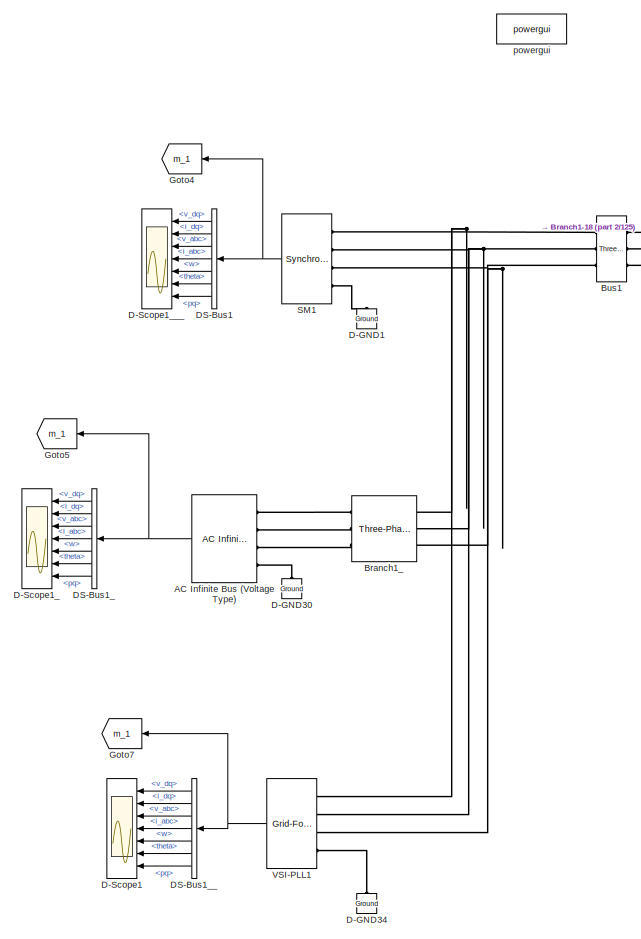
[diagram: root canvas - part 1/125, top left region]
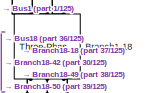
[diagram: root canvas - part 2/125, top left region]
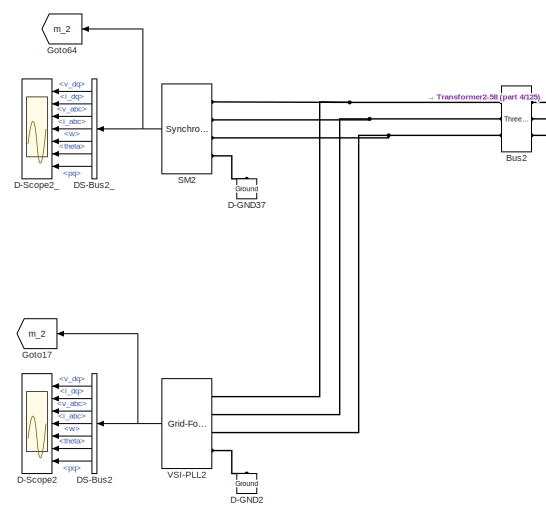
[diagram: root canvas - part 3/125, top left region]
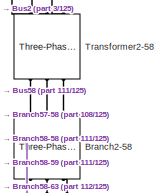
[diagram: root canvas - part 4/125, top right region]
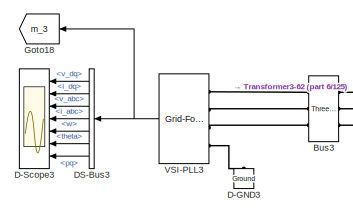
[diagram: root canvas - part 5/125, top left region]
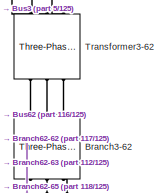
[diagram: root canvas - part 6/125, top right region]
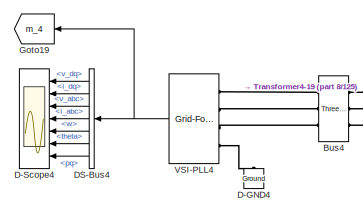
[diagram: root canvas - part 7/125, top left region]
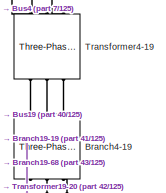
[diagram: root canvas - part 8/125, top left region]
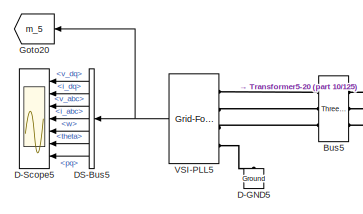
[diagram: root canvas - part 9/125, top left region]
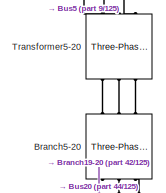
[diagram: root canvas - part 10/125, top left region]
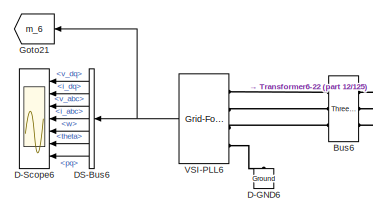
[diagram: root canvas - part 11/125, top left region]
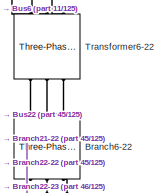
[diagram: root canvas - part 12/125, top left region]
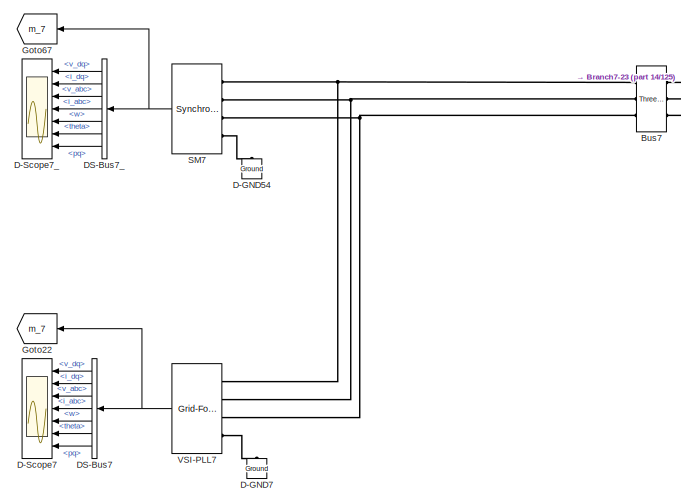
[diagram: root canvas - part 13/125, top left region]
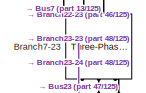
[diagram: root canvas - part 14/125, top center region]
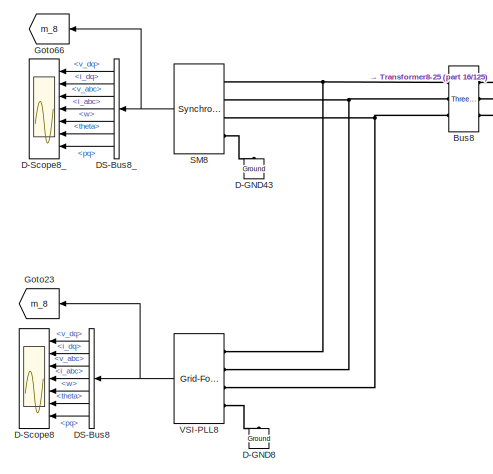
[diagram: root canvas - part 15/125, top left region]
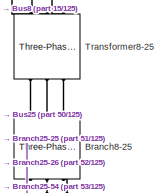
[diagram: root canvas - part 16/125, top center region]
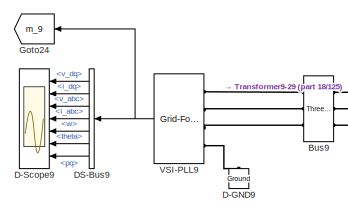
[diagram: root canvas - part 17/125, top left region]
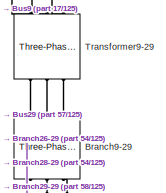
[diagram: root canvas - part 18/125, top center region]
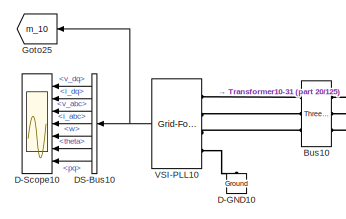
[diagram: root canvas - part 19/125, top left region]
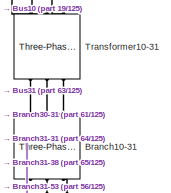
[diagram: root canvas - part 20/125, top center region]
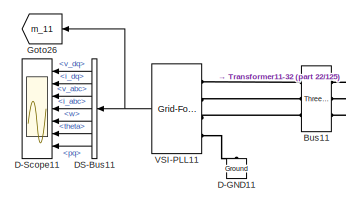
[diagram: root canvas - part 21/125, top left region]
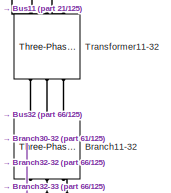
[diagram: root canvas - part 22/125, top center region]
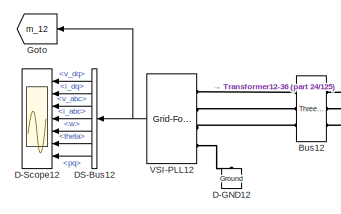
[diagram: root canvas - part 23/125, top left region]
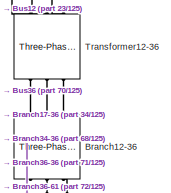
[diagram: root canvas - part 24/125, top center region]
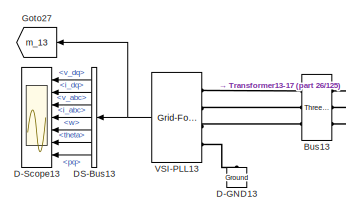
[diagram: root canvas - part 25/125, top left region]
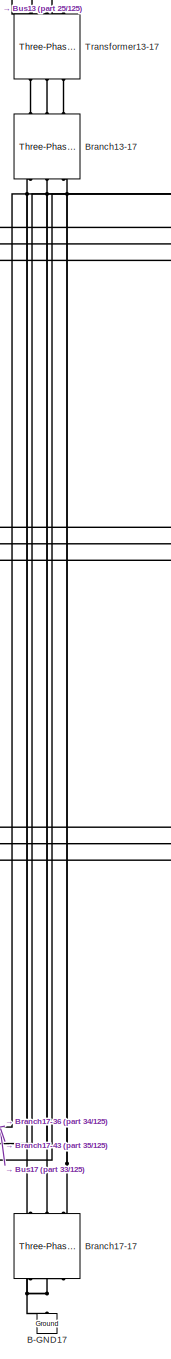
[diagram: root canvas - part 26/125, top left region]
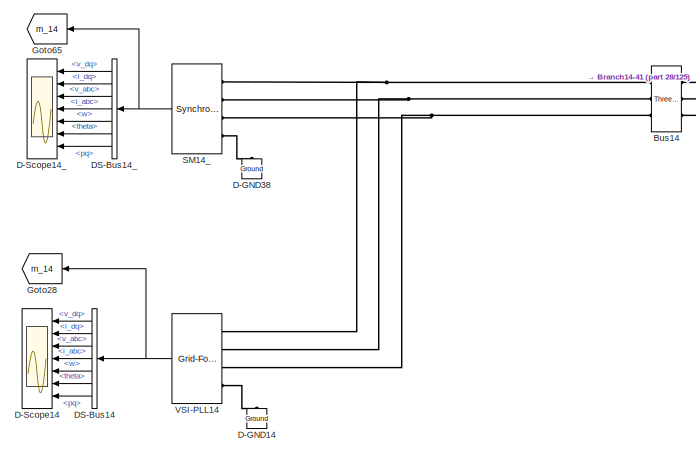
[diagram: root canvas - part 27/125, top left region]
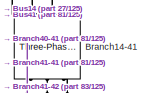
[diagram: root canvas - part 28/125, top center region]
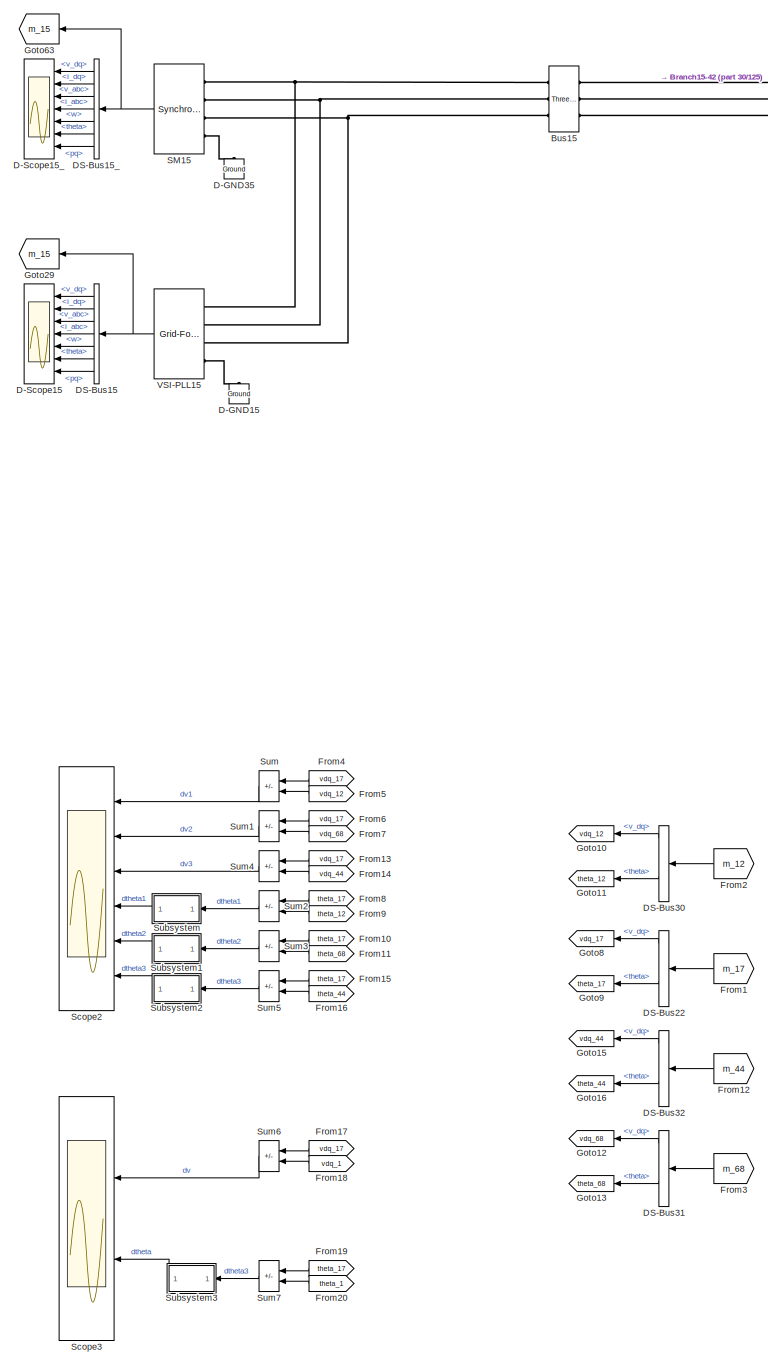
[diagram: root canvas - part 29/125, top left region]
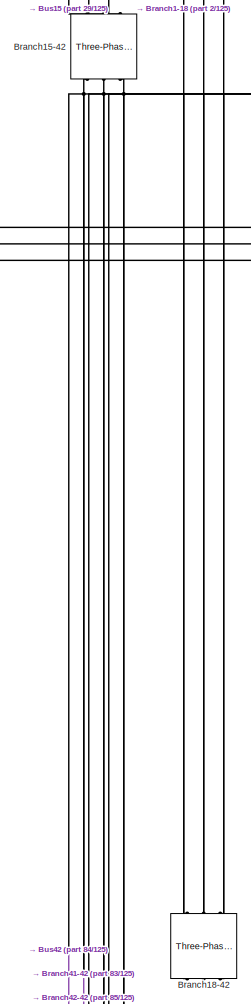
[diagram: root canvas - part 30/125, top center region]
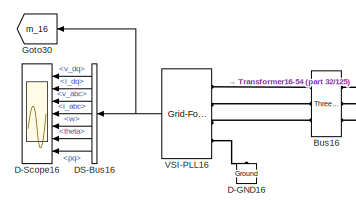
[diagram: root canvas - part 31/125, top left region]
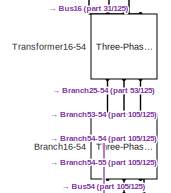
[diagram: root canvas - part 32/125, top right region]
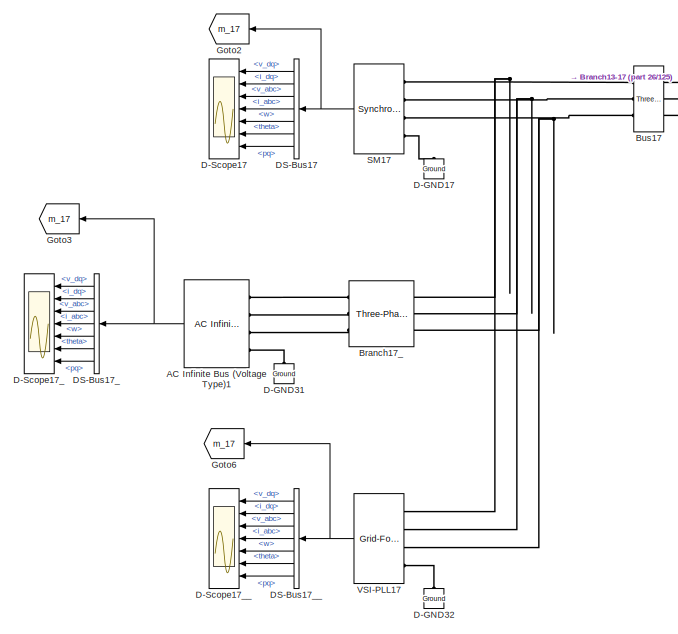
[diagram: root canvas - part 33/125, top left region]
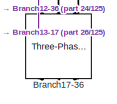
[diagram: root canvas - part 34/125, top center region]
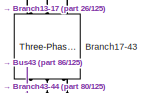
[diagram: root canvas - part 35/125, top center region]
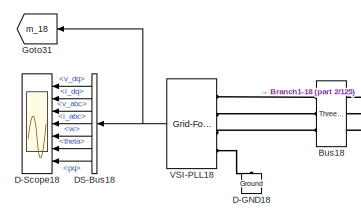
[diagram: root canvas - part 36/125, top left region]
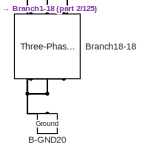
[diagram: root canvas - part 37/125, top left region]
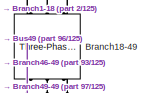
[diagram: root canvas - part 38/125, top right region]
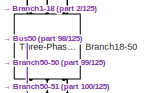
[diagram: root canvas - part 39/125, top right region]
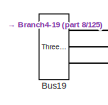
[diagram: root canvas - part 40/125, top left region]
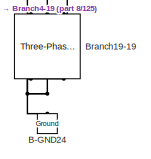
[diagram: root canvas - part 41/125, top left region]
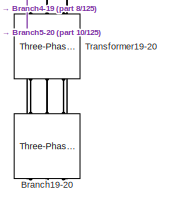
[diagram: root canvas - part 42/125, top left region]
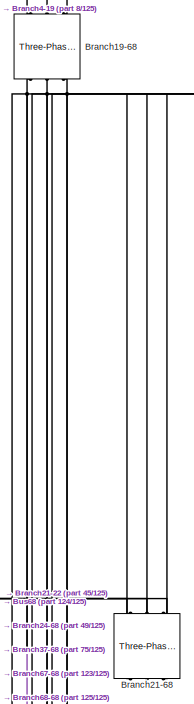
[diagram: root canvas - part 43/125, top right region]
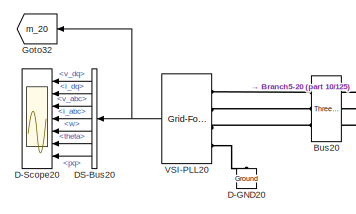
[diagram: root canvas - part 44/125, top left region]
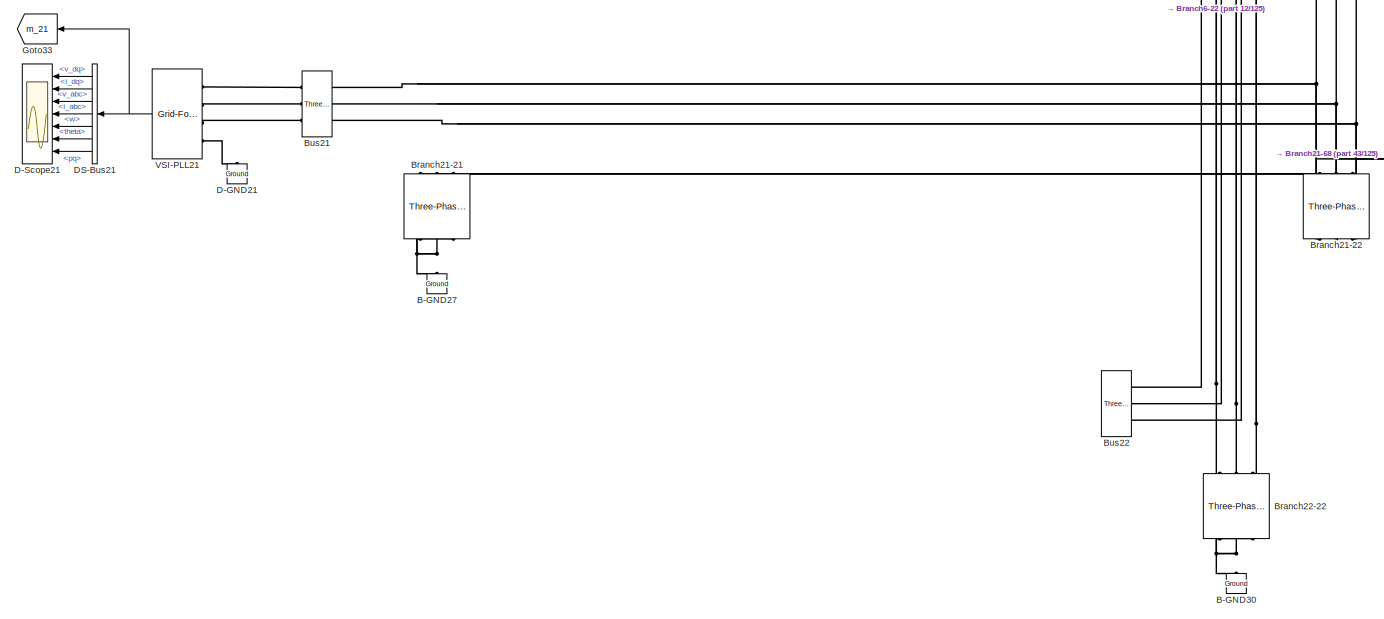
[diagram: root canvas - part 45/125, top left region]
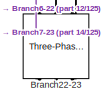
[diagram: root canvas - part 46/125, top center region]
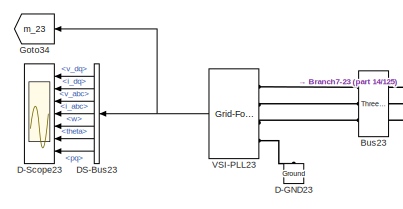
[diagram: root canvas - part 47/125, middle left region]
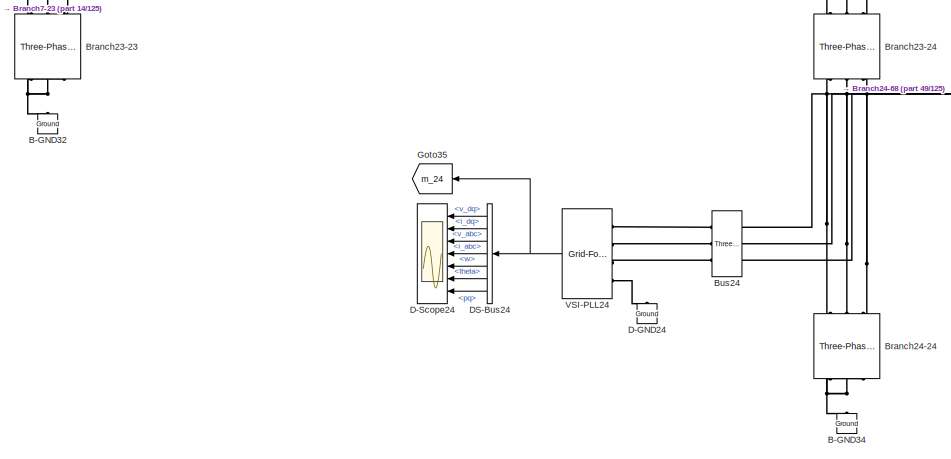
[diagram: root canvas - part 48/125, central region]
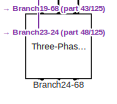
[diagram: root canvas - part 49/125, middle right region]
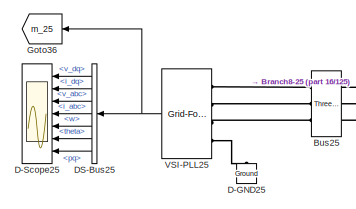
[diagram: root canvas - part 50/125, central region]
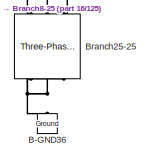
[diagram: root canvas - part 51/125, central region]
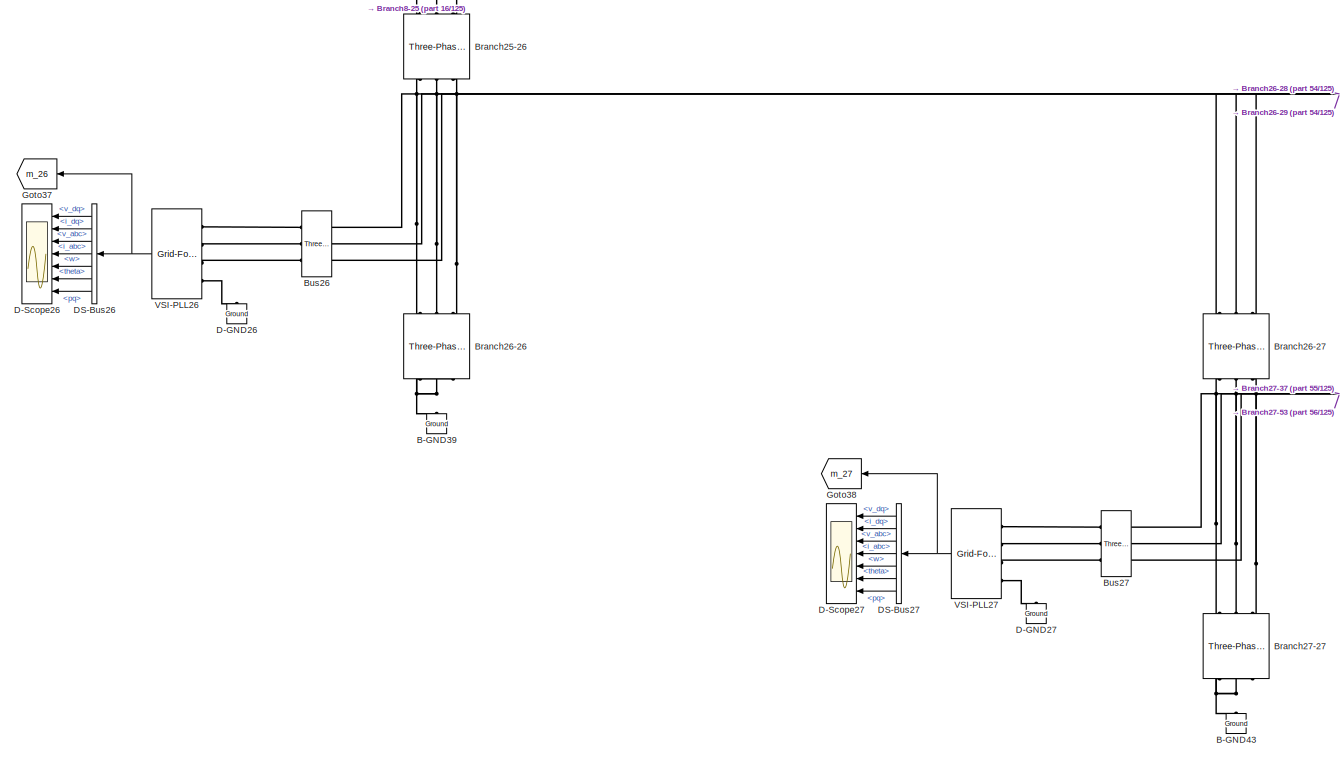
[diagram: root canvas - part 52/125, central region]
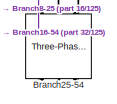
[diagram: root canvas - part 53/125, middle right region]
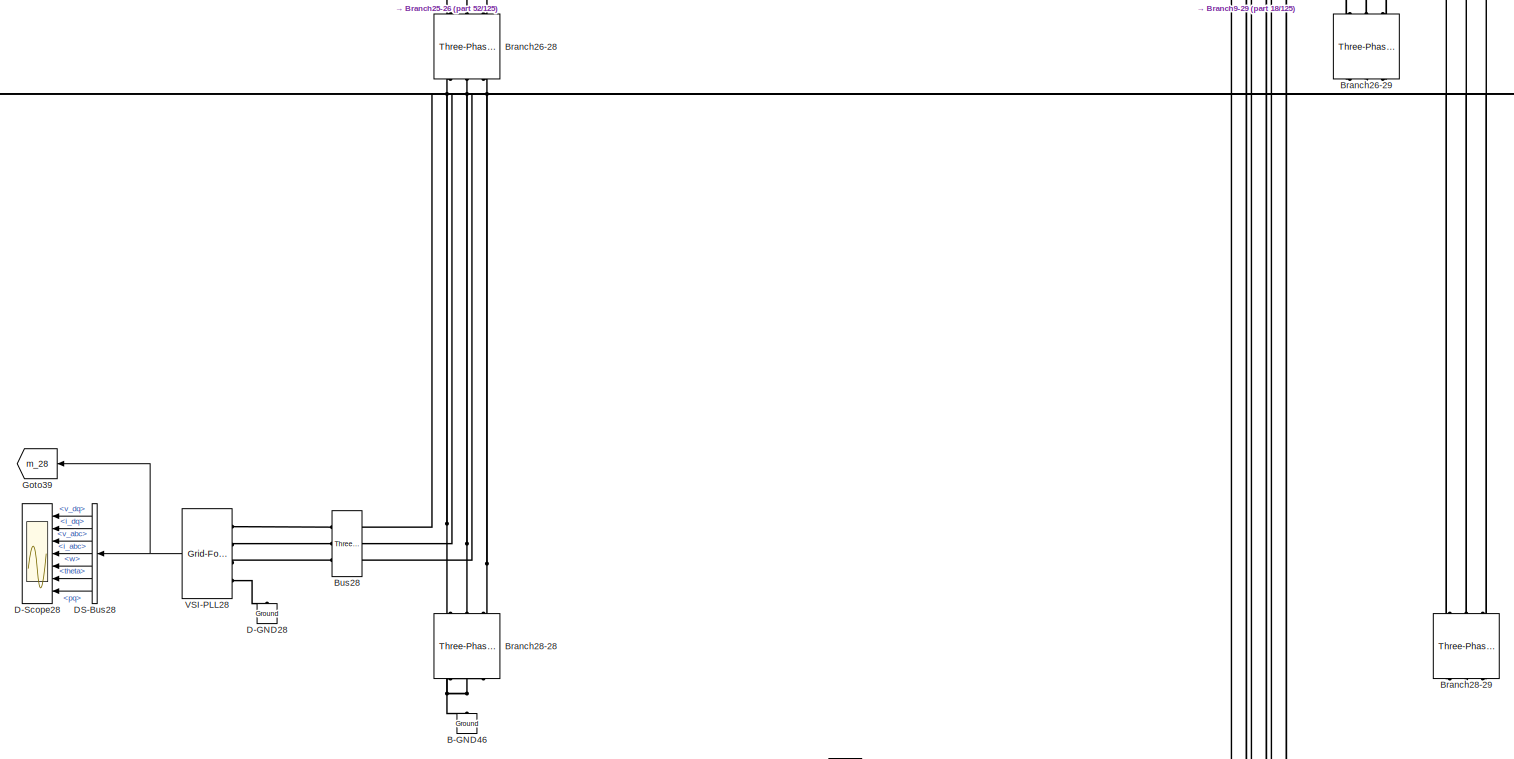
[diagram: root canvas - part 54/125, central region]
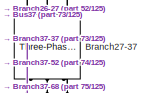
[diagram: root canvas - part 55/125, central region]
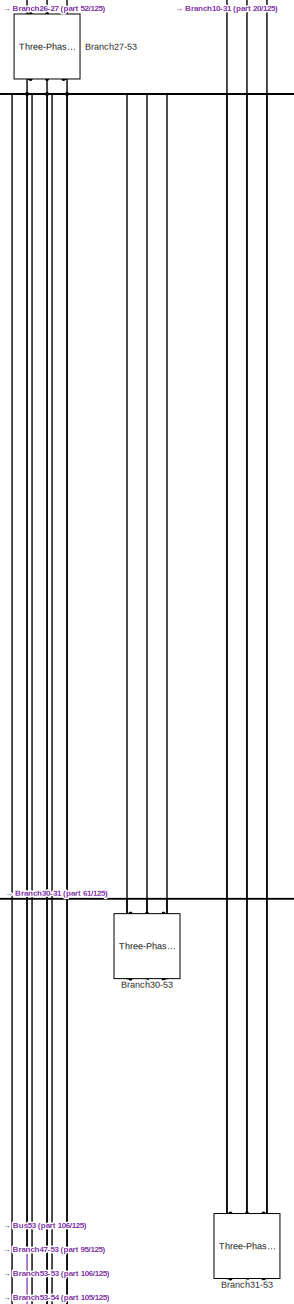
[diagram: root canvas - part 56/125, middle right region]
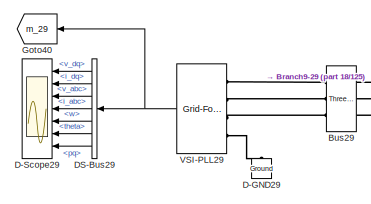
[diagram: root canvas - part 57/125, central region]
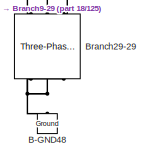
[diagram: root canvas - part 58/125, central region]
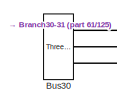
[diagram: root canvas - part 59/125, central region]
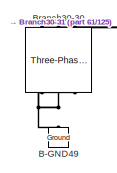
[diagram: root canvas - part 60/125, central region]
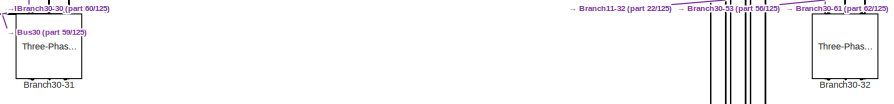
[diagram: root canvas - part 61/125, central region]
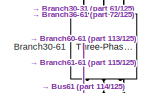
[diagram: root canvas - part 62/125, middle right region]
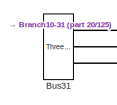
[diagram: root canvas - part 63/125, central region]
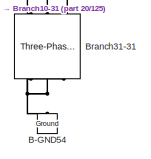
[diagram: root canvas - part 64/125, central region]
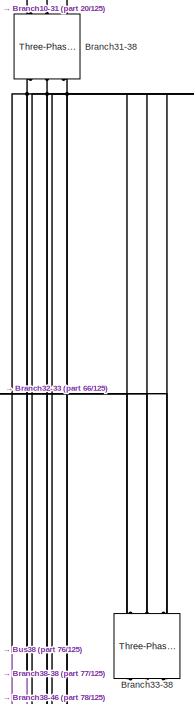
[diagram: root canvas - part 65/125, central region]
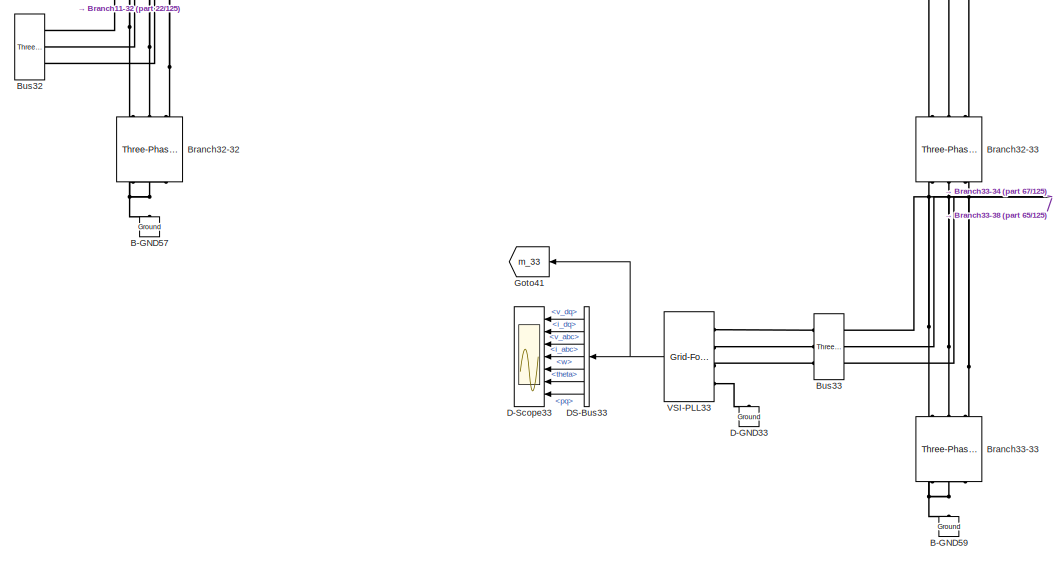
[diagram: root canvas - part 66/125, central region]
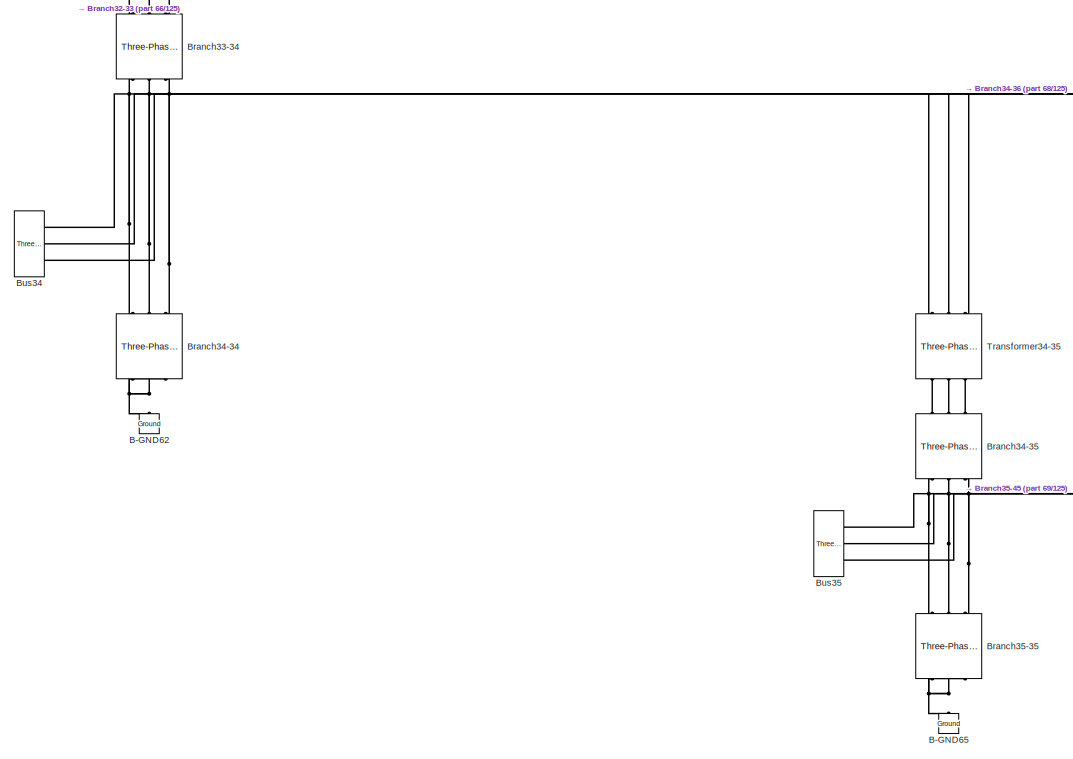
[diagram: root canvas - part 67/125, central region]
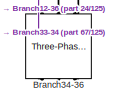
[diagram: root canvas - part 68/125, central region]
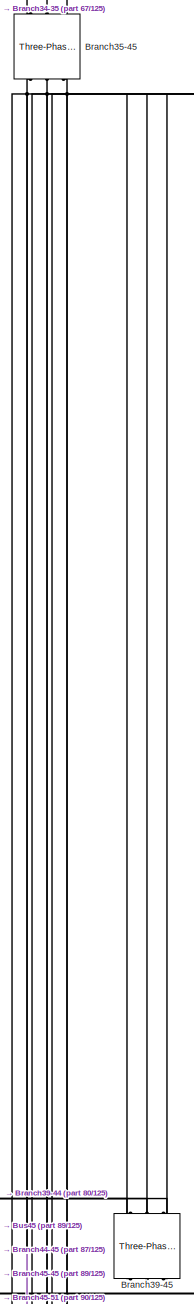
[diagram: root canvas - part 69/125, central region]
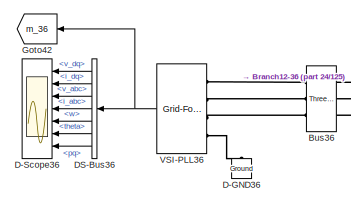
[diagram: root canvas - part 70/125, central region]
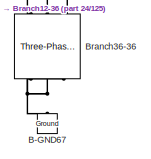
[diagram: root canvas - part 71/125, central region]
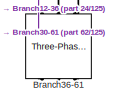
[diagram: root canvas - part 72/125, middle right region]
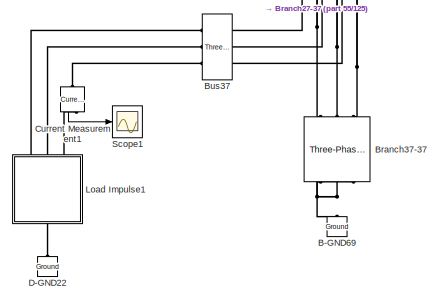
[diagram: root canvas - part 73/125, central region]
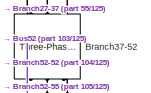
[diagram: root canvas - part 74/125, middle right region]
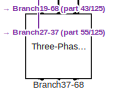
[diagram: root canvas - part 75/125, middle right region]
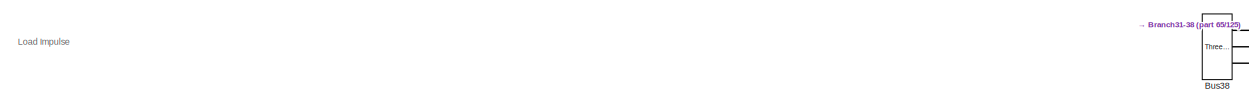
[diagram: root canvas - part 76/125, central region]
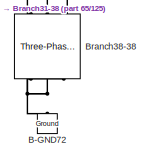
[diagram: root canvas - part 77/125, central region]
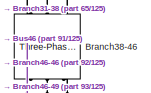
[diagram: root canvas - part 78/125, middle right region]
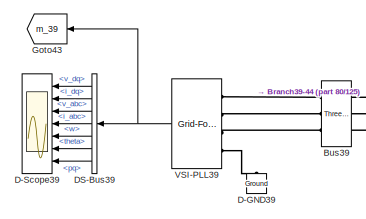
[diagram: root canvas - part 79/125, central region]
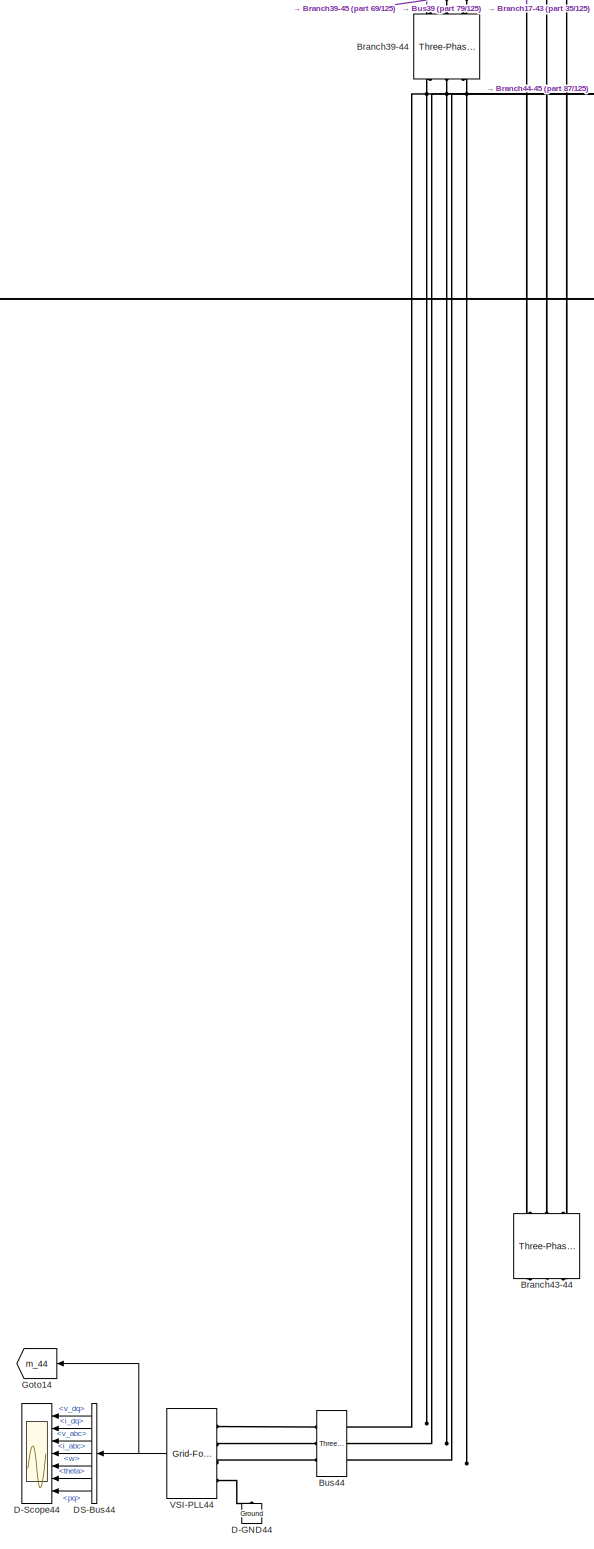
[diagram: root canvas - part 80/125, central region]
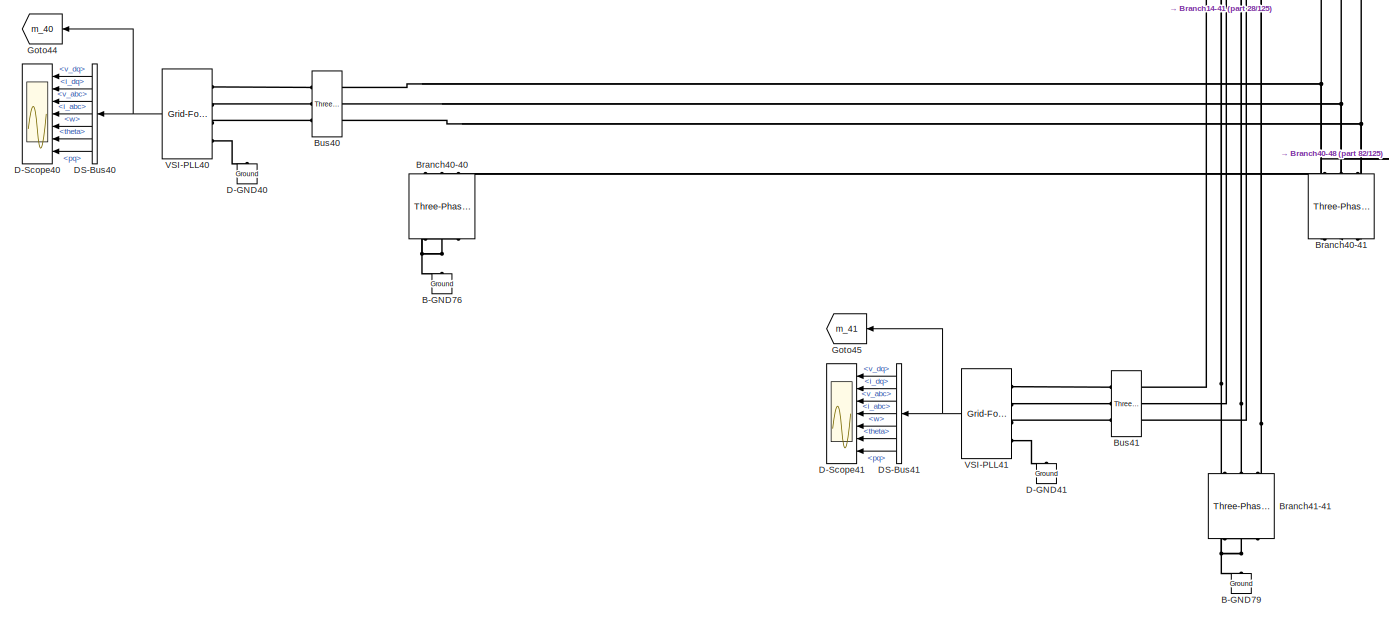
[diagram: root canvas - part 81/125, central region]
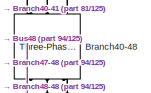
[diagram: root canvas - part 82/125, middle right region]
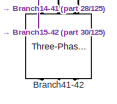
[diagram: root canvas - part 83/125, central region]
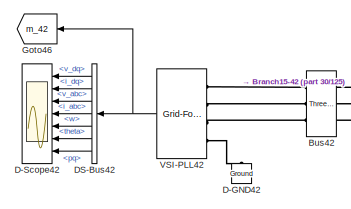
[diagram: root canvas - part 84/125, central region]
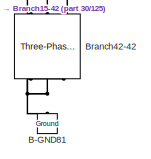
[diagram: root canvas - part 85/125, central region]
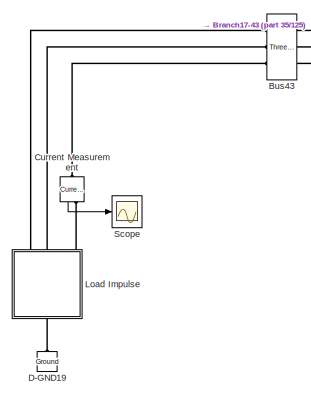
[diagram: root canvas - part 86/125, central region]
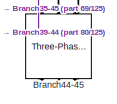
[diagram: root canvas - part 87/125, central region]
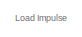
[diagram: root canvas - part 88/125, central region]
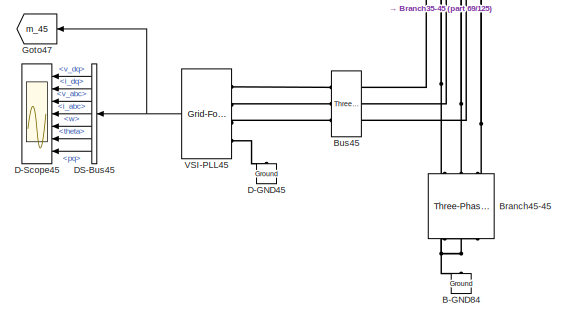
[diagram: root canvas - part 89/125, central region]
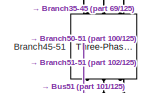
[diagram: root canvas - part 90/125, middle right region]
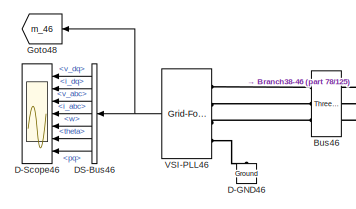
[diagram: root canvas - part 91/125, bottom center region]
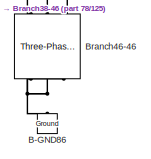
[diagram: root canvas - part 92/125, bottom right region]
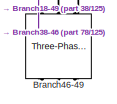
[diagram: root canvas - part 93/125, bottom right region]
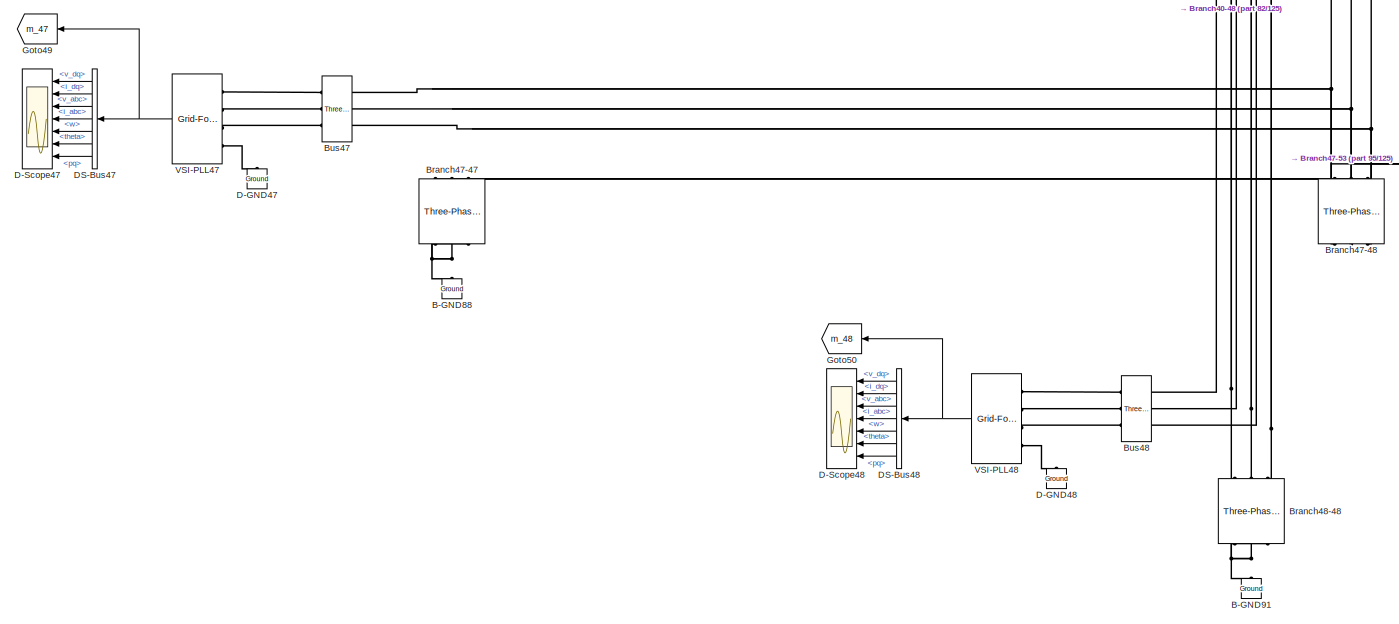
[diagram: root canvas - part 94/125, bottom right region]
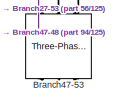
[diagram: root canvas - part 95/125, bottom right region]
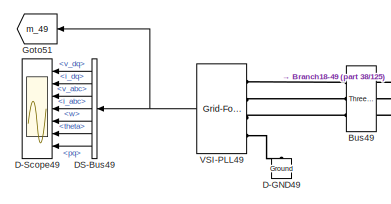
[diagram: root canvas - part 96/125, bottom right region]
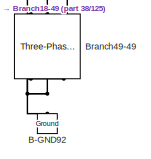
[diagram: root canvas - part 97/125, bottom right region]
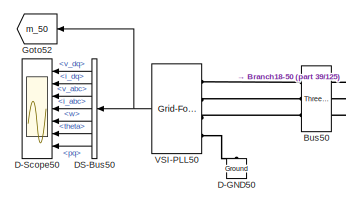
[diagram: root canvas - part 98/125, bottom right region]
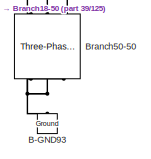
[diagram: root canvas - part 99/125, bottom right region]
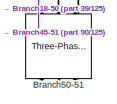
[diagram: root canvas - part 100/125, bottom right region]
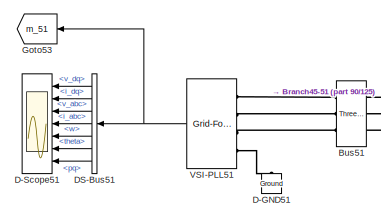
[diagram: root canvas - part 101/125, bottom right region]
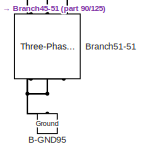
[diagram: root canvas - part 102/125, bottom right region]
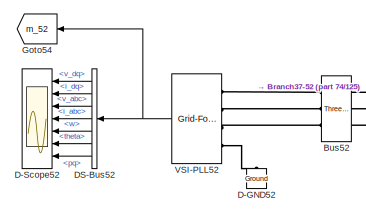
[diagram: root canvas - part 103/125, bottom right region]
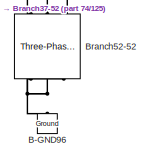
[diagram: root canvas - part 104/125, bottom right region]
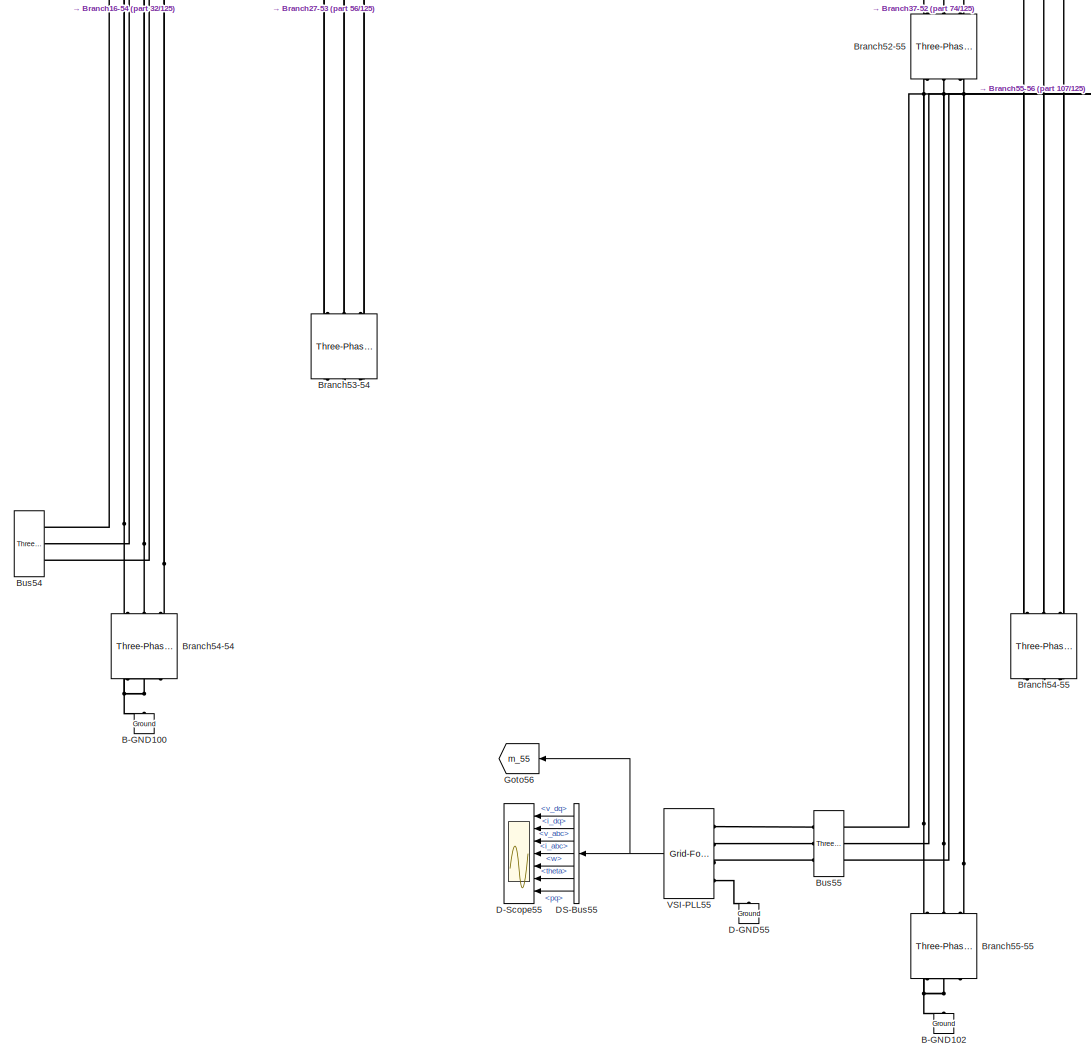
[diagram: root canvas - part 105/125, bottom right region]
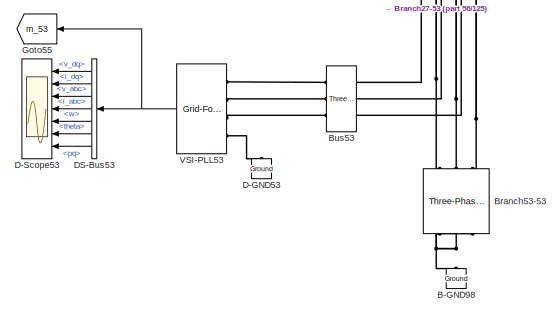
[diagram: root canvas - part 106/125, bottom right region]
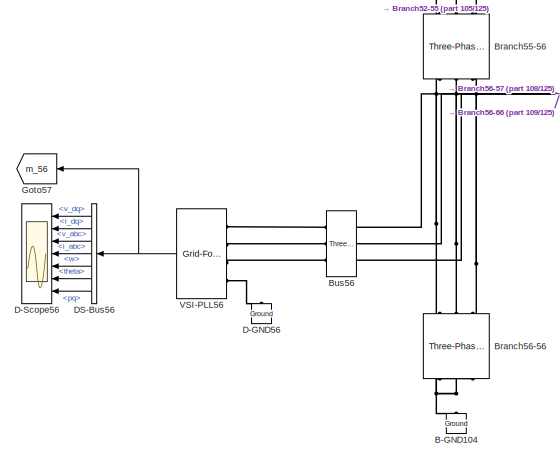
[diagram: root canvas - part 107/125, bottom right region]
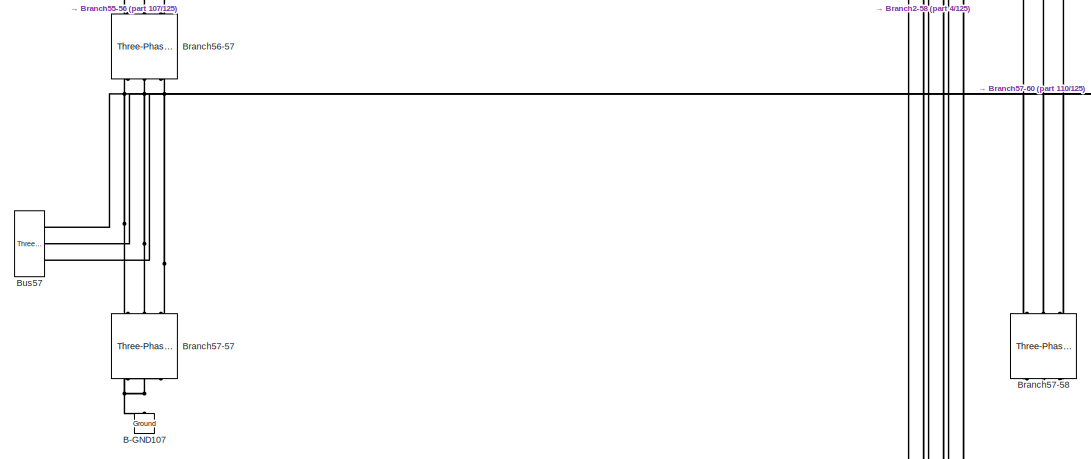
[diagram: root canvas - part 108/125, bottom right region]
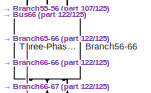
[diagram: root canvas - part 109/125, bottom right region]
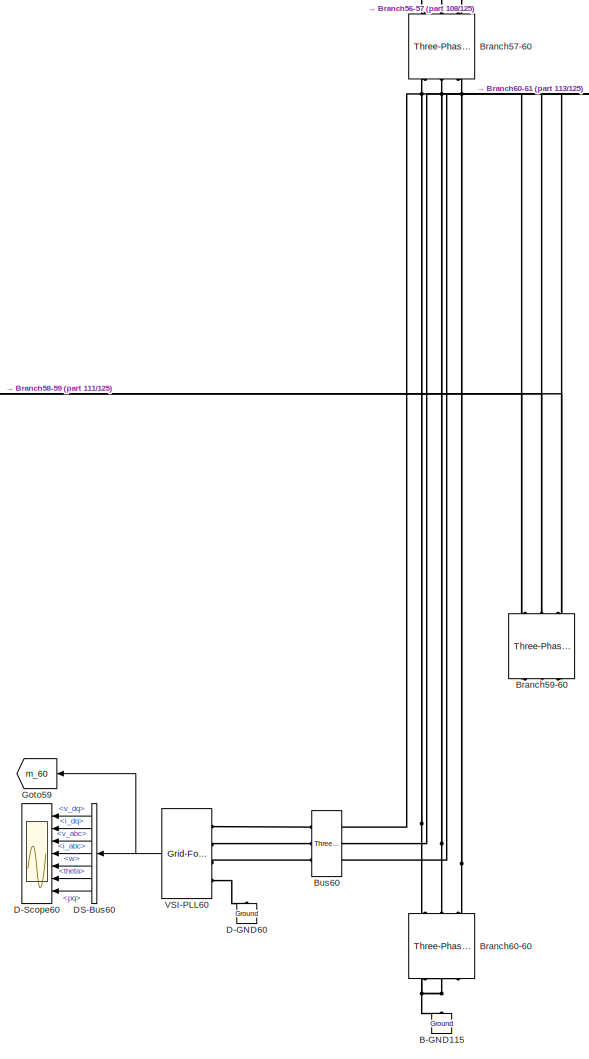
[diagram: root canvas - part 110/125, bottom right region]
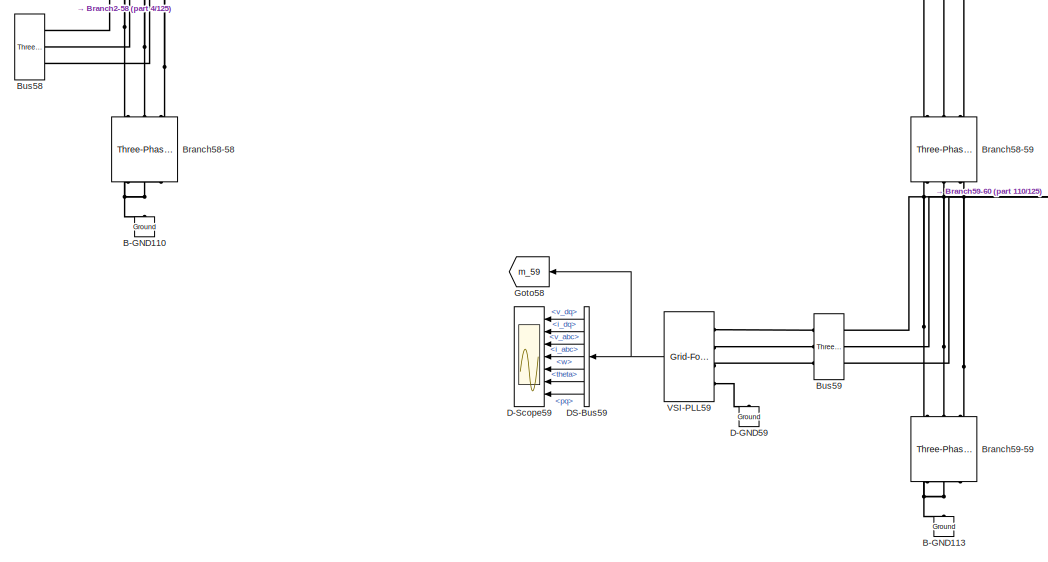
[diagram: root canvas - part 111/125, bottom right region]
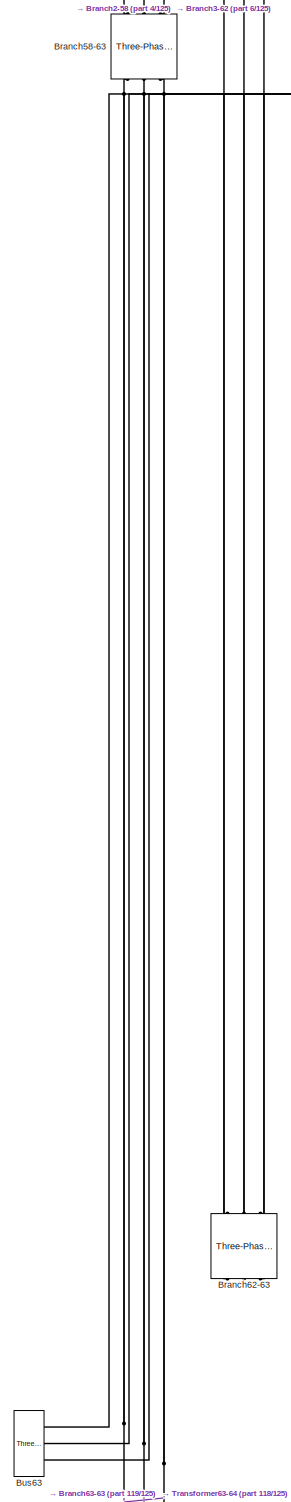
[diagram: root canvas - part 112/125, bottom right region]
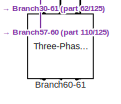
[diagram: root canvas - part 113/125, bottom right region]
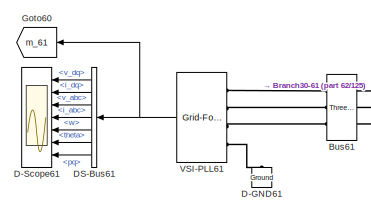
[diagram: root canvas - part 114/125, bottom right region]
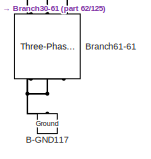
[diagram: root canvas - part 115/125, bottom right region]
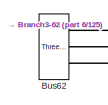
[diagram: root canvas - part 116/125, bottom right region]
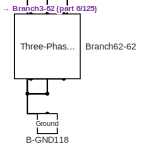
[diagram: root canvas - part 117/125, bottom right region]
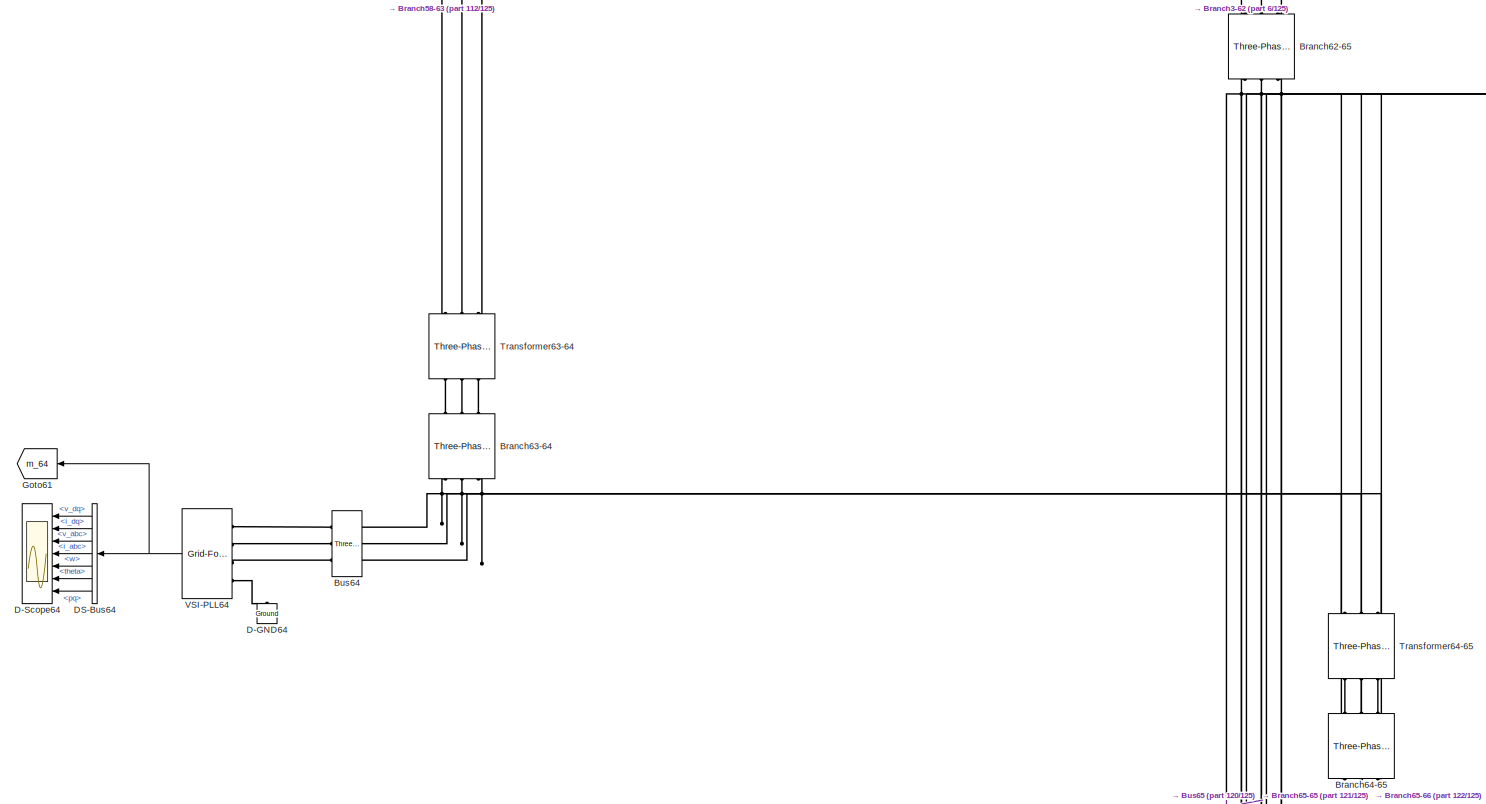
[diagram: root canvas - part 118/125, bottom right region]
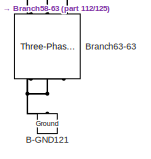
[diagram: root canvas - part 119/125, bottom right region]
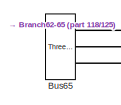
[diagram: root canvas - part 120/125, bottom right region]
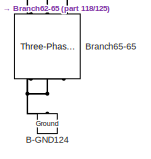
[diagram: root canvas - part 121/125, bottom right region]
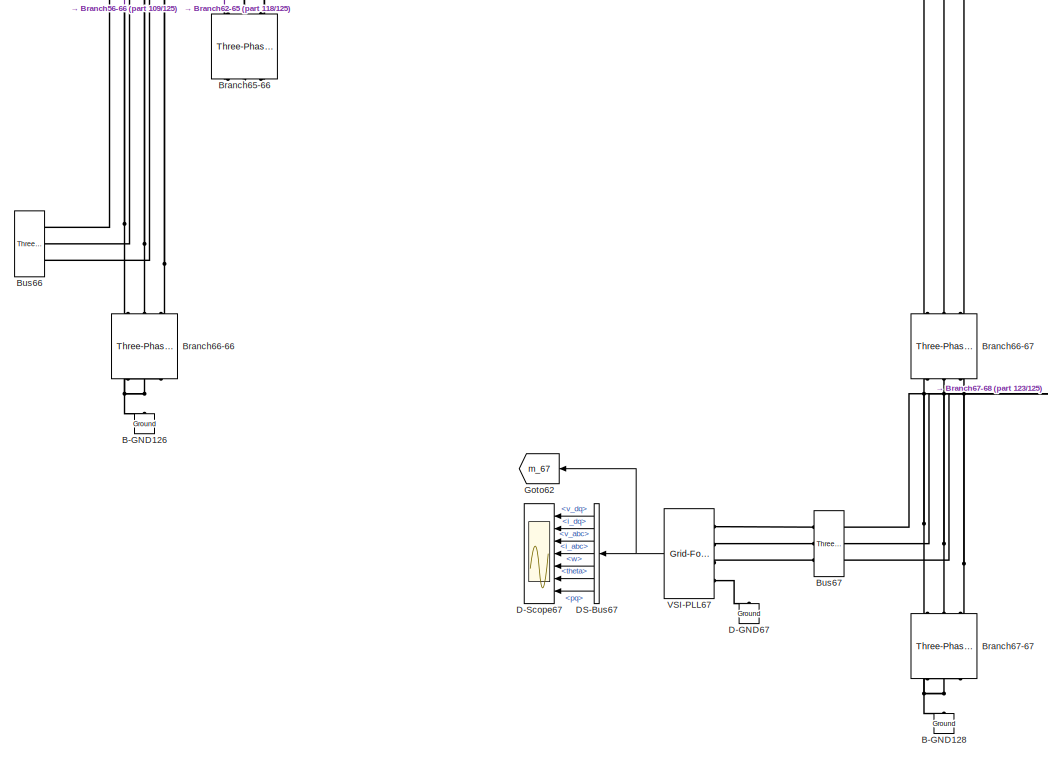
[diagram: root canvas - part 122/125, bottom right region]
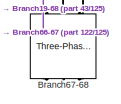
[diagram: root canvas - part 123/125, bottom right region]
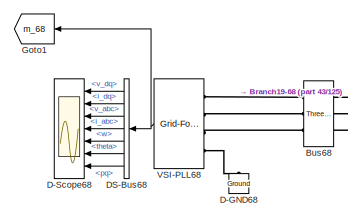
[diagram: root canvas - part 124/125, bottom right region]
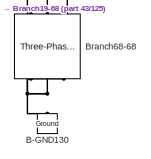
[diagram: root canvas - part 125/125, bottom right region]
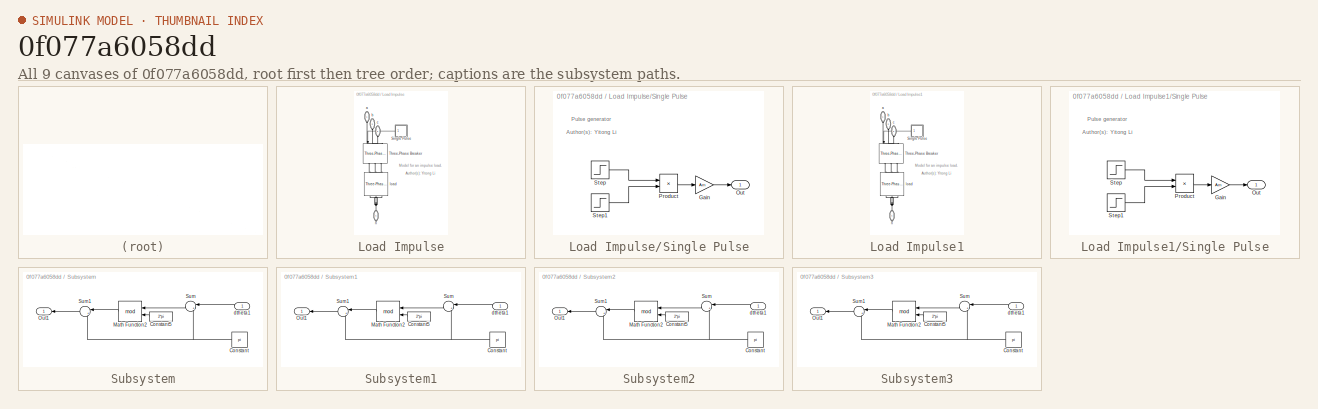
[diagram: thumbnail index - all 9 canvases of the model, root first then tree order]
MODEL slx_0f077a6058dd
KIND model
CONFIG AbsTol = auto
CONFIG EnableMultiTasking = off
CONFIG FixedStep = Ts
CONFIG MaxStep = auto
CONFIG MinStep = auto
CONFIG RelTol = 1e-3
CONFIG SampleTimeConstraint = Unconstrained
CONFIG SolverName = FixedStepAuto
CONFIG StartTime = 0
CONFIG StopTime = 4.5
BLOCK [Reference] AC Infinite Bus (Voltage Type)  REF=SimplexPS/AC Infinite Bus
(Voltage Type)
  Commented = on
  NameLocation = top
  Ports = [0, 1, 0, 0, 0, 4]
  SourceBlock = SimplexPS/AC Infinite Bus\n(Voltage Type)
  SourceProductName = Simplex Power Systems
BLOCK [Reference] AC Infinite Bus (Voltage Type)1  REF=SimplexPS/AC Infinite Bus
(Voltage Type)
  Commented = on
  NameLocation = top
  Ports = [0, 1, 0, 0, 0, 4]
  SourceBlock = SimplexPS/AC Infinite Bus\n(Voltage Type)
  SourceProductName = Simplex Power Systems
BLOCK [Reference] B-GND100  REF=powerlib/Elements/Ground
  NameLocation = right
  Ports = [0, 0, 0, 0, 0, 1]
  SourceBlock = powerlib/Elements/Ground
  SourceProductBaseCode = PS
  SourceType = Ground
BLOCK [Reference] B-GND102  REF=powerlib/Elements/Ground
  NameLocation = right
  Ports = [0, 0, 0, 0, 0, 1]
  SourceBlock = powerlib/Elements/Ground
  SourceProductBaseCode = PS
  SourceType = Ground
BLOCK [Reference] B-GND104  REF=powerlib/Elements/Ground
  NameLocation = right
  Ports = [0, 0, 0, 0, 0, 1]
  SourceBlock = powerlib/Elements/Ground
  SourceProductBaseCode = PS
  SourceType = Ground
BLOCK [Reference] B-GND107  REF=powerlib/Elements/Ground
  NameLocation = right
  Ports = [0, 0, 0, 0, 0, 1]
  SourceBlock = powerlib/Elements/Ground
  SourceProductBaseCode = PS
  SourceType = Ground
BLOCK [Reference] B-GND110  REF=powerlib/Elements/Ground
  NameLocation = right
  Ports = [0, 0, 0, 0, 0, 1]
  SourceBlock = powerlib/Elements/Ground
  SourceProductBaseCode = PS
  SourceType = Ground
BLOCK [Reference] B-GND113  REF=powerlib/Elements/Ground
  NameLocation = right
  Ports = [0, 0, 0, 0, 0, 1]
  SourceBlock = powerlib/Elements/Ground
  SourceProductBaseCode = PS
  SourceType = Ground
BLOCK [Reference] B-GND115  REF=powerlib/Elements/Ground
  NameLocation = right
  Ports = [0, 0, 0, 0, 0, 1]
  SourceBlock = powerlib/Elements/Ground
  SourceProductBaseCode = PS
  SourceType = Ground
BLOCK [Reference] B-GND117  REF=powerlib/Elements/Ground
  NameLocation = right
  Ports = [0, 0, 0, 0, 0, 1]
  SourceBlock = powerlib/Elements/Ground
  SourceProductBaseCode = PS
  SourceType = Ground
BLOCK [Reference] B-GND118  REF=powerlib/Elements/Ground
  NameLocation = right
  Ports = [0, 0, 0, 0, 0, 1]
  SourceBlock = powerlib/Elements/Ground
  SourceProductBaseCode = PS
  SourceType = Ground
BLOCK [Reference] B-GND121  REF=powerlib/Elements/Ground
  NameLocation = right
  Ports = [0, 0, 0, 0, 0, 1]
  SourceBlock = powerlib/Elements/Ground
  SourceProductBaseCode = PS
  SourceType = Ground
BLOCK [Reference] B-GND124  REF=powerlib/Elements/Ground
  NameLocation = right
  Ports = [0, 0, 0, 0, 0, 1]
  SourceBlock = powerlib/Elements/Ground
  SourceProductBaseCode = PS
  SourceType = Ground
BLOCK [Reference] B-GND126  REF=powerlib/Elements/Ground
  NameLocation = right
  Ports = [0, 0, 0, 0, 0, 1]
  SourceBlock = powerlib/Elements/Ground
  SourceProductBaseCode = PS
  SourceType = Ground
BLOCK [Reference] B-GND128  REF=powerlib/Elements/Ground
  NameLocation = right
  Ports = [0, 0, 0, 0, 0, 1]
  SourceBlock = powerlib/Elements/Ground
  SourceProductBaseCode = PS
  SourceType = Ground
BLOCK [Reference] B-GND130  REF=powerlib/Elements/Ground
  NameLocation = right
  Ports = [0, 0, 0, 0, 0, 1]
  SourceBlock = powerlib/Elements/Ground
  SourceProductBaseCode = PS
  SourceType = Ground
BLOCK [Reference] B-GND17  REF=powerlib/Elements/Ground
  NameLocation = right
  Ports = [0, 0, 0, 0, 0, 1]
  SourceBlock = powerlib/Elements/Ground
  SourceProductBaseCode = PS
  SourceType = Ground
BLOCK [Reference] B-GND20  REF=powerlib/Elements/Ground
  NameLocation = right
  Ports = [0, 0, 0, 0, 0, 1]
  SourceBlock = powerlib/Elements/Ground
  SourceProductBaseCode = PS
  SourceType = Ground
BLOCK [Reference] B-GND24  REF=powerlib/Elements/Ground
  NameLocation = right
  Ports = [0, 0, 0, 0, 0, 1]
  SourceBlock = powerlib/Elements/Ground
  SourceProductBaseCode = PS
  SourceType = Ground
BLOCK [Reference] B-GND27  REF=powerlib/Elements/Ground
  NameLocation = right
  Ports = [0, 0, 0, 0, 0, 1]
  SourceBlock = powerlib/Elements/Ground
  SourceProductBaseCode = PS
  SourceType = Ground
BLOCK [Reference] B-GND30  REF=powerlib/Elements/Ground
  NameLocation = right
  Ports = [0, 0, 0, 0, 0, 1]
  SourceBlock = powerlib/Elements/Ground
  SourceProductBaseCode = PS
  SourceType = Ground
BLOCK [Reference] B-GND32  REF=powerlib/Elements/Ground
  NameLocation = right
  Ports = [0, 0, 0, 0, 0, 1]
  SourceBlock = powerlib/Elements/Ground
  SourceProductBaseCode = PS
  SourceType = Ground
BLOCK [Reference] B-GND34  REF=powerlib/Elements/Ground
  NameLocation = right
  Ports = [0, 0, 0, 0, 0, 1]
  SourceBlock = powerlib/Elements/Ground
  SourceProductBaseCode = PS
  SourceType = Ground
BLOCK [Reference] B-GND36  REF=powerlib/Elements/Ground
  NameLocation = right
  Ports = [0, 0, 0, 0, 0, 1]
  SourceBlock = powerlib/Elements/Ground
  SourceProductBaseCode = PS
  SourceType = Ground
BLOCK [Reference] B-GND39  REF=powerlib/Elements/Ground
  NameLocation = right
  Ports = [0, 0, 0, 0, 0, 1]
  SourceBlock = powerlib/Elements/Ground
  SourceProductBaseCode = PS
  SourceType = Ground
BLOCK [Reference] B-GND43  REF=powerlib/Elements/Ground
  NameLocation = right
  Ports = [0, 0, 0, 0, 0, 1]
  SourceBlock = powerlib/Elements/Ground
  SourceProductBaseCode = PS
  SourceType = Ground
BLOCK [Reference] B-GND46  REF=powerlib/Elements/Ground
  NameLocation = right
  Ports = [0, 0, 0, 0, 0, 1]
  SourceBlock = powerlib/Elements/Ground
  SourceProductBaseCode = PS
  SourceType = Ground
BLOCK [Reference] B-GND48  REF=powerlib/Elements/Ground
  NameLocation = right
  Ports = [0, 0, 0, 0, 0, 1]
  SourceBlock = powerlib/Elements/Ground
  SourceProductBaseCode = PS
  SourceType = Ground
BLOCK [Reference] B-GND49  REF=powerlib/Elements/Ground
  NameLocation = right
  Ports = [0, 0, 0, 0, 0, 1]
  SourceBlock = powerlib/Elements/Ground
  SourceProductBaseCode = PS
  SourceType = Ground
BLOCK [Reference] B-GND54  REF=powerlib/Elements/Ground
  NameLocation = right
  Ports = [0, 0, 0, 0, 0, 1]
  SourceBlock = powerlib/Elements/Ground
  SourceProductBaseCode = PS
  SourceType = Ground
BLOCK [Reference] B-GND57  REF=powerlib/Elements/Ground
  NameLocation = right
  Ports = [0, 0, 0, 0, 0, 1]
  SourceBlock = powerlib/Elements/Ground
  SourceProductBaseCode = PS
  SourceType = Ground
BLOCK [Reference] B-GND59  REF=powerlib/Elements/Ground
  NameLocation = right
  Ports = [0, 0, 0, 0, 0, 1]
  SourceBlock = powerlib/Elements/Ground
  SourceProductBaseCode = PS
  SourceType = Ground
BLOCK [Reference] B-GND62  REF=powerlib/Elements/Ground
  NameLocation = right
  Ports = [0, 0, 0, 0, 0, 1]
  SourceBlock = powerlib/Elements/Ground
  SourceProductBaseCode = PS
  SourceType = Ground
BLOCK [Reference] B-GND65  REF=powerlib/Elements/Ground
  NameLocation = right
  Ports = [0, 0, 0, 0, 0, 1]
  SourceBlock = powerlib/Elements/Ground
  SourceProductBaseCode = PS
  SourceType = Ground
BLOCK [Reference] B-GND67  REF=powerlib/Elements/Ground
  NameLocation = right
  Ports = [0, 0, 0, 0, 0, 1]
  SourceBlock = powerlib/Elements/Ground
  SourceProductBaseCode = PS
  SourceType = Ground
BLOCK [Reference] B-GND69  REF=powerlib/Elements/Ground
  NameLocation = right
  Ports = [0, 0, 0, 0, 0, 1]
  SourceBlock = powerlib/Elements/Ground
  SourceProductBaseCode = PS
  SourceType = Ground
BLOCK [Reference] B-GND72  REF=powerlib/Elements/Ground
  NameLocation = right
  Ports = [0, 0, 0, 0, 0, 1]
  SourceBlock = powerlib/Elements/Ground
  SourceProductBaseCode = PS
  SourceType = Ground
BLOCK [Reference] B-GND76  REF=powerlib/Elements/Ground
  NameLocation = right
  Ports = [0, 0, 0, 0, 0, 1]
  SourceBlock = powerlib/Elements/Ground
  SourceProductBaseCode = PS
  SourceType = Ground
BLOCK [Reference] B-GND79  REF=powerlib/Elements/Ground
  NameLocation = right
  Ports = [0, 0, 0, 0, 0, 1]
  SourceBlock = powerlib/Elements/Ground
  SourceProductBaseCode = PS
  SourceType = Ground
BLOCK [Reference] B-GND81  REF=powerlib/Elements/Ground
  NameLocation = right
  Ports = [0, 0, 0, 0, 0, 1]
  SourceBlock = powerlib/Elements/Ground
  SourceProductBaseCode = PS
  SourceType = Ground
BLOCK [Reference] B-GND84  REF=powerlib/Elements/Ground
  NameLocation = right
  Ports = [0, 0, 0, 0, 0, 1]
  SourceBlock = powerlib/Elements/Ground
  SourceProductBaseCode = PS
  SourceType = Ground
BLOCK [Reference] B-GND86  REF=powerlib/Elements/Ground
  NameLocation = right
  Ports = [0, 0, 0, 0, 0, 1]
  SourceBlock = powerlib/Elements/Ground
  SourceProductBaseCode = PS
  SourceType = Ground
BLOCK [Reference] B-GND88  REF=powerlib/Elements/Ground
  NameLocation = right
  Ports = [0, 0, 0, 0, 0, 1]
  SourceBlock = powerlib/Elements/Ground
  SourceProductBaseCode = PS
  SourceType = Ground
BLOCK [Reference] B-GND91  REF=powerlib/Elements/Ground
  NameLocation = right
  Ports = [0, 0, 0, 0, 0, 1]
  SourceBlock = powerlib/Elements/Ground
  SourceProductBaseCode = PS
  SourceType = Ground
BLOCK [Reference] B-GND92  REF=powerlib/Elements/Ground
  NameLocation = right
  Ports = [0, 0, 0, 0, 0, 1]
  SourceBlock = powerlib/Elements/Ground
  SourceProductBaseCode = PS
  SourceType = Ground
BLOCK [Reference] B-GND93  REF=powerlib/Elements/Ground
  NameLocation = right
  Ports = [0, 0, 0, 0, 0, 1]
  SourceBlock = powerlib/Elements/Ground
  SourceProductBaseCode = PS
  SourceType = Ground
BLOCK [Reference] B-GND95  REF=powerlib/Elements/Ground
  NameLocation = right
  Ports = [0, 0, 0, 0, 0, 1]
  SourceBlock = powerlib/Elements/Ground
  SourceProductBaseCode = PS
  SourceType = Ground
BLOCK [Reference] B-GND96  REF=powerlib/Elements/Ground
  NameLocation = right
  Ports = [0, 0, 0, 0, 0, 1]
  SourceBlock = powerlib/Elements/Ground
  SourceProductBaseCode = PS
  SourceType = Ground
BLOCK [Reference] B-GND98  REF=powerlib/Elements/Ground
  NameLocation = right
  Ports = [0, 0, 0, 0, 0, 1]
  SourceBlock = powerlib/Elements/Ground
  SourceProductBaseCode = PS
  SourceType = Ground
BLOCK [Reference] Branch1-18  REF=powerlib/Elements/Three-Phase
Series RLC Branch
  AttributesFormatString = \n
  NameLocation = right
  Ports = [0, 0, 0, 0, 0, 3, 3]
  SourceBlock = powerlib/Elements/Three-Phase\nSeries RLC Branch
  SourceProductBaseCode = PS
  SourceType = Three-Phase Series RLC Branch
BLOCK [Reference] Branch10-31  REF=powerlib/Elements/Three-Phase
Series RLC Branch
  AttributesFormatString = \n
  NameLocation = right
  Ports = [0, 0, 0, 0, 0, 3, 3]
  SourceBlock = powerlib/Elements/Three-Phase\nSeries RLC Branch
  SourceProductBaseCode = PS
  SourceType = Three-Phase Series RLC Branch
BLOCK [Reference] Branch11-32  REF=powerlib/Elements/Three-Phase
Series RLC Branch
  AttributesFormatString = \n
  NameLocation = right
  Ports = [0, 0, 0, 0, 0, 3, 3]
  SourceBlock = powerlib/Elements/Three-Phase\nSeries RLC Branch
  SourceProductBaseCode = PS
  SourceType = Three-Phase Series RLC Branch
BLOCK [Reference] Branch12-36  REF=powerlib/Elements/Three-Phase
Series RLC Branch
  AttributesFormatString = \n
  NameLocation = right
  Ports = [0, 0, 0, 0, 0, 3, 3]
  SourceBlock = powerlib/Elements/Three-Phase\nSeries RLC Branch
  SourceProductBaseCode = PS
  SourceType = Three-Phase Series RLC Branch
BLOCK [Reference] Branch13-17  REF=powerlib/Elements/Three-Phase
Series RLC Branch
  AttributesFormatString = \n
  NameLocation = right
  Ports = [0, 0, 0, 0, 0, 3, 3]
  SourceBlock = powerlib/Elements/Three-Phase\nSeries RLC Branch
  SourceProductBaseCode = PS
  SourceType = Three-Phase Series RLC Branch
BLOCK [Reference] Branch14-41  REF=powerlib/Elements/Three-Phase
Series RLC Branch
  AttributesFormatString = \n
  NameLocation = right
  Ports = [0, 0, 0, 0, 0, 3, 3]
  SourceBlock = powerlib/Elements/Three-Phase\nSeries RLC Branch
  SourceProductBaseCode = PS
  SourceType = Three-Phase Series RLC Branch
BLOCK [Reference] Branch15-42  REF=powerlib/Elements/Three-Phase
Series RLC Branch
  AttributesFormatString = \n
  NameLocation = right
  Ports = [0, 0, 0, 0, 0, 3, 3]
  SourceBlock = powerlib/Elements/Three-Phase\nSeries RLC Branch
  SourceProductBaseCode = PS
  SourceType = Three-Phase Series RLC Branch
BLOCK [Reference] Branch16-54  REF=powerlib/Elements/Three-Phase
Series RLC Branch
  AttributesFormatString = \n
  NameLocation = right
  Ports = [0, 0, 0, 0, 0, 3, 3]
  SourceBlock = powerlib/Elements/Three-Phase\nSeries RLC Branch
  SourceProductBaseCode = PS
  SourceType = Three-Phase Series RLC Branch
BLOCK [Reference] Branch17-17  REF=powerlib/Elements/Three-Phase
Parallel RLC Branch
  AttributesFormatString = \n
  NameLocation = right
  Ports = [0, 0, 0, 0, 0, 3, 3]
  SourceBlock = powerlib/Elements/Three-Phase\nParallel RLC Branch
  SourceProductBaseCode = PS
  SourceType = Three-Phase Parallel RLC Branch
BLOCK [Reference] Branch17-36  REF=powerlib/Elements/Three-Phase
Series RLC Branch
  AttributesFormatString = \n
  NameLocation = right
  Ports = [0, 0, 0, 0, 0, 3, 3]
  SourceBlock = powerlib/Elements/Three-Phase\nSeries RLC Branch
  SourceProductBaseCode = PS
  SourceType = Three-Phase Series RLC Branch
BLOCK [Reference] Branch17-43  REF=powerlib/Elements/Three-Phase
Series RLC Branch
  AttributesFormatString = \n
  NameLocation = right
  Ports = [0, 0, 0, 0, 0, 3, 3]
  SourceBlock = powerlib/Elements/Three-Phase\nSeries RLC Branch
  SourceProductBaseCode = PS
  SourceType = Three-Phase Series RLC Branch
BLOCK [Reference] Branch17_  REF=powerlib/Elements/Three-Phase
Series RLC Branch
  AttributesFormatString = \n
  Commented = on
  Ports = [0, 0, 0, 0, 0, 3, 3]
  SourceBlock = powerlib/Elements/Three-Phase\nSeries RLC Branch
  SourceProductBaseCode = PS
  SourceType = Three-Phase Series RLC Branch
BLOCK [Reference] Branch18-18  REF=powerlib/Elements/Three-Phase
Parallel RLC Branch
  AttributesFormatString = \n
  NameLocation = right
  Ports = [0, 0, 0, 0, 0, 3, 3]
  SourceBlock = powerlib/Elements/Three-Phase\nParallel RLC Branch
  SourceProductBaseCode = PS
  SourceType = Three-Phase Parallel RLC Branch
BLOCK [Reference] Branch18-42  REF=powerlib/Elements/Three-Phase
Series RLC Branch
  AttributesFormatString = \n
  NameLocation = right
  Ports = [0, 0, 0, 0, 0, 3, 3]
  SourceBlock = powerlib/Elements/Three-Phase\nSeries RLC Branch
  SourceProductBaseCode = PS
  SourceType = Three-Phase Series RLC Branch
BLOCK [Reference] Branch18-49  REF=powerlib/Elements/Three-Phase
Series RLC Branch
  AttributesFormatString = \n
  NameLocation = right
  Ports = [0, 0, 0, 0, 0, 3, 3]
  SourceBlock = powerlib/Elements/Three-Phase\nSeries RLC Branch
  SourceProductBaseCode = PS
  SourceType = Three-Phase Series RLC Branch
BLOCK [Reference] Branch18-50  REF=powerlib/Elements/Three-Phase
Series RLC Branch
  AttributesFormatString = \n
  NameLocation = right
  Ports = [0, 0, 0, 0, 0, 3, 3]
  SourceBlock = powerlib/Elements/Three-Phase\nSeries RLC Branch
  SourceProductBaseCode = PS
  SourceType = Three-Phase Series RLC Branch
BLOCK [Reference] Branch19-19  REF=powerlib/Elements/Three-Phase
Parallel RLC Branch
  AttributesFormatString = \n
  NameLocation = right
  Ports = [0, 0, 0, 0, 0, 3, 3]
  SourceBlock = powerlib/Elements/Three-Phase\nParallel RLC Branch
  SourceProductBaseCode = PS
  SourceType = Three-Phase Parallel RLC Branch
BLOCK [Reference] Branch19-20  REF=powerlib/Elements/Three-Phase
Series RLC Branch
  AttributesFormatString = \n
  NameLocation = right
  Ports = [0, 0, 0, 0, 0, 3, 3]
  SourceBlock = powerlib/Elements/Three-Phase\nSeries RLC Branch
  SourceProductBaseCode = PS
  SourceType = Three-Phase Series RLC Branch
BLOCK [Reference] Branch19-68  REF=powerlib/Elements/Three-Phase
Series RLC Branch
  AttributesFormatString = \n
  NameLocation = right
  Ports = [0, 0, 0, 0, 0, 3, 3]
  SourceBlock = powerlib/Elements/Three-Phase\nSeries RLC Branch
  SourceProductBaseCode = PS
  SourceType = Three-Phase Series RLC Branch
BLOCK [Reference] Branch1_  REF=powerlib/Elements/Three-Phase
Series RLC Branch
  AttributesFormatString = \n
  Commented = on
  Ports = [0, 0, 0, 0, 0, 3, 3]
  SourceBlock = powerlib/Elements/Three-Phase\nSeries RLC Branch
  SourceProductBaseCode = PS
  SourceType = Three-Phase Series RLC Branch
BLOCK [Reference] Branch2-58  REF=powerlib/Elements/Three-Phase
Series RLC Branch
  AttributesFormatString = \n
  NameLocation = right
  Ports = [0, 0, 0, 0, 0, 3, 3]
  SourceBlock = powerlib/Elements/Three-Phase\nSeries RLC Branch
  SourceProductBaseCode = PS
  SourceType = Three-Phase Series RLC Branch
BLOCK [Reference] Branch21-21  REF=powerlib/Elements/Three-Phase
Parallel RLC Branch
  AttributesFormatString = \n
  NameLocation = right
  Ports = [0, 0, 0, 0, 0, 3, 3]
  SourceBlock = powerlib/Elements/Three-Phase\nParallel RLC Branch
  SourceProductBaseCode = PS
  SourceType = Three-Phase Parallel RLC Branch
BLOCK [Reference] Branch21-22  REF=powerlib/Elements/Three-Phase
Series RLC Branch
  AttributesFormatString = \n
  NameLocation = right
  Ports = [0, 0, 0, 0, 0, 3, 3]
  SourceBlock = powerlib/Elements/Three-Phase\nSeries RLC Branch
  SourceProductBaseCode = PS
  SourceType = Three-Phase Series RLC Branch
BLOCK [Reference] Branch21-68  REF=powerlib/Elements/Three-Phase
Series RLC Branch
  AttributesFormatString = \n
  NameLocation = right
  Ports = [0, 0, 0, 0, 0, 3, 3]
  SourceBlock = powerlib/Elements/Three-Phase\nSeries RLC Branch
  SourceProductBaseCode = PS
  SourceType = Three-Phase Series RLC Branch
BLOCK [Reference] Branch22-22  REF=powerlib/Elements/Three-Phase
Parallel RLC Branch
  AttributesFormatString = \n
  NameLocation = right
  Ports = [0, 0, 0, 0, 0, 3, 3]
  SourceBlock = powerlib/Elements/Three-Phase\nParallel RLC Branch
  SourceProductBaseCode = PS
  SourceType = Three-Phase Parallel RLC Branch
BLOCK [Reference] Branch22-23  REF=powerlib/Elements/Three-Phase
Series RLC Branch
  AttributesFormatString = \n
  NameLocation = right
  Ports = [0, 0, 0, 0, 0, 3, 3]
  SourceBlock = powerlib/Elements/Three-Phase\nSeries RLC Branch
  SourceProductBaseCode = PS
  SourceType = Three-Phase Series RLC Branch
BLOCK [Reference] Branch23-23  REF=powerlib/Elements/Three-Phase
Parallel RLC Branch
  AttributesFormatString = \n
  NameLocation = right
  Ports = [0, 0, 0, 0, 0, 3, 3]
  SourceBlock = powerlib/Elements/Three-Phase\nParallel RLC Branch
  SourceProductBaseCode = PS
  SourceType = Three-Phase Parallel RLC Branch
BLOCK [Reference] Branch23-24  REF=powerlib/Elements/Three-Phase
Series RLC Branch
  AttributesFormatString = \n
  NameLocation = right
  Ports = [0, 0, 0, 0, 0, 3, 3]
  SourceBlock = powerlib/Elements/Three-Phase\nSeries RLC Branch
  SourceProductBaseCode = PS
  SourceType = Three-Phase Series RLC Branch
BLOCK [Reference] Branch24-24  REF=powerlib/Elements/Three-Phase
Parallel RLC Branch
  AttributesFormatString = \n
  NameLocation = right
  Ports = [0, 0, 0, 0, 0, 3, 3]
  SourceBlock = powerlib/Elements/Three-Phase\nParallel RLC Branch
  SourceProductBaseCode = PS
  SourceType = Three-Phase Parallel RLC Branch
BLOCK [Reference] Branch24-68  REF=powerlib/Elements/Three-Phase
Series RLC Branch
  AttributesFormatString = \n
  NameLocation = right
  Ports = [0, 0, 0, 0, 0, 3, 3]
  SourceBlock = powerlib/Elements/Three-Phase\nSeries RLC Branch
  SourceProductBaseCode = PS
  SourceType = Three-Phase Series RLC Branch
BLOCK [Reference] Branch25-25  REF=powerlib/Elements/Three-Phase
Parallel RLC Branch
  AttributesFormatString = \n
  NameLocation = right
  Ports = [0, 0, 0, 0, 0, 3, 3]
  SourceBlock = powerlib/Elements/Three-Phase\nParallel RLC Branch
  SourceProductBaseCode = PS
  SourceType = Three-Phase Parallel RLC Branch
BLOCK [Reference] Branch25-26  REF=powerlib/Elements/Three-Phase
Series RLC Branch
  AttributesFormatString = \n
  NameLocation = right
  Ports = [0, 0, 0, 0, 0, 3, 3]
  SourceBlock = powerlib/Elements/Three-Phase\nSeries RLC Branch
  SourceProductBaseCode = PS
  SourceType = Three-Phase Series RLC Branch
BLOCK [Reference] Branch25-54  REF=powerlib/Elements/Three-Phase
Series RLC Branch
  AttributesFormatString = \n
  NameLocation = right
  Ports = [0, 0, 0, 0, 0, 3, 3]
  SourceBlock = powerlib/Elements/Three-Phase\nSeries RLC Branch
  SourceProductBaseCode = PS
  SourceType = Three-Phase Series RLC Branch
BLOCK [Reference] Branch26-26  REF=powerlib/Elements/Three-Phase
Parallel RLC Branch
  AttributesFormatString = \n
  NameLocation = right
  Ports = [0, 0, 0, 0, 0, 3, 3]
  SourceBlock = powerlib/Elements/Three-Phase\nParallel RLC Branch
  SourceProductBaseCode = PS
  SourceType = Three-Phase Parallel RLC Branch
BLOCK [Reference] Branch26-27  REF=powerlib/Elements/Three-Phase
Series RLC Branch
  AttributesFormatString = \n
  NameLocation = right
  Ports = [0, 0, 0, 0, 0, 3, 3]
  SourceBlock = powerlib/Elements/Three-Phase\nSeries RLC Branch
  SourceProductBaseCode = PS
  SourceType = Three-Phase Series RLC Branch
BLOCK [Reference] Branch26-28  REF=powerlib/Elements/Three-Phase
Series RLC Branch
  AttributesFormatString = \n
  NameLocation = right
  Ports = [0, 0, 0, 0, 0, 3, 3]
  SourceBlock = powerlib/Elements/Three-Phase\nSeries RLC Branch
  SourceProductBaseCode = PS
  SourceType = Three-Phase Series RLC Branch
BLOCK [Reference] Branch26-29  REF=powerlib/Elements/Three-Phase
Series RLC Branch
  AttributesFormatString = \n
  NameLocation = right
  Ports = [0, 0, 0, 0, 0, 3, 3]
  SourceBlock = powerlib/Elements/Three-Phase\nSeries RLC Branch
  SourceProductBaseCode = PS
  SourceType = Three-Phase Series RLC Branch
BLOCK [Reference] Branch27-27  REF=powerlib/Elements/Three-Phase
Parallel RLC Branch
  AttributesFormatString = \n
  NameLocation = right
  Ports = [0, 0, 0, 0, 0, 3, 3]
  SourceBlock = powerlib/Elements/Three-Phase\nParallel RLC Branch
  SourceProductBaseCode = PS
  SourceType = Three-Phase Parallel RLC Branch
BLOCK [Reference] Branch27-37  REF=powerlib/Elements/Three-Phase
Series RLC Branch
  AttributesFormatString = \n
  NameLocation = right
  Ports = [0, 0, 0, 0, 0, 3, 3]
  SourceBlock = powerlib/Elements/Three-Phase\nSeries RLC Branch
  SourceProductBaseCode = PS
  SourceType = Three-Phase Series RLC Branch
BLOCK [Reference] Branch27-53  REF=powerlib/Elements/Three-Phase
Series RLC Branch
  AttributesFormatString = \n
  NameLocation = right
  Ports = [0, 0, 0, 0, 0, 3, 3]
  SourceBlock = powerlib/Elements/Three-Phase\nSeries RLC Branch
  SourceProductBaseCode = PS
  SourceType = Three-Phase Series RLC Branch
BLOCK [Reference] Branch28-28  REF=powerlib/Elements/Three-Phase
Parallel RLC Branch
  AttributesFormatString = \n
  NameLocation = right
  Ports = [0, 0, 0, 0, 0, 3, 3]
  SourceBlock = powerlib/Elements/Three-Phase\nParallel RLC Branch
  SourceProductBaseCode = PS
  SourceType = Three-Phase Parallel RLC Branch
BLOCK [Reference] Branch28-29  REF=powerlib/Elements/Three-Phase
Series RLC Branch
  AttributesFormatString = \n
  NameLocation = right
  Ports = [0, 0, 0, 0, 0, 3, 3]
  SourceBlock = powerlib/Elements/Three-Phase\nSeries RLC Branch
  SourceProductBaseCode = PS
  SourceType = Three-Phase Series RLC Branch
BLOCK [Reference] Branch29-29  REF=powerlib/Elements/Three-Phase
Parallel RLC Branch
  AttributesFormatString = \n
  NameLocation = right
  Ports = [0, 0, 0, 0, 0, 3, 3]
  SourceBlock = powerlib/Elements/Three-Phase\nParallel RLC Branch
  SourceProductBaseCode = PS
  SourceType = Three-Phase Parallel RLC Branch
BLOCK [Reference] Branch3-62  REF=powerlib/Elements/Three-Phase
Series RLC Branch
  AttributesFormatString = \n
  NameLocation = right
  Ports = [0, 0, 0, 0, 0, 3, 3]
  SourceBlock = powerlib/Elements/Three-Phase\nSeries RLC Branch
  SourceProductBaseCode = PS
  SourceType = Three-Phase Series RLC Branch
BLOCK [Reference] Branch30-30  REF=powerlib/Elements/Three-Phase
Parallel RLC Branch
  AttributesFormatString = \n
  NameLocation = right
  Ports = [0, 0, 0, 0, 0, 3, 3]
  SourceBlock = powerlib/Elements/Three-Phase\nParallel RLC Branch
  SourceProductBaseCode = PS
  SourceType = Three-Phase Parallel RLC Branch
BLOCK [Reference] Branch30-31  REF=powerlib/Elements/Three-Phase
Series RLC Branch
  AttributesFormatString = \n
  NameLocation = right
  Ports = [0, 0, 0, 0, 0, 3, 3]
  SourceBlock = powerlib/Elements/Three-Phase\nSeries RLC Branch
  SourceProductBaseCode = PS
  SourceType = Three-Phase Series RLC Branch
BLOCK [Reference] Branch30-32  REF=powerlib/Elements/Three-Phase
Series RLC Branch
  AttributesFormatString = \n
  NameLocation = right
  Ports = [0, 0, 0, 0, 0, 3, 3]
  SourceBlock = powerlib/Elements/Three-Phase\nSeries RLC Branch
  SourceProductBaseCode = PS
  SourceType = Three-Phase Series RLC Branch
BLOCK [Reference] Branch30-53  REF=powerlib/Elements/Three-Phase
Series RLC Branch
  AttributesFormatString = \n
  NameLocation = right
  Ports = [0, 0, 0, 0, 0, 3, 3]
  SourceBlock = powerlib/Elements/Three-Phase\nSeries RLC Branch
  SourceProductBaseCode = PS
  SourceType = Three-Phase Series RLC Branch
BLOCK [Reference] Branch30-61  REF=powerlib/Elements/Three-Phase
Series RLC Branch
  AttributesFormatString = \n
  NameLocation = right
  Ports = [0, 0, 0, 0, 0, 3, 3]
  SourceBlock = powerlib/Elements/Three-Phase\nSeries RLC Branch
  SourceProductBaseCode = PS
  SourceType = Three-Phase Series RLC Branch
BLOCK [Reference] Branch31-31  REF=powerlib/Elements/Three-Phase
Parallel RLC Branch
  AttributesFormatString = \n
  NameLocation = right
  Ports = [0, 0, 0, 0, 0, 3, 3]
  SourceBlock = powerlib/Elements/Three-Phase\nParallel RLC Branch
  SourceProductBaseCode = PS
  SourceType = Three-Phase Parallel RLC Branch
BLOCK [Reference] Branch31-38  REF=powerlib/Elements/Three-Phase
Series RLC Branch
  AttributesFormatString = \n
  NameLocation = right
  Ports = [0, 0, 0, 0, 0, 3, 3]
  SourceBlock = powerlib/Elements/Three-Phase\nSeries RLC Branch
  SourceProductBaseCode = PS
  SourceType = Three-Phase Series RLC Branch
BLOCK [Reference] Branch31-53  REF=powerlib/Elements/Three-Phase
Series RLC Branch
  AttributesFormatString = \n
  NameLocation = right
  Ports = [0, 0, 0, 0, 0, 3, 3]
  SourceBlock = powerlib/Elements/Three-Phase\nSeries RLC Branch
  SourceProductBaseCode = PS
  SourceType = Three-Phase Series RLC Branch
BLOCK [Reference] Branch32-32  REF=powerlib/Elements/Three-Phase
Parallel RLC Branch
  AttributesFormatString = \n
  NameLocation = right
  Ports = [0, 0, 0, 0, 0, 3, 3]
  SourceBlock = powerlib/Elements/Three-Phase\nParallel RLC Branch
  SourceProductBaseCode = PS
  SourceType = Three-Phase Parallel RLC Branch
BLOCK [Reference] Branch32-33  REF=powerlib/Elements/Three-Phase
Series RLC Branch
  AttributesFormatString = \n
  NameLocation = right
  Ports = [0, 0, 0, 0, 0, 3, 3]
  SourceBlock = powerlib/Elements/Three-Phase\nSeries RLC Branch
  SourceProductBaseCode = PS
  SourceType = Three-Phase Series RLC Branch
BLOCK [Reference] Branch33-33  REF=powerlib/Elements/Three-Phase
Parallel RLC Branch
  AttributesFormatString = \n
  NameLocation = right
  Ports = [0, 0, 0, 0, 0, 3, 3]
  SourceBlock = powerlib/Elements/Three-Phase\nParallel RLC Branch
  SourceProductBaseCode = PS
  SourceType = Three-Phase Parallel RLC Branch
BLOCK [Reference] Branch33-34  REF=powerlib/Elements/Three-Phase
Series RLC Branch
  AttributesFormatString = \n
  NameLocation = right
  Ports = [0, 0, 0, 0, 0, 3, 3]
  SourceBlock = powerlib/Elements/Three-Phase\nSeries RLC Branch
  SourceProductBaseCode = PS
  SourceType = Three-Phase Series RLC Branch
BLOCK [Reference] Branch33-38  REF=powerlib/Elements/Three-Phase
Series RLC Branch
  AttributesFormatString = \n
  NameLocation = right
  Ports = [0, 0, 0, 0, 0, 3, 3]
  SourceBlock = powerlib/Elements/Three-Phase\nSeries RLC Branch
  SourceProductBaseCode = PS
  SourceType = Three-Phase Series RLC Branch
BLOCK [Reference] Branch34-34  REF=powerlib/Elements/Three-Phase
Parallel RLC Branch
  AttributesFormatString = \n
  NameLocation = right
  Ports = [0, 0, 0, 0, 0, 3, 3]
  SourceBlock = powerlib/Elements/Three-Phase\nParallel RLC Branch
  SourceProductBaseCode = PS
  SourceType = Three-Phase Parallel RLC Branch
BLOCK [Reference] Branch34-35  REF=powerlib/Elements/Three-Phase
Series RLC Branch
  AttributesFormatString = \n
  NameLocation = right
  Ports = [0, 0, 0, 0, 0, 3, 3]
  SourceBlock = powerlib/Elements/Three-Phase\nSeries RLC Branch
  SourceProductBaseCode = PS
  SourceType = Three-Phase Series RLC Branch
BLOCK [Reference] Branch34-36  REF=powerlib/Elements/Three-Phase
Series RLC Branch
  AttributesFormatString = \n
  NameLocation = right
  Ports = [0, 0, 0, 0, 0, 3, 3]
  SourceBlock = powerlib/Elements/Three-Phase\nSeries RLC Branch
  SourceProductBaseCode = PS
  SourceType = Three-Phase Series RLC Branch
BLOCK [Reference] Branch35-35  REF=powerlib/Elements/Three-Phase
Parallel RLC Branch
  AttributesFormatString = \n
  NameLocation = right
  Ports = [0, 0, 0, 0, 0, 3, 3]
  SourceBlock = powerlib/Elements/Three-Phase\nParallel RLC Branch
  SourceProductBaseCode = PS
  SourceType = Three-Phase Parallel RLC Branch
BLOCK [Reference] Branch35-45  REF=powerlib/Elements/Three-Phase
Series RLC Branch
  AttributesFormatString = \n
  NameLocation = right
  Ports = [0, 0, 0, 0, 0, 3, 3]
  SourceBlock = powerlib/Elements/Three-Phase\nSeries RLC Branch
  SourceProductBaseCode = PS
  SourceType = Three-Phase Series RLC Branch
BLOCK [Reference] Branch36-36  REF=powerlib/Elements/Three-Phase
Parallel RLC Branch
  AttributesFormatString = \n
  NameLocation = right
  Ports = [0, 0, 0, 0, 0, 3, 3]
  SourceBlock = powerlib/Elements/Three-Phase\nParallel RLC Branch
  SourceProductBaseCode = PS
  SourceType = Three-Phase Parallel RLC Branch
BLOCK [Reference] Branch36-61  REF=powerlib/Elements/Three-Phase
Series RLC Branch
  AttributesFormatString = \n
  NameLocation = right
  Ports = [0, 0, 0, 0, 0, 3, 3]
  SourceBlock = powerlib/Elements/Three-Phase\nSeries RLC Branch
  SourceProductBaseCode = PS
  SourceType = Three-Phase Series RLC Branch
BLOCK [Reference] Branch37-37  REF=powerlib/Elements/Three-Phase
Parallel RLC Branch
  AttributesFormatString = \n
  NameLocation = right
  Ports = [0, 0, 0, 0, 0, 3, 3]
  SourceBlock = powerlib/Elements/Three-Phase\nParallel RLC Branch
  SourceProductBaseCode = PS
  SourceType = Three-Phase Parallel RLC Branch
BLOCK [Reference] Branch37-52  REF=powerlib/Elements/Three-Phase
Series RLC Branch
  AttributesFormatString = \n
  NameLocation = right
  Ports = [0, 0, 0, 0, 0, 3, 3]
  SourceBlock = powerlib/Elements/Three-Phase\nSeries RLC Branch
  SourceProductBaseCode = PS
  SourceType = Three-Phase Series RLC Branch
BLOCK [Reference] Branch37-68  REF=powerlib/Elements/Three-Phase
Series RLC Branch
  AttributesFormatString = \n
  NameLocation = right
  Ports = [0, 0, 0, 0, 0, 3, 3]
  SourceBlock = powerlib/Elements/Three-Phase\nSeries RLC Branch
  SourceProductBaseCode = PS
  SourceType = Three-Phase Series RLC Branch
BLOCK [Reference] Branch38-38  REF=powerlib/Elements/Three-Phase
Parallel RLC Branch
  AttributesFormatString = \n
  NameLocation = right
  Ports = [0, 0, 0, 0, 0, 3, 3]
  SourceBlock = powerlib/Elements/Three-Phase\nParallel RLC Branch
  SourceProductBaseCode = PS
  SourceType = Three-Phase Parallel RLC Branch
BLOCK [Reference] Branch38-46  REF=powerlib/Elements/Three-Phase
Series RLC Branch
  AttributesFormatString = \n
  NameLocation = right
  Ports = [0, 0, 0, 0, 0, 3, 3]
  SourceBlock = powerlib/Elements/Three-Phase\nSeries RLC Branch
  SourceProductBaseCode = PS
  SourceType = Three-Phase Series RLC Branch
BLOCK [Reference] Branch39-44  REF=powerlib/Elements/Three-Phase
Series RLC Branch
  AttributesFormatString = \n
  NameLocation = right
  Ports = [0, 0, 0, 0, 0, 3, 3]
  SourceBlock = powerlib/Elements/Three-Phase\nSeries RLC Branch
  SourceProductBaseCode = PS
  SourceType = Three-Phase Series RLC Branch
BLOCK [Reference] Branch39-45  REF=powerlib/Elements/Three-Phase
Series RLC Branch
  AttributesFormatString = \n
  NameLocation = right
  Ports = [0, 0, 0, 0, 0, 3, 3]
  SourceBlock = powerlib/Elements/Three-Phase\nSeries RLC Branch
  SourceProductBaseCode = PS
  SourceType = Three-Phase Series RLC Branch
BLOCK [Reference] Branch4-19  REF=powerlib/Elements/Three-Phase
Series RLC Branch
  AttributesFormatString = \n
  NameLocation = right
  Ports = [0, 0, 0, 0, 0, 3, 3]
  SourceBlock = powerlib/Elements/Three-Phase\nSeries RLC Branch
  SourceProductBaseCode = PS
  SourceType = Three-Phase Series RLC Branch
BLOCK [Reference] Branch40-40  REF=powerlib/Elements/Three-Phase
Parallel RLC Branch
  AttributesFormatString = \n
  NameLocation = right
  Ports = [0, 0, 0, 0, 0, 3, 3]
  SourceBlock = powerlib/Elements/Three-Phase\nParallel RLC Branch
  SourceProductBaseCode = PS
  SourceType = Three-Phase Parallel RLC Branch
BLOCK [Reference] Branch40-41  REF=powerlib/Elements/Three-Phase
Series RLC Branch
  AttributesFormatString = \n
  NameLocation = right
  Ports = [0, 0, 0, 0, 0, 3, 3]
  SourceBlock = powerlib/Elements/Three-Phase\nSeries RLC Branch
  SourceProductBaseCode = PS
  SourceType = Three-Phase Series RLC Branch
BLOCK [Reference] Branch40-48  REF=powerlib/Elements/Three-Phase
Series RLC Branch
  AttributesFormatString = \n
  NameLocation = right
  Ports = [0, 0, 0, 0, 0, 3, 3]
  SourceBlock = powerlib/Elements/Three-Phase\nSeries RLC Branch
  SourceProductBaseCode = PS
  SourceType = Three-Phase Series RLC Branch
BLOCK [Reference] Branch41-41  REF=powerlib/Elements/Three-Phase
Parallel RLC Branch
  AttributesFormatString = \n
  NameLocation = right
  Ports = [0, 0, 0, 0, 0, 3, 3]
  SourceBlock = powerlib/Elements/Three-Phase\nParallel RLC Branch
  SourceProductBaseCode = PS
  SourceType = Three-Phase Parallel RLC Branch
BLOCK [Reference] Branch41-42  REF=powerlib/Elements/Three-Phase
Series RLC Branch
  AttributesFormatString = \n
  NameLocation = right
  Ports = [0, 0, 0, 0, 0, 3, 3]
  SourceBlock = powerlib/Elements/Three-Phase\nSeries RLC Branch
  SourceProductBaseCode = PS
  SourceType = Three-Phase Series RLC Branch
BLOCK [Reference] Branch42-42  REF=powerlib/Elements/Three-Phase
Parallel RLC Branch
  AttributesFormatString = \n
  NameLocation = right
  Ports = [0, 0, 0, 0, 0, 3, 3]
  SourceBlock = powerlib/Elements/Three-Phase\nParallel RLC Branch
  SourceProductBaseCode = PS
  SourceType = Three-Phase Parallel RLC Branch
BLOCK [Reference] Branch43-44  REF=powerlib/Elements/Three-Phase
Series RLC Branch
  AttributesFormatString = \n
  NameLocation = right
  Ports = [0, 0, 0, 0, 0, 3, 3]
  SourceBlock = powerlib/Elements/Three-Phase\nSeries RLC Branch
  SourceProductBaseCode = PS
  SourceType = Three-Phase Series RLC Branch
BLOCK [Reference] Branch44-45  REF=powerlib/Elements/Three-Phase
Series RLC Branch
  AttributesFormatString = \n
  NameLocation = right
  Ports = [0, 0, 0, 0, 0, 3, 3]
  SourceBlock = powerlib/Elements/Three-Phase\nSeries RLC Branch
  SourceProductBaseCode = PS
  SourceType = Three-Phase Series RLC Branch
BLOCK [Reference] Branch45-45  REF=powerlib/Elements/Three-Phase
Parallel RLC Branch
  AttributesFormatString = \n
  NameLocation = right
  Ports = [0, 0, 0, 0, 0, 3, 3]
  SourceBlock = powerlib/Elements/Three-Phase\nParallel RLC Branch
  SourceProductBaseCode = PS
  SourceType = Three-Phase Parallel RLC Branch
BLOCK [Reference] Branch45-51  REF=powerlib/Elements/Three-Phase
Series RLC Branch
  AttributesFormatString = \n
  NameLocation = right
  Ports = [0, 0, 0, 0, 0, 3, 3]
  SourceBlock = powerlib/Elements/Three-Phase\nSeries RLC Branch
  SourceProductBaseCode = PS
  SourceType = Three-Phase Series RLC Branch
BLOCK [Reference] Branch46-46  REF=powerlib/Elements/Three-Phase
Parallel RLC Branch
  AttributesFormatString = \n
  NameLocation = right
  Ports = [0, 0, 0, 0, 0, 3, 3]
  SourceBlock = powerlib/Elements/Three-Phase\nParallel RLC Branch
  SourceProductBaseCode = PS
  SourceType = Three-Phase Parallel RLC Branch
BLOCK [Reference] Branch46-49  REF=powerlib/Elements/Three-Phase
Series RLC Branch
  AttributesFormatString = \n
  NameLocation = right
  Ports = [0, 0, 0, 0, 0, 3, 3]
  SourceBlock = powerlib/Elements/Three-Phase\nSeries RLC Branch
  SourceProductBaseCode = PS
  SourceType = Three-Phase Series RLC Branch
BLOCK [Reference] Branch47-47  REF=powerlib/Elements/Three-Phase
Parallel RLC Branch
  AttributesFormatString = \n
  NameLocation = right
  Ports = [0, 0, 0, 0, 0, 3, 3]
  SourceBlock = powerlib/Elements/Three-Phase\nParallel RLC Branch
  SourceProductBaseCode = PS
  SourceType = Three-Phase Parallel RLC Branch
BLOCK [Reference] Branch47-48  REF=powerlib/Elements/Three-Phase
Series RLC Branch
  AttributesFormatString = \n
  NameLocation = right
  Ports = [0, 0, 0, 0, 0, 3, 3]
  SourceBlock = powerlib/Elements/Three-Phase\nSeries RLC Branch
  SourceProductBaseCode = PS
  SourceType = Three-Phase Series RLC Branch
BLOCK [Reference] Branch47-53  REF=powerlib/Elements/Three-Phase
Series RLC Branch
  AttributesFormatString = \n
  NameLocation = right
  Ports = [0, 0, 0, 0, 0, 3, 3]
  SourceBlock = powerlib/Elements/Three-Phase\nSeries RLC Branch
  SourceProductBaseCode = PS
  SourceType = Three-Phase Series RLC Branch
BLOCK [Reference] Branch48-48  REF=powerlib/Elements/Three-Phase
Parallel RLC Branch
  AttributesFormatString = \n
  NameLocation = right
  Ports = [0, 0, 0, 0, 0, 3, 3]
  SourceBlock = powerlib/Elements/Three-Phase\nParallel RLC Branch
  SourceProductBaseCode = PS
  SourceType = Three-Phase Parallel RLC Branch
BLOCK [Reference] Branch49-49  REF=powerlib/Elements/Three-Phase
Parallel RLC Branch
  AttributesFormatString = \n
  NameLocation = right
  Ports = [0, 0, 0, 0, 0, 3, 3]
  SourceBlock = powerlib/Elements/Three-Phase\nParallel RLC Branch
  SourceProductBaseCode = PS
  SourceType = Three-Phase Parallel RLC Branch
BLOCK [Reference] Branch5-20  REF=powerlib/Elements/Three-Phase
Series RLC Branch
  AttributesFormatString = \n
  NameLocation = right
  Ports = [0, 0, 0, 0, 0, 3, 3]
  SourceBlock = powerlib/Elements/Three-Phase\nSeries RLC Branch
  SourceProductBaseCode = PS
  SourceType = Three-Phase Series RLC Branch
BLOCK [Reference] Branch50-50  REF=powerlib/Elements/Three-Phase
Parallel RLC Branch
  AttributesFormatString = \n
  NameLocation = right
  Ports = [0, 0, 0, 0, 0, 3, 3]
  SourceBlock = powerlib/Elements/Three-Phase\nParallel RLC Branch
  SourceProductBaseCode = PS
  SourceType = Three-Phase Parallel RLC Branch
BLOCK [Reference] Branch50-51  REF=powerlib/Elements/Three-Phase
Series RLC Branch
  AttributesFormatString = \n
  NameLocation = right
  Ports = [0, 0, 0, 0, 0, 3, 3]
  SourceBlock = powerlib/Elements/Three-Phase\nSeries RLC Branch
  SourceProductBaseCode = PS
  SourceType = Three-Phase Series RLC Branch
BLOCK [Reference] Branch51-51  REF=powerlib/Elements/Three-Phase
Parallel RLC Branch
  AttributesFormatString = \n
  NameLocation = right
  Ports = [0, 0, 0, 0, 0, 3, 3]
  SourceBlock = powerlib/Elements/Three-Phase\nParallel RLC Branch
  SourceProductBaseCode = PS
  SourceType = Three-Phase Parallel RLC Branch
BLOCK [Reference] Branch52-52  REF=powerlib/Elements/Three-Phase
Parallel RLC Branch
  AttributesFormatString = \n
  NameLocation = right
  Ports = [0, 0, 0, 0, 0, 3, 3]
  SourceBlock = powerlib/Elements/Three-Phase\nParallel RLC Branch
  SourceProductBaseCode = PS
  SourceType = Three-Phase Parallel RLC Branch
BLOCK [Reference] Branch52-55  REF=powerlib/Elements/Three-Phase
Series RLC Branch
  AttributesFormatString = \n
  NameLocation = right
  Ports = [0, 0, 0, 0, 0, 3, 3]
  SourceBlock = powerlib/Elements/Three-Phase\nSeries RLC Branch
  SourceProductBaseCode = PS
  SourceType = Three-Phase Series RLC Branch
BLOCK [Reference] Branch53-53  REF=powerlib/Elements/Three-Phase
Parallel RLC Branch
  AttributesFormatString = \n
  NameLocation = right
  Ports = [0, 0, 0, 0, 0, 3, 3]
  SourceBlock = powerlib/Elements/Three-Phase\nParallel RLC Branch
  SourceProductBaseCode = PS
  SourceType = Three-Phase Parallel RLC Branch
BLOCK [Reference] Branch53-54  REF=powerlib/Elements/Three-Phase
Series RLC Branch
  AttributesFormatString = \n
  NameLocation = right
  Ports = [0, 0, 0, 0, 0, 3, 3]
  SourceBlock = powerlib/Elements/Three-Phase\nSeries RLC Branch
  SourceProductBaseCode = PS
  SourceType = Three-Phase Series RLC Branch
BLOCK [Reference] Branch54-54  REF=powerlib/Elements/Three-Phase
Parallel RLC Branch
  AttributesFormatString = \n
  NameLocation = right
  Ports = [0, 0, 0, 0, 0, 3, 3]
  SourceBlock = powerlib/Elements/Three-Phase\nParallel RLC Branch
  SourceProductBaseCode = PS
  SourceType = Three-Phase Parallel RLC Branch
BLOCK [Reference] Branch54-55  REF=powerlib/Elements/Three-Phase
Series RLC Branch
  AttributesFormatString = \n
  NameLocation = right
  Ports = [0, 0, 0, 0, 0, 3, 3]
  SourceBlock = powerlib/Elements/Three-Phase\nSeries RLC Branch
  SourceProductBaseCode = PS
  SourceType = Three-Phase Series RLC Branch
BLOCK [Reference] Branch55-55  REF=powerlib/Elements/Three-Phase
Parallel RLC Branch
  AttributesFormatString = \n
  NameLocation = right
  Ports = [0, 0, 0, 0, 0, 3, 3]
  SourceBlock = powerlib/Elements/Three-Phase\nParallel RLC Branch
  SourceProductBaseCode = PS
  SourceType = Three-Phase Parallel RLC Branch
BLOCK [Reference] Branch55-56  REF=powerlib/Elements/Three-Phase
Series RLC Branch
  AttributesFormatString = \n
  NameLocation = right
  Ports = [0, 0, 0, 0, 0, 3, 3]
  SourceBlock = powerlib/Elements/Three-Phase\nSeries RLC Branch
  SourceProductBaseCode = PS
  SourceType = Three-Phase Series RLC Branch
BLOCK [Reference] Branch56-56  REF=powerlib/Elements/Three-Phase
Parallel RLC Branch
  AttributesFormatString = \n
  NameLocation = right
  Ports = [0, 0, 0, 0, 0, 3, 3]
  SourceBlock = powerlib/Elements/Three-Phase\nParallel RLC Branch
  SourceProductBaseCode = PS
  SourceType = Three-Phase Parallel RLC Branch
BLOCK [Reference] Branch56-57  REF=powerlib/Elements/Three-Phase
Series RLC Branch
  AttributesFormatString = \n
  NameLocation = right
  Ports = [0, 0, 0, 0, 0, 3, 3]
  SourceBlock = powerlib/Elements/Three-Phase\nSeries RLC Branch
  SourceProductBaseCode = PS
  SourceType = Three-Phase Series RLC Branch
BLOCK [Reference] Branch56-66  REF=powerlib/Elements/Three-Phase
Series RLC Branch
  AttributesFormatString = \n
  NameLocation = right
  Ports = [0, 0, 0, 0, 0, 3, 3]
  SourceBlock = powerlib/Elements/Three-Phase\nSeries RLC Branch
  SourceProductBaseCode = PS
  SourceType = Three-Phase Series RLC Branch
BLOCK [Reference] Branch57-57  REF=powerlib/Elements/Three-Phase
Parallel RLC Branch
  AttributesFormatString = \n
  NameLocation = right
  Ports = [0, 0, 0, 0, 0, 3, 3]
  SourceBlock = powerlib/Elements/Three-Phase\nParallel RLC Branch
  SourceProductBaseCode = PS
  SourceType = Three-Phase Parallel RLC Branch
BLOCK [Reference] Branch57-58  REF=powerlib/Elements/Three-Phase
Series RLC Branch
  AttributesFormatString = \n
  NameLocation = right
  Ports = [0, 0, 0, 0, 0, 3, 3]
  SourceBlock = powerlib/Elements/Three-Phase\nSeries RLC Branch
  SourceProductBaseCode = PS
  SourceType = Three-Phase Series RLC Branch
BLOCK [Reference] Branch57-60  REF=powerlib/Elements/Three-Phase
Series RLC Branch
  AttributesFormatString = \n
  NameLocation = right
  Ports = [0, 0, 0, 0, 0, 3, 3]
  SourceBlock = powerlib/Elements/Three-Phase\nSeries RLC Branch
  SourceProductBaseCode = PS
  SourceType = Three-Phase Series RLC Branch
BLOCK [Reference] Branch58-58  REF=powerlib/Elements/Three-Phase
Parallel RLC Branch
  AttributesFormatString = \n
  NameLocation = right
  Ports = [0, 0, 0, 0, 0, 3, 3]
  SourceBlock = powerlib/Elements/Three-Phase\nParallel RLC Branch
  SourceProductBaseCode = PS
  SourceType = Three-Phase Parallel RLC Branch
BLOCK [Reference] Branch58-59  REF=powerlib/Elements/Three-Phase
Series RLC Branch
  AttributesFormatString = \n
  NameLocation = right
  Ports = [0, 0, 0, 0, 0, 3, 3]
  SourceBlock = powerlib/Elements/Three-Phase\nSeries RLC Branch
  SourceProductBaseCode = PS
  SourceType = Three-Phase Series RLC Branch
BLOCK [Reference] Branch58-63  REF=powerlib/Elements/Three-Phase
Series RLC Branch
  AttributesFormatString = \n
  NameLocation = right
  Ports = [0, 0, 0, 0, 0, 3, 3]
  SourceBlock = powerlib/Elements/Three-Phase\nSeries RLC Branch
  SourceProductBaseCode = PS
  SourceType = Three-Phase Series RLC Branch
BLOCK [Reference] Branch59-59  REF=powerlib/Elements/Three-Phase
Parallel RLC Branch
  AttributesFormatString = \n
  NameLocation = right
  Ports = [0, 0, 0, 0, 0, 3, 3]
  SourceBlock = powerlib/Elements/Three-Phase\nParallel RLC Branch
  SourceProductBaseCode = PS
  SourceType = Three-Phase Parallel RLC Branch
BLOCK [Reference] Branch59-60  REF=powerlib/Elements/Three-Phase
Series RLC Branch
  AttributesFormatString = \n
  NameLocation = right
  Ports = [0, 0, 0, 0, 0, 3, 3]
  SourceBlock = powerlib/Elements/Three-Phase\nSeries RLC Branch
  SourceProductBaseCode = PS
  SourceType = Three-Phase Series RLC Branch
BLOCK [Reference] Branch6-22  REF=powerlib/Elements/Three-Phase
Series RLC Branch
  AttributesFormatString = \n
  NameLocation = right
  Ports = [0, 0, 0, 0, 0, 3, 3]
  SourceBlock = powerlib/Elements/Three-Phase\nSeries RLC Branch
  SourceProductBaseCode = PS
  SourceType = Three-Phase Series RLC Branch
BLOCK [Reference] Branch60-60  REF=powerlib/Elements/Three-Phase
Parallel RLC Branch
  AttributesFormatString = \n
  NameLocation = right
  Ports = [0, 0, 0, 0, 0, 3, 3]
  SourceBlock = powerlib/Elements/Three-Phase\nParallel RLC Branch
  SourceProductBaseCode = PS
  SourceType = Three-Phase Parallel RLC Branch
BLOCK [Reference] Branch60-61  REF=powerlib/Elements/Three-Phase
Series RLC Branch
  AttributesFormatString = \n
  NameLocation = right
  Ports = [0, 0, 0, 0, 0, 3, 3]
  SourceBlock = powerlib/Elements/Three-Phase\nSeries RLC Branch
  SourceProductBaseCode = PS
  SourceType = Three-Phase Series RLC Branch
BLOCK [Reference] Branch61-61  REF=powerlib/Elements/Three-Phase
Parallel RLC Branch
  AttributesFormatString = \n
  NameLocation = right
  Ports = [0, 0, 0, 0, 0, 3, 3]
  SourceBlock = powerlib/Elements/Three-Phase\nParallel RLC Branch
  SourceProductBaseCode = PS
  SourceType = Three-Phase Parallel RLC Branch
BLOCK [Reference] Branch62-62  REF=powerlib/Elements/Three-Phase
Parallel RLC Branch
  AttributesFormatString = \n
  NameLocation = right
  Ports = [0, 0, 0, 0, 0, 3, 3]
  SourceBlock = powerlib/Elements/Three-Phase\nParallel RLC Branch
  SourceProductBaseCode = PS
  SourceType = Three-Phase Parallel RLC Branch
BLOCK [Reference] Branch62-63  REF=powerlib/Elements/Three-Phase
Series RLC Branch
  AttributesFormatString = \n
  NameLocation = right
  Ports = [0, 0, 0, 0, 0, 3, 3]
  SourceBlock = powerlib/Elements/Three-Phase\nSeries RLC Branch
  SourceProductBaseCode = PS
  SourceType = Three-Phase Series RLC Branch
BLOCK [Reference] Branch62-65  REF=powerlib/Elements/Three-Phase
Series RLC Branch
  AttributesFormatString = \n
  NameLocation = right
  Ports = [0, 0, 0, 0, 0, 3, 3]
  SourceBlock = powerlib/Elements/Three-Phase\nSeries RLC Branch
  SourceProductBaseCode = PS
  SourceType = Three-Phase Series RLC Branch
BLOCK [Reference] Branch63-63  REF=powerlib/Elements/Three-Phase
Parallel RLC Branch
  AttributesFormatString = \n
  NameLocation = right
  Ports = [0, 0, 0, 0, 0, 3, 3]
  SourceBlock = powerlib/Elements/Three-Phase\nParallel RLC Branch
  SourceProductBaseCode = PS
  SourceType = Three-Phase Parallel RLC Branch
BLOCK [Reference] Branch63-64  REF=powerlib/Elements/Three-Phase
Series RLC Branch
  AttributesFormatString = \n
  NameLocation = right
  Ports = [0, 0, 0, 0, 0, 3, 3]
  SourceBlock = powerlib/Elements/Three-Phase\nSeries RLC Branch
  SourceProductBaseCode = PS
  SourceType = Three-Phase Series RLC Branch
BLOCK [Reference] Branch64-65  REF=powerlib/Elements/Three-Phase
Series RLC Branch
  AttributesFormatString = \n
  NameLocation = right
  Ports = [0, 0, 0, 0, 0, 3, 3]
  SourceBlock = powerlib/Elements/Three-Phase\nSeries RLC Branch
  SourceProductBaseCode = PS
  SourceType = Three-Phase Series RLC Branch
BLOCK [Reference] Branch65-65  REF=powerlib/Elements/Three-Phase
Parallel RLC Branch
  AttributesFormatString = \n
  NameLocation = right
  Ports = [0, 0, 0, 0, 0, 3, 3]
  SourceBlock = powerlib/Elements/Three-Phase\nParallel RLC Branch
  SourceProductBaseCode = PS
  SourceType = Three-Phase Parallel RLC Branch
BLOCK [Reference] Branch65-66  REF=powerlib/Elements/Three-Phase
Series RLC Branch
  AttributesFormatString = \n
  NameLocation = right
  Ports = [0, 0, 0, 0, 0, 3, 3]
  SourceBlock = powerlib/Elements/Three-Phase\nSeries RLC Branch
  SourceProductBaseCode = PS
  SourceType = Three-Phase Series RLC Branch
BLOCK [Reference] Branch66-66  REF=powerlib/Elements/Three-Phase
Parallel RLC Branch
  AttributesFormatString = \n
  NameLocation = right
  Ports = [0, 0, 0, 0, 0, 3, 3]
  SourceBlock = powerlib/Elements/Three-Phase\nParallel RLC Branch
  SourceProductBaseCode = PS
  SourceType = Three-Phase Parallel RLC Branch
BLOCK [Reference] Branch66-67  REF=powerlib/Elements/Three-Phase
Series RLC Branch
  AttributesFormatString = \n
  NameLocation = right
  Ports = [0, 0, 0, 0, 0, 3, 3]
  SourceBlock = powerlib/Elements/Three-Phase\nSeries RLC Branch
  SourceProductBaseCode = PS
  SourceType = Three-Phase Series RLC Branch
BLOCK [Reference] Branch67-67  REF=powerlib/Elements/Three-Phase
Parallel RLC Branch
  AttributesFormatString = \n
  NameLocation = right
  Ports = [0, 0, 0, 0, 0, 3, 3]
  SourceBlock = powerlib/Elements/Three-Phase\nParallel RLC Branch
  SourceProductBaseCode = PS
  SourceType = Three-Phase Parallel RLC Branch
BLOCK [Reference] Branch67-68  REF=powerlib/Elements/Three-Phase
Series RLC Branch
  AttributesFormatString = \n
  NameLocation = right
  Ports = [0, 0, 0, 0, 0, 3, 3]
  SourceBlock = powerlib/Elements/Three-Phase\nSeries RLC Branch
  SourceProductBaseCode = PS
  SourceType = Three-Phase Series RLC Branch
BLOCK [Reference] Branch68-68  REF=powerlib/Elements/Three-Phase
Parallel RLC Branch
  AttributesFormatString = \n
  NameLocation = right
  Ports = [0, 0, 0, 0, 0, 3, 3]
  SourceBlock = powerlib/Elements/Three-Phase\nParallel RLC Branch
  SourceProductBaseCode = PS
  SourceType = Three-Phase Parallel RLC Branch
BLOCK [Reference] Branch7-23  REF=powerlib/Elements/Three-Phase
Series RLC Branch
  AttributesFormatString = \n
  NameLocation = right
  Ports = [0, 0, 0, 0, 0, 3, 3]
  SourceBlock = powerlib/Elements/Three-Phase\nSeries RLC Branch
  SourceProductBaseCode = PS
  SourceType = Three-Phase Series RLC Branch
BLOCK [Reference] Branch8-25  REF=powerlib/Elements/Three-Phase
Series RLC Branch
  AttributesFormatString = \n
  NameLocation = right
  Ports = [0, 0, 0, 0, 0, 3, 3]
  SourceBlock = powerlib/Elements/Three-Phase\nSeries RLC Branch
  SourceProductBaseCode = PS
  SourceType = Three-Phase Series RLC Branch
BLOCK [Reference] Branch9-29  REF=powerlib/Elements/Three-Phase
Series RLC Branch
  AttributesFormatString = \n
  NameLocation = right
  Ports = [0, 0, 0, 0, 0, 3, 3]
  SourceBlock = powerlib/Elements/Three-Phase\nSeries RLC Branch
  SourceProductBaseCode = PS
  SourceType = Three-Phase Series RLC Branch
BLOCK [Reference] Bus1  REF=SimplexPS/Three-Phase Bus
  Ports = [0, 0, 0, 0, 0, 3, 3]
  SourceBlock = SimplexPS/Three-Phase Bus
  SourceProductName = Simplex Power Systems
BLOCK [Reference] Bus10  REF=SimplexPS/Three-Phase Bus
  Ports = [0, 0, 0, 0, 0, 3, 3]
  SourceBlock = SimplexPS/Three-Phase Bus
  SourceProductName = Simplex Power Systems
BLOCK [Reference] Bus11  REF=SimplexPS/Three-Phase Bus
  Ports = [0, 0, 0, 0, 0, 3, 3]
  SourceBlock = SimplexPS/Three-Phase Bus
  SourceProductName = Simplex Power Systems
BLOCK [Reference] Bus12  REF=SimplexPS/Three-Phase Bus
  Ports = [0, 0, 0, 0, 0, 3, 3]
  SourceBlock = SimplexPS/Three-Phase Bus
  SourceProductName = Simplex Power Systems
BLOCK [Reference] Bus13  REF=SimplexPS/Three-Phase Bus
  Ports = [0, 0, 0, 0, 0, 3, 3]
  SourceBlock = SimplexPS/Three-Phase Bus
  SourceProductName = Simplex Power Systems
BLOCK [Reference] Bus14  REF=SimplexPS/Three-Phase Bus
  Ports = [0, 0, 0, 0, 0, 3, 3]
  SourceBlock = SimplexPS/Three-Phase Bus
  SourceProductName = Simplex Power Systems
BLOCK [Reference] Bus15  REF=SimplexPS/Three-Phase Bus
  Ports = [0, 0, 0, 0, 0, 3, 3]
  SourceBlock = SimplexPS/Three-Phase Bus
  SourceProductName = Simplex Power Systems
BLOCK [Reference] Bus16  REF=SimplexPS/Three-Phase Bus
  Ports = [0, 0, 0, 0, 0, 3, 3]
  SourceBlock = SimplexPS/Three-Phase Bus
  SourceProductName = Simplex Power Systems
BLOCK [Reference] Bus17  REF=SimplexPS/Three-Phase Bus
  Ports = [0, 0, 0, 0, 0, 3, 3]
  SourceBlock = SimplexPS/Three-Phase Bus
  SourceProductName = Simplex Power Systems
BLOCK [Reference] Bus18  REF=SimplexPS/Three-Phase Bus
  Ports = [0, 0, 0, 0, 0, 3, 3]
  SourceBlock = SimplexPS/Three-Phase Bus
  SourceProductName = Simplex Power Systems
BLOCK [Reference] Bus19  REF=SimplexPS/Three-Phase Bus
  Ports = [0, 0, 0, 0, 0, 3, 3]
  SourceBlock = SimplexPS/Three-Phase Bus
  SourceProductName = Simplex Power Systems
BLOCK [Reference] Bus2  REF=SimplexPS/Three-Phase Bus
  Ports = [0, 0, 0, 0, 0, 3, 3]
  SourceBlock = SimplexPS/Three-Phase Bus
  SourceProductName = Simplex Power Systems
BLOCK [Reference] Bus20  REF=SimplexPS/Three-Phase Bus
  Ports = [0, 0, 0, 0, 0, 3, 3]
  SourceBlock = SimplexPS/Three-Phase Bus
  SourceProductName = Simplex Power Systems
BLOCK [Reference] Bus21  REF=SimplexPS/Three-Phase Bus
  Ports = [0, 0, 0, 0, 0, 3, 3]
  SourceBlock = SimplexPS/Three-Phase Bus
  SourceProductName = Simplex Power Systems
BLOCK [Reference] Bus22  REF=SimplexPS/Three-Phase Bus
  Ports = [0, 0, 0, 0, 0, 3, 3]
  SourceBlock = SimplexPS/Three-Phase Bus
  SourceProductName = Simplex Power Systems
BLOCK [Reference] Bus23  REF=SimplexPS/Three-Phase Bus
  Ports = [0, 0, 0, 0, 0, 3, 3]
  SourceBlock = SimplexPS/Three-Phase Bus
  SourceProductName = Simplex Power Systems
BLOCK [Reference] Bus24  REF=SimplexPS/Three-Phase Bus
  Ports = [0, 0, 0, 0, 0, 3, 3]
  SourceBlock = SimplexPS/Three-Phase Bus
  SourceProductName = Simplex Power Systems
BLOCK [Reference] Bus25  REF=SimplexPS/Three-Phase Bus
  Ports = [0, 0, 0, 0, 0, 3, 3]
  SourceBlock = SimplexPS/Three-Phase Bus
  SourceProductName = Simplex Power Systems
BLOCK [Reference] Bus26  REF=SimplexPS/Three-Phase Bus
  Ports = [0, 0, 0, 0, 0, 3, 3]
  SourceBlock = SimplexPS/Three-Phase Bus
  SourceProductName = Simplex Power Systems
BLOCK [Reference] Bus27  REF=SimplexPS/Three-Phase Bus
  Ports = [0, 0, 0, 0, 0, 3, 3]
  SourceBlock = SimplexPS/Three-Phase Bus
  SourceProductName = Simplex Power Systems
BLOCK [Reference] Bus28  REF=SimplexPS/Three-Phase Bus
  Ports = [0, 0, 0, 0, 0, 3, 3]
  SourceBlock = SimplexPS/Three-Phase Bus
  SourceProductName = Simplex Power Systems
BLOCK [Reference] Bus29  REF=SimplexPS/Three-Phase Bus
  Ports = [0, 0, 0, 0, 0, 3, 3]
  SourceBlock = SimplexPS/Three-Phase Bus
  SourceProductName = Simplex Power Systems
BLOCK [Reference] Bus3  REF=SimplexPS/Three-Phase Bus
  Ports = [0, 0, 0, 0, 0, 3, 3]
  SourceBlock = SimplexPS/Three-Phase Bus
  SourceProductName = Simplex Power Systems
BLOCK [Reference] Bus30  REF=SimplexPS/Three-Phase Bus
  Ports = [0, 0, 0, 0, 0, 3, 3]
  SourceBlock = SimplexPS/Three-Phase Bus
  SourceProductName = Simplex Power Systems
BLOCK [Reference] Bus31  REF=SimplexPS/Three-Phase Bus
  Ports = [0, 0, 0, 0, 0, 3, 3]
  SourceBlock = SimplexPS/Three-Phase Bus
  SourceProductName = Simplex Power Systems
BLOCK [Reference] Bus32  REF=SimplexPS/Three-Phase Bus
  Ports = [0, 0, 0, 0, 0, 3, 3]
  SourceBlock = SimplexPS/Three-Phase Bus
  SourceProductName = Simplex Power Systems
BLOCK [Reference] Bus33  REF=SimplexPS/Three-Phase Bus
  Ports = [0, 0, 0, 0, 0, 3, 3]
  SourceBlock = SimplexPS/Three-Phase Bus
  SourceProductName = Simplex Power Systems
BLOCK [Reference] Bus34  REF=SimplexPS/Three-Phase Bus
  Ports = [0, 0, 0, 0, 0, 3, 3]
  SourceBlock = SimplexPS/Three-Phase Bus
  SourceProductName = Simplex Power Systems
BLOCK [Reference] Bus35  REF=SimplexPS/Three-Phase Bus
  Ports = [0, 0, 0, 0, 0, 3, 3]
  SourceBlock = SimplexPS/Three-Phase Bus
  SourceProductName = Simplex Power Systems
BLOCK [Reference] Bus36  REF=SimplexPS/Three-Phase Bus
  Ports = [0, 0, 0, 0, 0, 3, 3]
  SourceBlock = SimplexPS/Three-Phase Bus
  SourceProductName = Simplex Power Systems
BLOCK [Reference] Bus37  REF=SimplexPS/Three-Phase Bus
  Ports = [0, 0, 0, 0, 0, 3, 3]
  SourceBlock = SimplexPS/Three-Phase Bus
  SourceProductName = Simplex Power Systems
BLOCK [Reference] Bus38  REF=SimplexPS/Three-Phase Bus
  Ports = [0, 0, 0, 0, 0, 3, 3]
  SourceBlock = SimplexPS/Three-Phase Bus
  SourceProductName = Simplex Power Systems
BLOCK [Reference] Bus39  REF=SimplexPS/Three-Phase Bus
  Ports = [0, 0, 0, 0, 0, 3, 3]
  SourceBlock = SimplexPS/Three-Phase Bus
  SourceProductName = Simplex Power Systems
BLOCK [Reference] Bus4  REF=SimplexPS/Three-Phase Bus
  Ports = [0, 0, 0, 0, 0, 3, 3]
  SourceBlock = SimplexPS/Three-Phase Bus
  SourceProductName = Simplex Power Systems
BLOCK [Reference] Bus40  REF=SimplexPS/Three-Phase Bus
  Ports = [0, 0, 0, 0, 0, 3, 3]
  SourceBlock = SimplexPS/Three-Phase Bus
  SourceProductName = Simplex Power Systems
BLOCK [Reference] Bus41  REF=SimplexPS/Three-Phase Bus
  Ports = [0, 0, 0, 0, 0, 3, 3]
  SourceBlock = SimplexPS/Three-Phase Bus
  SourceProductName = Simplex Power Systems
BLOCK [Reference] Bus42  REF=SimplexPS/Three-Phase Bus
  Ports = [0, 0, 0, 0, 0, 3, 3]
  SourceBlock = SimplexPS/Three-Phase Bus
  SourceProductName = Simplex Power Systems
BLOCK [Reference] Bus43  REF=SimplexPS/Three-Phase Bus
  Ports = [0, 0, 0, 0, 0, 3, 3]
  SourceBlock = SimplexPS/Three-Phase Bus
  SourceProductName = Simplex Power Systems
BLOCK [Reference] Bus44  REF=SimplexPS/Three-Phase Bus
  Ports = [0, 0, 0, 0, 0, 3, 3]
  SourceBlock = SimplexPS/Three-Phase Bus
  SourceProductName = Simplex Power Systems
BLOCK [Reference] Bus45  REF=SimplexPS/Three-Phase Bus
  Ports = [0, 0, 0, 0, 0, 3, 3]
  SourceBlock = SimplexPS/Three-Phase Bus
  SourceProductName = Simplex Power Systems
BLOCK [Reference] Bus46  REF=SimplexPS/Three-Phase Bus
  Ports = [0, 0, 0, 0, 0, 3, 3]
  SourceBlock = SimplexPS/Three-Phase Bus
  SourceProductName = Simplex Power Systems
BLOCK [Reference] Bus47  REF=SimplexPS/Three-Phase Bus
  Ports = [0, 0, 0, 0, 0, 3, 3]
  SourceBlock = SimplexPS/Three-Phase Bus
  SourceProductName = Simplex Power Systems
BLOCK [Reference] Bus48  REF=SimplexPS/Three-Phase Bus
  Ports = [0, 0, 0, 0, 0, 3, 3]
  SourceBlock = SimplexPS/Three-Phase Bus
  SourceProductName = Simplex Power Systems
BLOCK [Reference] Bus49  REF=SimplexPS/Three-Phase Bus
  Ports = [0, 0, 0, 0, 0, 3, 3]
  SourceBlock = SimplexPS/Three-Phase Bus
  SourceProductName = Simplex Power Systems
BLOCK [Reference] Bus5  REF=SimplexPS/Three-Phase Bus
  Ports = [0, 0, 0, 0, 0, 3, 3]
  SourceBlock = SimplexPS/Three-Phase Bus
  SourceProductName = Simplex Power Systems
BLOCK [Reference] Bus50  REF=SimplexPS/Three-Phase Bus
  Ports = [0, 0, 0, 0, 0, 3, 3]
  SourceBlock = SimplexPS/Three-Phase Bus
  SourceProductName = Simplex Power Systems
BLOCK [Reference] Bus51  REF=SimplexPS/Three-Phase Bus
  Ports = [0, 0, 0, 0, 0, 3, 3]
  SourceBlock = SimplexPS/Three-Phase Bus
  SourceProductName = Simplex Power Systems
BLOCK [Reference] Bus52  REF=SimplexPS/Three-Phase Bus
  Ports = [0, 0, 0, 0, 0, 3, 3]
  SourceBlock = SimplexPS/Three-Phase Bus
  SourceProductName = Simplex Power Systems
BLOCK [Reference] Bus53  REF=SimplexPS/Three-Phase Bus
  Ports = [0, 0, 0, 0, 0, 3, 3]
  SourceBlock = SimplexPS/Three-Phase Bus
  SourceProductName = Simplex Power Systems
BLOCK [Reference] Bus54  REF=SimplexPS/Three-Phase Bus
  Ports = [0, 0, 0, 0, 0, 3, 3]
  SourceBlock = SimplexPS/Three-Phase Bus
  SourceProductName = Simplex Power Systems
BLOCK [Reference] Bus55  REF=SimplexPS/Three-Phase Bus
  Ports = [0, 0, 0, 0, 0, 3, 3]
  SourceBlock = SimplexPS/Three-Phase Bus
  SourceProductName = Simplex Power Systems
BLOCK [Reference] Bus56  REF=SimplexPS/Three-Phase Bus
  Ports = [0, 0, 0, 0, 0, 3, 3]
  SourceBlock = SimplexPS/Three-Phase Bus
  SourceProductName = Simplex Power Systems
BLOCK [Reference] Bus57  REF=SimplexPS/Three-Phase Bus
  Ports = [0, 0, 0, 0, 0, 3, 3]
  SourceBlock = SimplexPS/Three-Phase Bus
  SourceProductName = Simplex Power Systems
BLOCK [Reference] Bus58  REF=SimplexPS/Three-Phase Bus
  Ports = [0, 0, 0, 0, 0, 3, 3]
  SourceBlock = SimplexPS/Three-Phase Bus
  SourceProductName = Simplex Power Systems
BLOCK [Reference] Bus59  REF=SimplexPS/Three-Phase Bus
  Ports = [0, 0, 0, 0, 0, 3, 3]
  SourceBlock = SimplexPS/Three-Phase Bus
  SourceProductName = Simplex Power Systems
BLOCK [Reference] Bus6  REF=SimplexPS/Three-Phase Bus
  Ports = [0, 0, 0, 0, 0, 3, 3]
  SourceBlock = SimplexPS/Three-Phase Bus
  SourceProductName = Simplex Power Systems
BLOCK [Reference] Bus60  REF=SimplexPS/Three-Phase Bus
  Ports = [0, 0, 0, 0, 0, 3, 3]
  SourceBlock = SimplexPS/Three-Phase Bus
  SourceProductName = Simplex Power Systems
BLOCK [Reference] Bus61  REF=SimplexPS/Three-Phase Bus
  Ports = [0, 0, 0, 0, 0, 3, 3]
  SourceBlock = SimplexPS/Three-Phase Bus
  SourceProductName = Simplex Power Systems
BLOCK [Reference] Bus62  REF=SimplexPS/Three-Phase Bus
  Ports = [0, 0, 0, 0, 0, 3, 3]
  SourceBlock = SimplexPS/Three-Phase Bus
  SourceProductName = Simplex Power Systems
BLOCK [Reference] Bus63  REF=SimplexPS/Three-Phase Bus
  Ports = [0, 0, 0, 0, 0, 3, 3]
  SourceBlock = SimplexPS/Three-Phase Bus
  SourceProductName = Simplex Power Systems
BLOCK [Reference] Bus64  REF=SimplexPS/Three-Phase Bus
  Ports = [0, 0, 0, 0, 0, 3, 3]
  SourceBlock = SimplexPS/Three-Phase Bus
  SourceProductName = Simplex Power Systems
BLOCK [Reference] Bus65  REF=SimplexPS/Three-Phase Bus
  Ports = [0, 0, 0, 0, 0, 3, 3]
  SourceBlock = SimplexPS/Three-Phase Bus
  SourceProductName = Simplex Power Systems
BLOCK [Reference] Bus66  REF=SimplexPS/Three-Phase Bus
  Ports = [0, 0, 0, 0, 0, 3, 3]
  SourceBlock = SimplexPS/Three-Phase Bus
  SourceProductName = Simplex Power Systems
BLOCK [Reference] Bus67  REF=SimplexPS/Three-Phase Bus
  Ports = [0, 0, 0, 0, 0, 3, 3]
  SourceBlock = SimplexPS/Three-Phase Bus
  SourceProductName = Simplex Power Systems
BLOCK [Reference] Bus68  REF=SimplexPS/Three-Phase Bus
  Ports = [0, 0, 0, 0, 0, 3, 3]
  SourceBlock = SimplexPS/Three-Phase Bus
  SourceProductName = Simplex Power Systems
BLOCK [Reference] Bus7  REF=SimplexPS/Three-Phase Bus
  Ports = [0, 0, 0, 0, 0, 3, 3]
  SourceBlock = SimplexPS/Three-Phase Bus
  SourceProductName = Simplex Power Systems
BLOCK [Reference] Bus8  REF=SimplexPS/Three-Phase Bus
  Ports = [0, 0, 0, 0, 0, 3, 3]
  SourceBlock = SimplexPS/Three-Phase Bus
  SourceProductName = Simplex Power Systems
BLOCK [Reference] Bus9  REF=SimplexPS/Three-Phase Bus
  Ports = [0, 0, 0, 0, 0, 3, 3]
  SourceBlock = SimplexPS/Three-Phase Bus
  SourceProductName = Simplex Power Systems
BLOCK [Reference] Current Measurement  REF=powerlib/Measurements/Current Measurement
  Commented = on
  NameLocation = left
  Ports = [0, 1, 0, 0, 0, 1, 1]
  SourceBlock = powerlib/Measurements/Current Measurement
  SourceProductBaseCode = PS
  SourceType = Current Measurement
  UserDataPersistent = on
BLOCK [Reference] Current Measurement1  REF=powerlib/Measurements/Current Measurement
  NameLocation = left
  Ports = [0, 1, 0, 0, 0, 1, 1]
  SourceBlock = powerlib/Measurements/Current Measurement
  SourceProductBaseCode = PS
  SourceType = Current Measurement
  UserDataPersistent = on
BLOCK [Reference] D-GND1  REF=powerlib/Elements/Ground
  Commented = on
  NameLocation = right
  Ports = [0, 0, 0, 0, 0, 1]
  SourceBlock = powerlib/Elements/Ground
  SourceProductBaseCode = PS
  SourceType = Ground
BLOCK [Reference] D-GND10  REF=powerlib/Elements/Ground
  NameLocation = right
  Ports = [0, 0, 0, 0, 0, 1]
  SourceBlock = powerlib/Elements/Ground
  SourceProductBaseCode = PS
  SourceType = Ground
BLOCK [Reference] D-GND11  REF=powerlib/Elements/Ground
  NameLocation = right
  Ports = [0, 0, 0, 0, 0, 1]
  SourceBlock = powerlib/Elements/Ground
  SourceProductBaseCode = PS
  SourceType = Ground
BLOCK [Reference] D-GND12  REF=powerlib/Elements/Ground
  NameLocation = right
  Ports = [0, 0, 0, 0, 0, 1]
  SourceBlock = powerlib/Elements/Ground
  SourceProductBaseCode = PS
  SourceType = Ground
BLOCK [Reference] D-GND13  REF=powerlib/Elements/Ground
  NameLocation = right
  Ports = [0, 0, 0, 0, 0, 1]
  SourceBlock = powerlib/Elements/Ground
  SourceProductBaseCode = PS
  SourceType = Ground
BLOCK [Reference] D-GND14  REF=powerlib/Elements/Ground
  Commented = on
  NameLocation = right
  Ports = [0, 0, 0, 0, 0, 1]
  SourceBlock = powerlib/Elements/Ground
  SourceProductBaseCode = PS
  SourceType = Ground
BLOCK [Reference] D-GND15  REF=powerlib/Elements/Ground
  NameLocation = right
  Ports = [0, 0, 0, 0, 0, 1]
  SourceBlock = powerlib/Elements/Ground
  SourceProductBaseCode = PS
  SourceType = Ground
BLOCK [Reference] D-GND16  REF=powerlib/Elements/Ground
  NameLocation = right
  Ports = [0, 0, 0, 0, 0, 1]
  SourceBlock = powerlib/Elements/Ground
  SourceProductBaseCode = PS
  SourceType = Ground
BLOCK [Reference] D-GND17  REF=powerlib/Elements/Ground
  NameLocation = right
  Ports = [0, 0, 0, 0, 0, 1]
  SourceBlock = powerlib/Elements/Ground
  SourceProductBaseCode = PS
  SourceType = Ground
BLOCK [Reference] D-GND18  REF=powerlib/Elements/Ground
  NameLocation = right
  Ports = [0, 0, 0, 0, 0, 1]
  SourceBlock = powerlib/Elements/Ground
  SourceProductBaseCode = PS
  SourceType = Ground
BLOCK [Reference] D-GND19  REF=powerlib/Elements/Ground
  Commented = on
  NameLocation = right
  Ports = [0, 0, 0, 0, 0, 1]
  SourceBlock = powerlib/Elements/Ground
  SourceProductBaseCode = PS
  SourceType = Ground
BLOCK [Reference] D-GND2  REF=powerlib/Elements/Ground
  NameLocation = right
  Ports = [0, 0, 0, 0, 0, 1]
  SourceBlock = powerlib/Elements/Ground
  SourceProductBaseCode = PS
  SourceType = Ground
BLOCK [Reference] D-GND20  REF=powerlib/Elements/Ground
  NameLocation = right
  Ports = [0, 0, 0, 0, 0, 1]
  SourceBlock = powerlib/Elements/Ground
  SourceProductBaseCode = PS
  SourceType = Ground
BLOCK [Reference] D-GND21  REF=powerlib/Elements/Ground
  NameLocation = right
  Ports = [0, 0, 0, 0, 0, 1]
  SourceBlock = powerlib/Elements/Ground
  SourceProductBaseCode = PS
  SourceType = Ground
BLOCK [Reference] D-GND22  REF=powerlib/Elements/Ground
  NameLocation = right
  Ports = [0, 0, 0, 0, 0, 1]
  SourceBlock = powerlib/Elements/Ground
  SourceProductBaseCode = PS
  SourceType = Ground
BLOCK [Reference] D-GND23  REF=powerlib/Elements/Ground
  NameLocation = right
  Ports = [0, 0, 0, 0, 0, 1]
  SourceBlock = powerlib/Elements/Ground
  SourceProductBaseCode = PS
  SourceType = Ground
BLOCK [Reference] D-GND24  REF=powerlib/Elements/Ground
  NameLocation = right
  Ports = [0, 0, 0, 0, 0, 1]
  SourceBlock = powerlib/Elements/Ground
  SourceProductBaseCode = PS
  SourceType = Ground
BLOCK [Reference] D-GND25  REF=powerlib/Elements/Ground
  NameLocation = right
  Ports = [0, 0, 0, 0, 0, 1]
  SourceBlock = powerlib/Elements/Ground
  SourceProductBaseCode = PS
  SourceType = Ground
BLOCK [Reference] D-GND26  REF=powerlib/Elements/Ground
  NameLocation = right
  Ports = [0, 0, 0, 0, 0, 1]
  SourceBlock = powerlib/Elements/Ground
  SourceProductBaseCode = PS
  SourceType = Ground
BLOCK [Reference] D-GND27  REF=powerlib/Elements/Ground
  NameLocation = right
  Ports = [0, 0, 0, 0, 0, 1]
  SourceBlock = powerlib/Elements/Ground
  SourceProductBaseCode = PS
  SourceType = Ground
BLOCK [Reference] D-GND28  REF=powerlib/Elements/Ground
  NameLocation = right
  Ports = [0, 0, 0, 0, 0, 1]
  SourceBlock = powerlib/Elements/Ground
  SourceProductBaseCode = PS
  SourceType = Ground
BLOCK [Reference] D-GND29  REF=powerlib/Elements/Ground
  NameLocation = right
  Ports = [0, 0, 0, 0, 0, 1]
  SourceBlock = powerlib/Elements/Ground
  SourceProductBaseCode = PS
  SourceType = Ground
BLOCK [Reference] D-GND3  REF=powerlib/Elements/Ground
  NameLocation = right
  Ports = [0, 0, 0, 0, 0, 1]
  SourceBlock = powerlib/Elements/Ground
  SourceProductBaseCode = PS
  SourceType = Ground
BLOCK [Reference] D-GND30  REF=powerlib/Elements/Ground
  Commented = on
  NameLocation = right
  Ports = [0, 0, 0, 0, 0, 1]
  SourceBlock = powerlib/Elements/Ground
  SourceProductBaseCode = PS
  SourceType = Ground
BLOCK [Reference] D-GND31  REF=powerlib/Elements/Ground
  Commented = on
  NameLocation = right
  Ports = [0, 0, 0, 0, 0, 1]
  SourceBlock = powerlib/Elements/Ground
  SourceProductBaseCode = PS
  SourceType = Ground
BLOCK [Reference] D-GND32  REF=powerlib/Elements/Ground
  Commented = on
  NameLocation = right
  Ports = [0, 0, 0, 0, 0, 1]
  SourceBlock = powerlib/Elements/Ground
  SourceProductBaseCode = PS
  SourceType = Ground
BLOCK [Reference] D-GND33  REF=powerlib/Elements/Ground
  NameLocation = right
  Ports = [0, 0, 0, 0, 0, 1]
  SourceBlock = powerlib/Elements/Ground
  SourceProductBaseCode = PS
  SourceType = Ground
BLOCK [Reference] D-GND34  REF=powerlib/Elements/Ground
  NameLocation = right
  Ports = [0, 0, 0, 0, 0, 1]
  SourceBlock = powerlib/Elements/Ground
  SourceProductBaseCode = PS
  SourceType = Ground
BLOCK [Reference] D-GND35  REF=powerlib/Elements/Ground
  Commented = on
  NameLocation = right
  Ports = [0, 0, 0, 0, 0, 1]
  SourceBlock = powerlib/Elements/Ground
  SourceProductBaseCode = PS
  SourceType = Ground
BLOCK [Reference] D-GND36  REF=powerlib/Elements/Ground
  NameLocation = right
  Ports = [0, 0, 0, 0, 0, 1]
  SourceBlock = powerlib/Elements/Ground
  SourceProductBaseCode = PS
  SourceType = Ground
BLOCK [Reference] D-GND37  REF=powerlib/Elements/Ground
  Commented = on
  NameLocation = right
  Ports = [0, 0, 0, 0, 0, 1]
  SourceBlock = powerlib/Elements/Ground
  SourceProductBaseCode = PS
  SourceType = Ground
BLOCK [Reference] D-GND38  REF=powerlib/Elements/Ground
  NameLocation = right
  Ports = [0, 0, 0, 0, 0, 1]
  SourceBlock = powerlib/Elements/Ground
  SourceProductBaseCode = PS
  SourceType = Ground
BLOCK [Reference] D-GND39  REF=powerlib/Elements/Ground
  NameLocation = right
  Ports = [0, 0, 0, 0, 0, 1]
  SourceBlock = powerlib/Elements/Ground
  SourceProductBaseCode = PS
  SourceType = Ground
BLOCK [Reference] D-GND4  REF=powerlib/Elements/Ground
  NameLocation = right
  Ports = [0, 0, 0, 0, 0, 1]
  SourceBlock = powerlib/Elements/Ground
  SourceProductBaseCode = PS
  SourceType = Ground
BLOCK [Reference] D-GND40  REF=powerlib/Elements/Ground
  NameLocation = right
  Ports = [0, 0, 0, 0, 0, 1]
  SourceBlock = powerlib/Elements/Ground
  SourceProductBaseCode = PS
  SourceType = Ground
BLOCK [Reference] D-GND41  REF=powerlib/Elements/Ground
  NameLocation = right
  Ports = [0, 0, 0, 0, 0, 1]
  SourceBlock = powerlib/Elements/Ground
  SourceProductBaseCode = PS
  SourceType = Ground
BLOCK [Reference] D-GND42  REF=powerlib/Elements/Ground
  NameLocation = right
  Ports = [0, 0, 0, 0, 0, 1]
  SourceBlock = powerlib/Elements/Ground
  SourceProductBaseCode = PS
  SourceType = Ground
BLOCK [Reference] D-GND43  REF=powerlib/Elements/Ground
  Commented = on
  NameLocation = right
  Ports = [0, 0, 0, 0, 0, 1]
  SourceBlock = powerlib/Elements/Ground
  SourceProductBaseCode = PS
  SourceType = Ground
BLOCK [Reference] D-GND44  REF=powerlib/Elements/Ground
  NameLocation = right
  Ports = [0, 0, 0, 0, 0, 1]
  SourceBlock = powerlib/Elements/Ground
  SourceProductBaseCode = PS
  SourceType = Ground
BLOCK [Reference] D-GND45  REF=powerlib/Elements/Ground
  NameLocation = right
  Ports = [0, 0, 0, 0, 0, 1]
  SourceBlock = powerlib/Elements/Ground
  SourceProductBaseCode = PS
  SourceType = Ground
BLOCK [Reference] D-GND46  REF=powerlib/Elements/Ground
  NameLocation = right
  Ports = [0, 0, 0, 0, 0, 1]
  SourceBlock = powerlib/Elements/Ground
  SourceProductBaseCode = PS
  SourceType = Ground
BLOCK [Reference] D-GND47  REF=powerlib/Elements/Ground
  NameLocation = right
  Ports = [0, 0, 0, 0, 0, 1]
  SourceBlock = powerlib/Elements/Ground
  SourceProductBaseCode = PS
  SourceType = Ground
BLOCK [Reference] D-GND48  REF=powerlib/Elements/Ground
  NameLocation = right
  Ports = [0, 0, 0, 0, 0, 1]
  SourceBlock = powerlib/Elements/Ground
  SourceProductBaseCode = PS
  SourceType = Ground
BLOCK [Reference] D-GND49  REF=powerlib/Elements/Ground
  NameLocation = right
  Ports = [0, 0, 0, 0, 0, 1]
  SourceBlock = powerlib/Elements/Ground
  SourceProductBaseCode = PS
  SourceType = Ground
BLOCK [Reference] D-GND5  REF=powerlib/Elements/Ground
  NameLocation = right
  Ports = [0, 0, 0, 0, 0, 1]
  SourceBlock = powerlib/Elements/Ground
  SourceProductBaseCode = PS
  SourceType = Ground
BLOCK [Reference] D-GND50  REF=powerlib/Elements/Ground
  NameLocation = right
  Ports = [0, 0, 0, 0, 0, 1]
  SourceBlock = powerlib/Elements/Ground
  SourceProductBaseCode = PS
  SourceType = Ground
BLOCK [Reference] D-GND51  REF=powerlib/Elements/Ground
  NameLocation = right
  Ports = [0, 0, 0, 0, 0, 1]
  SourceBlock = powerlib/Elements/Ground
  SourceProductBaseCode = PS
  SourceType = Ground
BLOCK [Reference] D-GND52  REF=powerlib/Elements/Ground
  NameLocation = right
  Ports = [0, 0, 0, 0, 0, 1]
  SourceBlock = powerlib/Elements/Ground
  SourceProductBaseCode = PS
  SourceType = Ground
BLOCK [Reference] D-GND53  REF=powerlib/Elements/Ground
  NameLocation = right
  Ports = [0, 0, 0, 0, 0, 1]
  SourceBlock = powerlib/Elements/Ground
  SourceProductBaseCode = PS
  SourceType = Ground
BLOCK [Reference] D-GND54  REF=powerlib/Elements/Ground
  Commented = on
  NameLocation = right
  Ports = [0, 0, 0, 0, 0, 1]
  SourceBlock = powerlib/Elements/Ground
  SourceProductBaseCode = PS
  SourceType = Ground
BLOCK [Reference] D-GND55  REF=powerlib/Elements/Ground
  NameLocation = right
  Ports = [0, 0, 0, 0, 0, 1]
  SourceBlock = powerlib/Elements/Ground
  SourceProductBaseCode = PS
  SourceType = Ground
BLOCK [Reference] D-GND56  REF=powerlib/Elements/Ground
  NameLocation = right
  Ports = [0, 0, 0, 0, 0, 1]
  SourceBlock = powerlib/Elements/Ground
  SourceProductBaseCode = PS
  SourceType = Ground
BLOCK [Reference] D-GND59  REF=powerlib/Elements/Ground
  NameLocation = right
  Ports = [0, 0, 0, 0, 0, 1]
  SourceBlock = powerlib/Elements/Ground
  SourceProductBaseCode = PS
  SourceType = Ground
BLOCK [Reference] D-GND6  REF=powerlib/Elements/Ground
  NameLocation = right
  Ports = [0, 0, 0, 0, 0, 1]
  SourceBlock = powerlib/Elements/Ground
  SourceProductBaseCode = PS
  SourceType = Ground
BLOCK [Reference] D-GND60  REF=powerlib/Elements/Ground
  NameLocation = right
  Ports = [0, 0, 0, 0, 0, 1]
  SourceBlock = powerlib/Elements/Ground
  SourceProductBaseCode = PS
  SourceType = Ground
BLOCK [Reference] D-GND61  REF=powerlib/Elements/Ground
  NameLocation = right
  Ports = [0, 0, 0, 0, 0, 1]
  SourceBlock = powerlib/Elements/Ground
  SourceProductBaseCode = PS
  SourceType = Ground
BLOCK [Reference] D-GND64  REF=powerlib/Elements/Ground
  NameLocation = right
  Ports = [0, 0, 0, 0, 0, 1]
  SourceBlock = powerlib/Elements/Ground
  SourceProductBaseCode = PS
  SourceType = Ground
BLOCK [Reference] D-GND67  REF=powerlib/Elements/Ground
  NameLocation = right
  Ports = [0, 0, 0, 0, 0, 1]
  SourceBlock = powerlib/Elements/Ground
  SourceProductBaseCode = PS
  SourceType = Ground
BLOCK [Reference] D-GND68  REF=powerlib/Elements/Ground
  NameLocation = right
  Ports = [0, 0, 0, 0, 0, 1]
  SourceBlock = powerlib/Elements/Ground
  SourceProductBaseCode = PS
  SourceType = Ground
BLOCK [Reference] D-GND7  REF=powerlib/Elements/Ground
  NameLocation = right
  Ports = [0, 0, 0, 0, 0, 1]
  SourceBlock = powerlib/Elements/Ground
  SourceProductBaseCode = PS
  SourceType = Ground
BLOCK [Reference] D-GND8  REF=powerlib/Elements/Ground
  NameLocation = right
  Ports = [0, 0, 0, 0, 0, 1]
  SourceBlock = powerlib/Elements/Ground
  SourceProductBaseCode = PS
  SourceType = Ground
BLOCK [Reference] D-GND9  REF=powerlib/Elements/Ground
  NameLocation = right
  Ports = [0, 0, 0, 0, 0, 1]
  SourceBlock = powerlib/Elements/Ground
  SourceProductBaseCode = PS
  SourceType = Ground
BLOCK [Scope] D-Scope1
  Floating = off
  NumInputPorts = 7
  Ports = [7]
  ScopeSpecificationString = Simulink.scopes.TimeScopeBlockCfg('CurrentConfiguration', extmgr.ConfigurationSet(extmgr.Configuration('Core','General UI',true),extmgr.Configuration('Core','Source UI',true),extmgr.Configuration('Sources','WiredSimulink',true,'DataLogging',true,'DataLoggingVariableName','Data_App1','DataLoggingDecimateData',true,'DataLoggingDecimation','30'),extmgr.Configuration('Visuals','Time Domain',true,'Seri...<+5698ch>
BLOCK [Scope] D-Scope10
  Floating = off
  NumInputPorts = 7
  Ports = [7]
  ScopeSpecificationString = Simulink.scopes.TimeScopeBlockCfg('CurrentConfiguration', extmgr.ConfigurationSet(extmgr.Configuration('Core','General UI',true),extmgr.Configuration('Core','Source UI',true),extmgr.Configuration('Sources','WiredSimulink',true,'DataLogging',true,'DataLoggingDecimateData',true,'DataLoggingDecimation','30','DataLoggingVariableName','Data_App10'),extmgr.Configuration('Visuals','Time Domain',true,'Ser...<+5665ch>
BLOCK [Scope] D-Scope11
  Floating = off
  NumInputPorts = 7
  Ports = [7]
  ScopeSpecificationString = Simulink.scopes.TimeScopeBlockCfg('CurrentConfiguration', extmgr.ConfigurationSet(extmgr.Configuration('Core','General UI',true),extmgr.Configuration('Core','Source UI',true),extmgr.Configuration('Sources','WiredSimulink',true,'DataLogging',true,'DataLoggingVariableName','Data_App11','DataLoggingDecimateData',true,'DataLoggingDecimation','30'),extmgr.Configuration('Visuals','Time Domain',true,'Ser...<+5691ch>
BLOCK [Scope] D-Scope12
  Floating = off
  NumInputPorts = 7
  Ports = [7]
  ScopeSpecificationString = Simulink.scopes.TimeScopeBlockCfg('CurrentConfiguration', extmgr.ConfigurationSet(extmgr.Configuration('Core','General UI',true),extmgr.Configuration('Core','Source UI',true),extmgr.Configuration('Sources','WiredSimulink',true,'DataLogging',true,'DataLoggingVariableName','Data_App12','DataLoggingDecimateData',true,'DataLoggingDecimation','30'),extmgr.Configuration('Visuals','Time Domain',true,'Ser...<+5768ch>
BLOCK [Scope] D-Scope13
  Floating = off
  NumInputPorts = 7
  Ports = [7]
  ScopeSpecificationString = Simulink.scopes.TimeScopeBlockCfg('CurrentConfiguration', extmgr.ConfigurationSet(extmgr.Configuration('Core','General UI',true),extmgr.Configuration('Core','Source UI',true),extmgr.Configuration('Sources','WiredSimulink',true,'DataLogging',true,'DataLoggingVariableName','Data_App13','DataLoggingDecimateData',true,'DataLoggingDecimation','30'),extmgr.Configuration('Visuals','Time Domain',true,'Ser...<+5699ch>
BLOCK [Scope] D-Scope14
  Commented = on
  Floating = off
  NumInputPorts = 7
  Ports = [7]
  ScopeSpecificationString = Simulink.scopes.TimeScopeBlockCfg('CurrentConfiguration', extmgr.ConfigurationSet(extmgr.Configuration('Core','General UI',true),extmgr.Configuration('Core','Source UI',true),extmgr.Configuration('Sources','WiredSimulink',true,'DataLogging',true,'DataLoggingVariableName','Data_App14','DataLoggingDecimateData',true,'DataLoggingDecimation','30'),extmgr.Configuration('Visuals','Time Domain',true,'Ser...<+5647ch>
BLOCK [Scope] D-Scope14_
  Floating = off
  NumInputPorts = 7
  Ports = [7]
  ScopeSpecificationString = Simulink.scopes.TimeScopeBlockCfg('CurrentConfiguration', extmgr.ConfigurationSet(extmgr.Configuration('Core','General UI',true),extmgr.Configuration('Core','Source UI',true),extmgr.Configuration('Sources','WiredSimulink',true,'DataLogging',true,'DataLoggingVariableName','Data_App14','DataLoggingDecimateData',true,'DataLoggingDecimation','30'),extmgr.Configuration('Visuals','Time Domain',true,'Ser...<+6035ch>
BLOCK [Scope] D-Scope15
  Floating = off
  NumInputPorts = 7
  Ports = [7]
  ScopeSpecificationString = Simulink.scopes.TimeScopeBlockCfg('CurrentConfiguration', extmgr.ConfigurationSet(extmgr.Configuration('Core','General UI',true),extmgr.Configuration('Core','Source UI',true),extmgr.Configuration('Sources','WiredSimulink',true,'DataLogging',true,'DataLoggingVariableName','Data_App15','DataLoggingDecimateData',true,'DataLoggingDecimation','30'),extmgr.Configuration('Visuals','Time Domain',true,'Ser...<+5716ch>
BLOCK [Scope] D-Scope15_
  Commented = on
  Floating = off
  NumInputPorts = 7
  Ports = [7]
  ScopeSpecificationString = Simulink.scopes.TimeScopeBlockCfg('CurrentConfiguration', extmgr.ConfigurationSet(extmgr.Configuration('Core','General UI',true),extmgr.Configuration('Core','Source UI',true),extmgr.Configuration('Sources','WiredSimulink',true,'DataLogging',true,'DataLoggingVariableName','Data_App15','DataLoggingDecimateData',true,'DataLoggingDecimation','30'),extmgr.Configuration('Visuals','Time Domain',true,'Ser...<+5573ch>
BLOCK [Scope] D-Scope16
  Floating = off
  NumInputPorts = 7
  Ports = [7]
  ScopeSpecificationString = Simulink.scopes.TimeScopeBlockCfg('CurrentConfiguration', extmgr.ConfigurationSet(extmgr.Configuration('Core','General UI',true),extmgr.Configuration('Core','Source UI',true),extmgr.Configuration('Sources','WiredSimulink',true,'DataLogging',true,'DataLoggingVariableName','Data_App16','DataLoggingDecimateData',true,'DataLoggingDecimation','30'),extmgr.Configuration('Visuals','Time Domain',true,'Ser...<+5688ch>
BLOCK [Scope] D-Scope17
  Floating = off
  NumInputPorts = 7
  Ports = [7]
  ScopeSpecificationString = Simulink.scopes.TimeScopeBlockCfg('CurrentConfiguration', extmgr.ConfigurationSet(extmgr.Configuration('Core','General UI',true),extmgr.Configuration('Core','Source UI',true),extmgr.Configuration('Sources','WiredSimulink',true,'DataLogging',true,'DataLoggingVariableName','Data_App17','DataLoggingDecimateData',true,'DataLoggingDecimation','30'),extmgr.Configuration('Visuals','Time Domain',true,'Ser...<+5699ch>
BLOCK [Scope] D-Scope17_
  Commented = on
  Floating = off
  NumInputPorts = 7
  Ports = [7]
  ScopeSpecificationString = Simulink.scopes.TimeScopeBlockCfg('CurrentConfiguration', extmgr.ConfigurationSet(extmgr.Configuration('Core','General UI',true),extmgr.Configuration('Core','Source UI',true),extmgr.Configuration('Sources','WiredSimulink',true,'DataLogging',true,'DataLoggingVariableName','Data_App17','DataLoggingDecimateData',true,'DataLoggingDecimation','30'),extmgr.Configuration('Visuals','Time Domain',true,'Ser...<+5573ch>
BLOCK [Scope] D-Scope17__
  Commented = on
  Floating = off
  NumInputPorts = 7
  Ports = [7]
  ScopeSpecificationString = Simulink.scopes.TimeScopeBlockCfg('CurrentConfiguration', extmgr.ConfigurationSet(extmgr.Configuration('Core','General UI',true),extmgr.Configuration('Core','Source UI',true),extmgr.Configuration('Sources','WiredSimulink',true,'DataLogging',true,'DataLoggingVariableName','Data_App17','DataLoggingDecimateData',true,'DataLoggingDecimation','30'),extmgr.Configuration('Visuals','Time Domain',true,'Ser...<+5621ch>
BLOCK [Scope] D-Scope18
  Floating = off
  NumInputPorts = 7
  Ports = [7]
  ScopeSpecificationString = Simulink.scopes.TimeScopeBlockCfg('CurrentConfiguration', extmgr.ConfigurationSet(extmgr.Configuration('Core','General UI',true),extmgr.Configuration('Core','Source UI',true),extmgr.Configuration('Sources','WiredSimulink',true,'DataLogging',true,'DataLoggingVariableName','Data_App18','DataLoggingDecimateData',true,'DataLoggingDecimation','30'),extmgr.Configuration('Visuals','Time Domain',true,'Ser...<+5667ch>
BLOCK [Scope] D-Scope1_
  Commented = on
  Floating = off
  NumInputPorts = 7
  Ports = [7]
  ScopeSpecificationString = Simulink.scopes.TimeScopeBlockCfg('CurrentConfiguration', extmgr.ConfigurationSet(extmgr.Configuration('Core','General UI',true),extmgr.Configuration('Core','Source UI',true),extmgr.Configuration('Sources','WiredSimulink',true,'DataLoggingVariableName','Data_App1','DataLogging',true,'DataLoggingDecimateData',true,'DataLoggingDecimation','30','DataLoggingSaveFormat','StructureWithTime'),extmgr.Conf...<+5554ch>
BLOCK [Scope] D-Scope1___
  Commented = on
  Floating = off
  NumInputPorts = 7
  Ports = [7]
  ScopeSpecificationString = Simulink.scopes.TimeScopeBlockCfg('CurrentConfiguration', extmgr.ConfigurationSet(extmgr.Configuration('Core','General UI',true),extmgr.Configuration('Core','Source UI',true),extmgr.Configuration('Sources','WiredSimulink',true,'DataLogging',true,'DataLoggingVariableName','Data_App1','DataLoggingDecimateData',true,'DataLoggingDecimation','30'),extmgr.Configuration('Visuals','Time Domain',true,'Seri...<+5566ch>
BLOCK [Scope] D-Scope2
  Floating = off
  NumInputPorts = 7
  Ports = [7]
  ScopeSpecificationString = Simulink.scopes.TimeScopeBlockCfg('CurrentConfiguration', extmgr.ConfigurationSet(extmgr.Configuration('Core','General UI',true),extmgr.Configuration('Core','Source UI',true),extmgr.Configuration('Sources','WiredSimulink',true,'DataLogging',true,'DataLoggingVariableName','Data_App2','DataLoggingDecimateData',true,'DataLoggingDecimation','30'),extmgr.Configuration('Visuals','Time Domain',true,'Seri...<+5691ch>
BLOCK [Scope] D-Scope20
  Floating = off
  NumInputPorts = 7
  Ports = [7]
  ScopeSpecificationString = Simulink.scopes.TimeScopeBlockCfg('CurrentConfiguration', extmgr.ConfigurationSet(extmgr.Configuration('Core','General UI',true),extmgr.Configuration('Core','Source UI',true),extmgr.Configuration('Sources','WiredSimulink',true,'DataLogging',true,'DataLoggingDecimateData',true,'DataLoggingDecimation','30','DataLoggingVariableName','Data_App20'),extmgr.Configuration('Visuals','Time Domain',true,'Ser...<+5666ch>
BLOCK [Scope] D-Scope21
  Floating = off
  NumInputPorts = 7
  Ports = [7]
  ScopeSpecificationString = Simulink.scopes.TimeScopeBlockCfg('CurrentConfiguration', extmgr.ConfigurationSet(extmgr.Configuration('Core','General UI',true),extmgr.Configuration('Core','Source UI',true),extmgr.Configuration('Sources','WiredSimulink',true,'DataLogging',true,'DataLoggingDecimateData',true,'DataLoggingDecimation','30','DataLoggingVariableName','Data_App21'),extmgr.Configuration('Visuals','Time Domain',true,'Ser...<+5661ch>
BLOCK [Scope] D-Scope23
  Floating = off
  NumInputPorts = 7
  Ports = [7]
  ScopeSpecificationString = Simulink.scopes.TimeScopeBlockCfg('CurrentConfiguration', extmgr.ConfigurationSet(extmgr.Configuration('Core','General UI',true),extmgr.Configuration('Core','Source UI',true),extmgr.Configuration('Sources','WiredSimulink',true,'DataLogging',true,'DataLoggingDecimateData',true,'DataLoggingDecimation','30','DataLoggingVariableName','Data_App23'),extmgr.Configuration('Visuals','Time Domain',true,'Ser...<+5659ch>
BLOCK [Scope] D-Scope24
  Floating = off
  NumInputPorts = 7
  Ports = [7]
  ScopeSpecificationString = Simulink.scopes.TimeScopeBlockCfg('CurrentConfiguration', extmgr.ConfigurationSet(extmgr.Configuration('Core','General UI',true),extmgr.Configuration('Core','Source UI',true),extmgr.Configuration('Sources','WiredSimulink',true,'DataLogging',true,'DataLoggingDecimateData',true,'DataLoggingDecimation','30','DataLoggingVariableName','Data_App24'),extmgr.Configuration('Visuals','Time Domain',true,'Ser...<+5662ch>
BLOCK [Scope] D-Scope25
  Floating = off
  NumInputPorts = 7
  Ports = [7]
  ScopeSpecificationString = Simulink.scopes.TimeScopeBlockCfg('CurrentConfiguration', extmgr.ConfigurationSet(extmgr.Configuration('Core','General UI',true),extmgr.Configuration('Core','Source UI',true),extmgr.Configuration('Sources','WiredSimulink',true,'DataLogging',true,'DataLoggingDecimateData',true,'DataLoggingDecimation','30','DataLoggingVariableName','Data_App25'),extmgr.Configuration('Visuals','Time Domain',true,'Ser...<+5662ch>
BLOCK [Scope] D-Scope26
  Floating = off
  NumInputPorts = 7
  Ports = [7]
  ScopeSpecificationString = Simulink.scopes.TimeScopeBlockCfg('CurrentConfiguration', extmgr.ConfigurationSet(extmgr.Configuration('Core','General UI',true),extmgr.Configuration('Core','Source UI',true),extmgr.Configuration('Sources','WiredSimulink',true,'DataLogging',true,'DataLoggingDecimateData',true,'DataLoggingDecimation','30','DataLoggingVariableName','Data_App26'),extmgr.Configuration('Visuals','Time Domain',true,'Ser...<+5659ch>
BLOCK [Scope] D-Scope27
  Floating = off
  NumInputPorts = 7
  Ports = [7]
  ScopeSpecificationString = Simulink.scopes.TimeScopeBlockCfg('CurrentConfiguration', extmgr.ConfigurationSet(extmgr.Configuration('Core','General UI',true),extmgr.Configuration('Core','Source UI',true),extmgr.Configuration('Sources','WiredSimulink',true,'DataLogging',true,'DataLoggingVariableName','Data_App27','DataLoggingDecimateData',true,'DataLoggingDecimation','30'),extmgr.Configuration('Visuals','Time Domain',true,'Ser...<+5757ch>
BLOCK [Scope] D-Scope28
  Floating = off
  NumInputPorts = 7
  Ports = [7]
  ScopeSpecificationString = Simulink.scopes.TimeScopeBlockCfg('CurrentConfiguration', extmgr.ConfigurationSet(extmgr.Configuration('Core','General UI',true),extmgr.Configuration('Core','Source UI',true),extmgr.Configuration('Sources','WiredSimulink',true,'DataLogging',true,'DataLoggingDecimateData',true,'DataLoggingDecimation','30','DataLoggingVariableName','Data_App28'),extmgr.Configuration('Visuals','Time Domain',true,'Ser...<+5661ch>
BLOCK [Scope] D-Scope29
  Floating = off
  NumInputPorts = 7
  Ports = [7]
  ScopeSpecificationString = Simulink.scopes.TimeScopeBlockCfg('CurrentConfiguration', extmgr.ConfigurationSet(extmgr.Configuration('Core','General UI',true),extmgr.Configuration('Core','Source UI',true),extmgr.Configuration('Sources','WiredSimulink',true,'DataLogging',true,'DataLoggingDecimateData',true,'DataLoggingDecimation','30','DataLoggingVariableName','Data_App29'),extmgr.Configuration('Visuals','Time Domain',true,'Ser...<+5661ch>
BLOCK [Scope] D-Scope2_
  Commented = on
  Floating = off
  NumInputPorts = 7
  Ports = [7]
  ScopeSpecificationString = Simulink.scopes.TimeScopeBlockCfg('CurrentConfiguration', extmgr.ConfigurationSet(extmgr.Configuration('Core','General UI',true),extmgr.Configuration('Core','Source UI',true),extmgr.Configuration('Sources','WiredSimulink',true,'DataLogging',true,'DataLoggingVariableName','Data_App2','DataLoggingDecimateData',true,'DataLoggingDecimation','30'),extmgr.Configuration('Visuals','Time Domain',true,'Seri...<+5566ch>
BLOCK [Scope] D-Scope3
  Floating = off
  NumInputPorts = 7
  Ports = [7]
  ScopeSpecificationString = Simulink.scopes.TimeScopeBlockCfg('CurrentConfiguration', extmgr.ConfigurationSet(extmgr.Configuration('Core','General UI',true),extmgr.Configuration('Core','Source UI',true),extmgr.Configuration('Sources','WiredSimulink',true,'DataLogging',true,'DataLoggingVariableName','Data_App3','DataLoggingDecimateData',true,'DataLoggingDecimation','30'),extmgr.Configuration('Visuals','Time Domain',true,'Seri...<+5699ch>
BLOCK [Scope] D-Scope33
  Floating = off
  NumInputPorts = 7
  Ports = [7]
  ScopeSpecificationString = Simulink.scopes.TimeScopeBlockCfg('CurrentConfiguration', extmgr.ConfigurationSet(extmgr.Configuration('Core','General UI',true),extmgr.Configuration('Core','Source UI',true),extmgr.Configuration('Sources','WiredSimulink',true,'DataLogging',true,'DataLoggingDecimateData',true,'DataLoggingDecimation','30','DataLoggingVariableName','Data_App33'),extmgr.Configuration('Visuals','Time Domain',true,'Ser...<+5658ch>
BLOCK [Scope] D-Scope36
  Floating = off
  NumInputPorts = 7
  Ports = [7]
  ScopeSpecificationString = Simulink.scopes.TimeScopeBlockCfg('CurrentConfiguration', extmgr.ConfigurationSet(extmgr.Configuration('Core','General UI',true),extmgr.Configuration('Core','Source UI',true),extmgr.Configuration('Sources','WiredSimulink',true,'DataLogging',true,'DataLoggingDecimateData',true,'DataLoggingDecimation','30','DataLoggingVariableName','Data_App36'),extmgr.Configuration('Visuals','Time Domain',true,'Ser...<+5662ch>
BLOCK [Scope] D-Scope39
  Floating = off
  NumInputPorts = 7
  Ports = [7]
  ScopeSpecificationString = Simulink.scopes.TimeScopeBlockCfg('CurrentConfiguration', extmgr.ConfigurationSet(extmgr.Configuration('Core','General UI',true),extmgr.Configuration('Core','Source UI',true),extmgr.Configuration('Sources','WiredSimulink',true,'DataLogging',true,'DataLoggingDecimateData',true,'DataLoggingDecimation','30','DataLoggingVariableName','Data_App39'),extmgr.Configuration('Visuals','Time Domain',true,'Ser...<+5714ch>
BLOCK [Scope] D-Scope4
  Floating = off
  NumInputPorts = 7
  Ports = [7]
  ScopeSpecificationString = Simulink.scopes.TimeScopeBlockCfg('CurrentConfiguration', extmgr.ConfigurationSet(extmgr.Configuration('Core','General UI',true),extmgr.Configuration('Core','Source UI',true),extmgr.Configuration('Sources','WiredSimulink',true,'DataLogging',true,'DataLoggingVariableName','Data_App4','DataLoggingDecimateData',true,'DataLoggingDecimation','30'),extmgr.Configuration('Visuals','Time Domain',true,'Seri...<+5664ch>
BLOCK [Scope] D-Scope40
  Floating = off
  NumInputPorts = 7
  Ports = [7]
  ScopeSpecificationString = Simulink.scopes.TimeScopeBlockCfg('CurrentConfiguration', extmgr.ConfigurationSet(extmgr.Configuration('Core','General UI',true),extmgr.Configuration('Core','Source UI',true),extmgr.Configuration('Sources','WiredSimulink',true,'DataLogging',true,'DataLoggingDecimateData',true,'DataLoggingDecimation','30','DataLoggingVariableName','Data_App40'),extmgr.Configuration('Visuals','Time Domain',true,'Ser...<+5663ch>
BLOCK [Scope] D-Scope41
  Floating = off
  NumInputPorts = 7
  Ports = [7]
  ScopeSpecificationString = Simulink.scopes.TimeScopeBlockCfg('CurrentConfiguration', extmgr.ConfigurationSet(extmgr.Configuration('Core','General UI',true),extmgr.Configuration('Core','Source UI',true),extmgr.Configuration('Sources','WiredSimulink',true,'DataLogging',true,'DataLoggingDecimateData',true,'DataLoggingDecimation','30','DataLoggingVariableName','Data_App41'),extmgr.Configuration('Visuals','Time Domain',true,'Ser...<+5665ch>
BLOCK [Scope] D-Scope42
  Floating = off
  NumInputPorts = 7
  Ports = [7]
  ScopeSpecificationString = Simulink.scopes.TimeScopeBlockCfg('CurrentConfiguration', extmgr.ConfigurationSet(extmgr.Configuration('Core','General UI',true),extmgr.Configuration('Core','Source UI',true),extmgr.Configuration('Sources','WiredSimulink',true,'DataLogging',true,'DataLoggingDecimateData',true,'DataLoggingDecimation','30','DataLoggingVariableName','Data_App42'),extmgr.Configuration('Visuals','Time Domain',true,'Ser...<+5663ch>
BLOCK [Scope] D-Scope44
  Floating = off
  NumInputPorts = 7
  Ports = [7]
  ScopeSpecificationString = Simulink.scopes.TimeScopeBlockCfg('CurrentConfiguration', extmgr.ConfigurationSet(extmgr.Configuration('Core','General UI',true),extmgr.Configuration('Core','Source UI',true),extmgr.Configuration('Sources','WiredSimulink',true,'DataLogging',true,'DataLoggingVariableName','Data_App44','DataLoggingDecimateData',true,'DataLoggingDecimation','30'),extmgr.Configuration('Visuals','Time Domain',true,'Ser...<+5755ch>
BLOCK [Scope] D-Scope45
  Floating = off
  NumInputPorts = 7
  Ports = [7]
  ScopeSpecificationString = Simulink.scopes.TimeScopeBlockCfg('CurrentConfiguration', extmgr.ConfigurationSet(extmgr.Configuration('Core','General UI',true),extmgr.Configuration('Core','Source UI',true),extmgr.Configuration('Sources','WiredSimulink',true,'DataLogging',true,'DataLoggingDecimateData',true,'DataLoggingDecimation','30','DataLoggingVariableName','Data_App45'),extmgr.Configuration('Visuals','Time Domain',true,'Ser...<+5661ch>
BLOCK [Scope] D-Scope46
  Floating = off
  NumInputPorts = 7
  Ports = [7]
  ScopeSpecificationString = Simulink.scopes.TimeScopeBlockCfg('CurrentConfiguration', extmgr.ConfigurationSet(extmgr.Configuration('Core','General UI',true),extmgr.Configuration('Core','Source UI',true),extmgr.Configuration('Sources','WiredSimulink',true,'DataLogging',true,'DataLoggingDecimateData',true,'DataLoggingDecimation','30','DataLoggingVariableName','Data_App46'),extmgr.Configuration('Visuals','Time Domain',true,'Ser...<+5659ch>
BLOCK [Scope] D-Scope47
  Floating = off
  NumInputPorts = 7
  Ports = [7]
  ScopeSpecificationString = Simulink.scopes.TimeScopeBlockCfg('CurrentConfiguration', extmgr.ConfigurationSet(extmgr.Configuration('Core','General UI',true),extmgr.Configuration('Core','Source UI',true),extmgr.Configuration('Sources','WiredSimulink',true,'DataLogging',true,'DataLoggingDecimateData',true,'DataLoggingDecimation','30','DataLoggingVariableName','Data_App47'),extmgr.Configuration('Visuals','Time Domain',true,'Ser...<+5662ch>
BLOCK [Scope] D-Scope48
  Floating = off
  NumInputPorts = 7
  Ports = [7]
  ScopeSpecificationString = Simulink.scopes.TimeScopeBlockCfg('CurrentConfiguration', extmgr.ConfigurationSet(extmgr.Configuration('Core','General UI',true),extmgr.Configuration('Core','Source UI',true),extmgr.Configuration('Sources','WiredSimulink',true,'DataLogging',true,'DataLoggingDecimateData',true,'DataLoggingDecimation','30','DataLoggingVariableName','Data_App48'),extmgr.Configuration('Visuals','Time Domain',true,'Ser...<+5662ch>
BLOCK [Scope] D-Scope49
  Floating = off
  NumInputPorts = 7
  Ports = [7]
  ScopeSpecificationString = Simulink.scopes.TimeScopeBlockCfg('CurrentConfiguration', extmgr.ConfigurationSet(extmgr.Configuration('Core','General UI',true),extmgr.Configuration('Core','Source UI',true),extmgr.Configuration('Sources','WiredSimulink',true,'DataLogging',true,'DataLoggingDecimateData',true,'DataLoggingDecimation','30','DataLoggingVariableName','Data_App49'),extmgr.Configuration('Visuals','Time Domain',true,'Ser...<+5659ch>
BLOCK [Scope] D-Scope5
  Floating = off
  NumInputPorts = 7
  Ports = [7]
  ScopeSpecificationString = Simulink.scopes.TimeScopeBlockCfg('CurrentConfiguration', extmgr.ConfigurationSet(extmgr.Configuration('Core','General UI',true),extmgr.Configuration('Core','Source UI',true),extmgr.Configuration('Sources','WiredSimulink',true,'DataLogging',true,'DataLoggingDecimateData',true,'DataLoggingDecimation','30','DataLoggingVariableName','Data_App5'),extmgr.Configuration('Visuals','Time Domain',true,'Seri...<+5663ch>
BLOCK [Scope] D-Scope50
  Floating = off
  NumInputPorts = 7
  Ports = [7]
  ScopeSpecificationString = Simulink.scopes.TimeScopeBlockCfg('CurrentConfiguration', extmgr.ConfigurationSet(extmgr.Configuration('Core','General UI',true),extmgr.Configuration('Core','Source UI',true),extmgr.Configuration('Sources','WiredSimulink',true,'DataLogging',true,'DataLoggingDecimateData',true,'DataLoggingDecimation','30','DataLoggingVariableName','Data_App50'),extmgr.Configuration('Visuals','Time Domain',true,'Ser...<+5662ch>
BLOCK [Scope] D-Scope51
  Floating = off
  NumInputPorts = 7
  Ports = [7]
  ScopeSpecificationString = Simulink.scopes.TimeScopeBlockCfg('CurrentConfiguration', extmgr.ConfigurationSet(extmgr.Configuration('Core','General UI',true),extmgr.Configuration('Core','Source UI',true),extmgr.Configuration('Sources','WiredSimulink',true,'DataLogging',true,'DataLoggingDecimateData',true,'DataLoggingDecimation','30','DataLoggingVariableName','Data_App51'),extmgr.Configuration('Visuals','Time Domain',true,'Ser...<+5662ch>
BLOCK [Scope] D-Scope52
  Floating = off
  NumInputPorts = 7
  Ports = [7]
  ScopeSpecificationString = Simulink.scopes.TimeScopeBlockCfg('CurrentConfiguration', extmgr.ConfigurationSet(extmgr.Configuration('Core','General UI',true),extmgr.Configuration('Core','Source UI',true),extmgr.Configuration('Sources','WiredSimulink',true,'DataLogging',true,'DataLoggingVariableName','Data_App52','DataLoggingDecimateData',true,'DataLoggingDecimation','30'),extmgr.Configuration('Visuals','Time Domain',true,'Ser...<+5761ch>
BLOCK [Scope] D-Scope53
  Floating = off
  NumInputPorts = 7
  Ports = [7]
  ScopeSpecificationString = Simulink.scopes.TimeScopeBlockCfg('CurrentConfiguration', extmgr.ConfigurationSet(extmgr.Configuration('Core','General UI',true),extmgr.Configuration('Core','Source UI',true),extmgr.Configuration('Sources','WiredSimulink',true,'DataLogging',true,'DataLoggingDecimateData',true,'DataLoggingDecimation','30','DataLoggingVariableName','Data_App53'),extmgr.Configuration('Visuals','Time Domain',true,'Ser...<+5661ch>
BLOCK [Scope] D-Scope55
  Floating = off
  NumInputPorts = 7
  Ports = [7]
  ScopeSpecificationString = Simulink.scopes.TimeScopeBlockCfg('CurrentConfiguration', extmgr.ConfigurationSet(extmgr.Configuration('Core','General UI',true),extmgr.Configuration('Core','Source UI',true),extmgr.Configuration('Sources','WiredSimulink',true,'DataLogging',true,'DataLoggingDecimateData',true,'DataLoggingDecimation','30','DataLoggingVariableName','Data_App55'),extmgr.Configuration('Visuals','Time Domain',true,'Ser...<+5659ch>
BLOCK [Scope] D-Scope56
  Floating = off
  NumInputPorts = 7
  Ports = [7]
  ScopeSpecificationString = Simulink.scopes.TimeScopeBlockCfg('CurrentConfiguration', extmgr.ConfigurationSet(extmgr.Configuration('Core','General UI',true),extmgr.Configuration('Core','Source UI',true),extmgr.Configuration('Sources','WiredSimulink',true,'DataLogging',true,'DataLoggingDecimateData',true,'DataLoggingDecimation','30','DataLoggingVariableName','Data_App56'),extmgr.Configuration('Visuals','Time Domain',true,'Ser...<+5662ch>
BLOCK [Scope] D-Scope59
  Floating = off
  NumInputPorts = 7
  Ports = [7]
  ScopeSpecificationString = Simulink.scopes.TimeScopeBlockCfg('CurrentConfiguration', extmgr.ConfigurationSet(extmgr.Configuration('Core','General UI',true),extmgr.Configuration('Core','Source UI',true),extmgr.Configuration('Sources','WiredSimulink',true,'DataLogging',true,'DataLoggingDecimateData',true,'DataLoggingDecimation','30','DataLoggingVariableName','Data_App59'),extmgr.Configuration('Visuals','Time Domain',true,'Ser...<+5662ch>
BLOCK [Scope] D-Scope6
  Floating = off
  NumInputPorts = 7
  Ports = [7]
  ScopeSpecificationString = Simulink.scopes.TimeScopeBlockCfg('CurrentConfiguration', extmgr.ConfigurationSet(extmgr.Configuration('Core','General UI',true),extmgr.Configuration('Core','Source UI',true),extmgr.Configuration('Sources','WiredSimulink',true,'DataLogging',true,'DataLoggingDecimateData',true,'DataLoggingDecimation','30','DataLoggingVariableName','Data_App6'),extmgr.Configuration('Visuals','Time Domain',true,'Seri...<+6099ch>
BLOCK [Scope] D-Scope60
  Floating = off
  NumInputPorts = 7
  Ports = [7]
  ScopeSpecificationString = Simulink.scopes.TimeScopeBlockCfg('CurrentConfiguration', extmgr.ConfigurationSet(extmgr.Configuration('Core','General UI',true),extmgr.Configuration('Core','Source UI',true),extmgr.Configuration('Sources','WiredSimulink',true,'DataLogging',true,'DataLoggingDecimateData',true,'DataLoggingDecimation','30','DataLoggingVariableName','Data_App60'),extmgr.Configuration('Visuals','Time Domain',true,'Ser...<+5657ch>
BLOCK [Scope] D-Scope61
  Floating = off
  NumInputPorts = 7
  Ports = [7]
  ScopeSpecificationString = Simulink.scopes.TimeScopeBlockCfg('CurrentConfiguration', extmgr.ConfigurationSet(extmgr.Configuration('Core','General UI',true),extmgr.Configuration('Core','Source UI',true),extmgr.Configuration('Sources','WiredSimulink',true,'DataLogging',true,'DataLoggingDecimateData',true,'DataLoggingDecimation','30','DataLoggingVariableName','Data_App61'),extmgr.Configuration('Visuals','Time Domain',true,'Ser...<+5662ch>
BLOCK [Scope] D-Scope64
  Floating = off
  NumInputPorts = 7
  Ports = [7]
  ScopeSpecificationString = Simulink.scopes.TimeScopeBlockCfg('CurrentConfiguration', extmgr.ConfigurationSet(extmgr.Configuration('Core','General UI',true),extmgr.Configuration('Core','Source UI',true),extmgr.Configuration('Sources','WiredSimulink',true,'DataLogging',true,'DataLoggingDecimateData',true,'DataLoggingDecimation','30','DataLoggingVariableName','Data_App64'),extmgr.Configuration('Visuals','Time Domain',true,'Ser...<+5660ch>
BLOCK [Scope] D-Scope67
  Floating = off
  NumInputPorts = 7
  Ports = [7]
  ScopeSpecificationString = Simulink.scopes.TimeScopeBlockCfg('CurrentConfiguration', extmgr.ConfigurationSet(extmgr.Configuration('Core','General UI',true),extmgr.Configuration('Core','Source UI',true),extmgr.Configuration('Sources','WiredSimulink',true,'DataLogging',true,'DataLoggingDecimateData',true,'DataLoggingDecimation','30','DataLoggingVariableName','Data_App67'),extmgr.Configuration('Visuals','Time Domain',true,'Ser...<+5663ch>
BLOCK [Scope] D-Scope68
  Floating = off
  NumInputPorts = 7
  Ports = [7]
  ScopeSpecificationString = Simulink.scopes.TimeScopeBlockCfg('CurrentConfiguration', extmgr.ConfigurationSet(extmgr.Configuration('Core','General UI',true),extmgr.Configuration('Core','Source UI',true),extmgr.Configuration('Sources','WiredSimulink',true,'DataLogging',true,'DataLoggingVariableName','Data_App68','DataLoggingDecimateData',true,'DataLoggingDecimation','30'),extmgr.Configuration('Visuals','Time Domain',true,'Ser...<+5759ch>
BLOCK [Scope] D-Scope7
  Floating = off
  NumInputPorts = 7
  Ports = [7]
  ScopeSpecificationString = Simulink.scopes.TimeScopeBlockCfg('CurrentConfiguration', extmgr.ConfigurationSet(extmgr.Configuration('Core','General UI',true),extmgr.Configuration('Core','Source UI',true),extmgr.Configuration('Sources','WiredSimulink',true,'DataLogging',true,'DataLoggingVariableName','Data_App7','DataLoggingDecimateData',true,'DataLoggingDecimation','30'),extmgr.Configuration('Visuals','Time Domain',true,'Seri...<+5619ch>
BLOCK [Scope] D-Scope7_
  Commented = on
  Floating = off
  NumInputPorts = 7
  Ports = [7]
  ScopeSpecificationString = Simulink.scopes.TimeScopeBlockCfg('CurrentConfiguration', extmgr.ConfigurationSet(extmgr.Configuration('Core','General UI',true),extmgr.Configuration('Core','Source UI',true),extmgr.Configuration('Sources','WiredSimulink',true,'DataLogging',true,'DataLoggingVariableName','Data_App7','DataLoggingDecimateData',true,'DataLoggingDecimation','30'),extmgr.Configuration('Visuals','Time Domain',true,'Seri...<+6034ch>
BLOCK [Scope] D-Scope8
  Floating = off
  NumInputPorts = 7
  Ports = [7]
  ScopeSpecificationString = Simulink.scopes.TimeScopeBlockCfg('CurrentConfiguration', extmgr.ConfigurationSet(extmgr.Configuration('Core','General UI',true),extmgr.Configuration('Core','Source UI',true),extmgr.Configuration('Sources','WiredSimulink',true,'DataLogging',true,'DataLoggingVariableName','Data_App8','DataLoggingDecimateData',true,'DataLoggingDecimation','30'),extmgr.Configuration('Visuals','Time Domain',true,'Seri...<+5689ch>
BLOCK [Scope] D-Scope8_
  Commented = on
  Floating = off
  NumInputPorts = 7
  Ports = [7]
  ScopeSpecificationString = Simulink.scopes.TimeScopeBlockCfg('CurrentConfiguration', extmgr.ConfigurationSet(extmgr.Configuration('Core','General UI',true),extmgr.Configuration('Core','Source UI',true),extmgr.Configuration('Sources','WiredSimulink',true,'DataLogging',true,'DataLoggingVariableName','Data_App8','DataLoggingDecimateData',true,'DataLoggingDecimation','30'),extmgr.Configuration('Visuals','Time Domain',true,'Seri...<+5872ch>
BLOCK [Scope] D-Scope9
  Floating = off
  NumInputPorts = 7
  Ports = [7]
  ScopeSpecificationString = Simulink.scopes.TimeScopeBlockCfg('CurrentConfiguration', extmgr.ConfigurationSet(extmgr.Configuration('Core','General UI',true),extmgr.Configuration('Core','Source UI',true),extmgr.Configuration('Sources','WiredSimulink',true,'DataLogging',true,'DataLoggingDecimateData',true,'DataLoggingDecimation','30','DataLoggingVariableName','Data_App9'),extmgr.Configuration('Visuals','Time Domain',true,'Seri...<+5763ch>
BLOCK [BusSelector] DS-Bus1
  Commented = on
  OutputSignals = v_dq,i_dq,v_abc,i_abc,w,theta,pq
  Ports = [1, 7]
BLOCK [BusSelector] DS-Bus10
  OutputSignals = v_dq,i_dq,v_abc,i_abc,w,theta,pq
  Ports = [1, 7]
BLOCK [BusSelector] DS-Bus11
  OutputSignals = v_dq,i_dq,v_abc,i_abc,w,theta,pq
  Ports = [1, 7]
BLOCK [BusSelector] DS-Bus12
  OutputSignals = v_dq,i_dq,v_abc,i_abc,w,theta,pq
  Ports = [1, 7]
BLOCK [BusSelector] DS-Bus13
  OutputSignals = v_dq,i_dq,v_abc,i_abc,w,theta,pq
  Ports = [1, 7]
BLOCK [BusSelector] DS-Bus14
  Commented = on
  OutputSignals = v_dq,i_dq,v_abc,i_abc,w,theta,pq
  Ports = [1, 7]
BLOCK [BusSelector] DS-Bus14_
  OutputSignals = v_dq,i_dq,v_abc,i_abc,w,theta,pq
  Ports = [1, 7]
BLOCK [BusSelector] DS-Bus15
  OutputSignals = v_dq,i_dq,v_abc,i_abc,w,theta,pq
  Ports = [1, 7]
BLOCK [BusSelector] DS-Bus15_
  Commented = on
  OutputSignals = v_dq,i_dq,v_abc,i_abc,w,theta,pq
  Ports = [1, 7]
BLOCK [BusSelector] DS-Bus16
  OutputSignals = v_dq,i_dq,v_abc,i_abc,w,theta,pq
  Ports = [1, 7]
BLOCK [BusSelector] DS-Bus17
  OutputSignals = v_dq,i_dq,v_abc,i_abc,w,theta,pq
  Ports = [1, 7]
BLOCK [BusSelector] DS-Bus17_
  Commented = on
  OutputSignals = v_dq,i_dq,v_abc,i_abc,w,theta,pq
  Ports = [1, 7]
BLOCK [BusSelector] DS-Bus17__
  Commented = on
  OutputSignals = v_dq,i_dq,v_abc,i_abc,w,theta,pq
  Ports = [1, 7]
BLOCK [BusSelector] DS-Bus18
  OutputSignals = v_dq,i_dq,v_abc,i_abc,w,theta,pq
  Ports = [1, 7]
BLOCK [BusSelector] DS-Bus1_
  Commented = on
  OutputSignals = v_dq,i_dq,v_abc,i_abc,w,theta,pq
  Ports = [1, 7]
BLOCK [BusSelector] DS-Bus1__
  OutputSignals = v_dq,i_dq,v_abc,i_abc,w,theta,pq
  Ports = [1, 7]
BLOCK [BusSelector] DS-Bus2
  OutputSignals = v_dq,i_dq,v_abc,i_abc,w,theta,pq
  Ports = [1, 7]
BLOCK [BusSelector] DS-Bus20
  OutputSignals = v_dq,i_dq,v_abc,i_abc,w,theta,pq
  Ports = [1, 7]
BLOCK [BusSelector] DS-Bus21
  OutputSignals = v_dq,i_dq,v_abc,i_abc,w,theta,pq
  Ports = [1, 7]
BLOCK [BusSelector] DS-Bus22
  OutputSignals = v_dq,i_dq,w,theta,pq
  Ports = [1, 5]
BLOCK [BusSelector] DS-Bus23
  OutputSignals = v_dq,i_dq,v_abc,i_abc,w,theta,pq
  Ports = [1, 7]
BLOCK [BusSelector] DS-Bus24
  OutputSignals = v_dq,i_dq,v_abc,i_abc,w,theta,pq
  Ports = [1, 7]
BLOCK [BusSelector] DS-Bus25
  OutputSignals = v_dq,i_dq,v_abc,i_abc,w,theta,pq
  Ports = [1, 7]
BLOCK [BusSelector] DS-Bus26
  OutputSignals = v_dq,i_dq,v_abc,i_abc,w,theta,pq
  Ports = [1, 7]
BLOCK [BusSelector] DS-Bus27
  OutputSignals = v_dq,i_dq,v_abc,i_abc,w,theta,pq
  Ports = [1, 7]
BLOCK [BusSelector] DS-Bus28
  OutputSignals = v_dq,i_dq,v_abc,i_abc,w,theta,pq
  Ports = [1, 7]
BLOCK [BusSelector] DS-Bus29
  OutputSignals = v_dq,i_dq,v_abc,i_abc,w,theta,pq
  Ports = [1, 7]
BLOCK [BusSelector] DS-Bus2_
  Commented = on
  OutputSignals = v_dq,i_dq,v_abc,i_abc,w,theta,pq
  Ports = [1, 7]
BLOCK [BusSelector] DS-Bus3
  OutputSignals = v_dq,i_dq,v_abc,i_abc,w,theta,pq
  Ports = [1, 7]
BLOCK [BusSelector] DS-Bus30
  OutputSignals = v_dq,i_dq,w,theta,pq
  Ports = [1, 5]
BLOCK [BusSelector] DS-Bus31
  OutputSignals = v_dq,i_dq,w,theta,pq
  Ports = [1, 5]
BLOCK [BusSelector] DS-Bus32
  OutputSignals = v_dq,i_dq,w,theta,pq
  Ports = [1, 5]
BLOCK [BusSelector] DS-Bus33
  OutputSignals = v_dq,i_dq,v_abc,i_abc,w,theta,pq
  Ports = [1, 7]
BLOCK [BusSelector] DS-Bus36
  OutputSignals = v_dq,i_dq,v_abc,i_abc,w,theta,pq
  Ports = [1, 7]
BLOCK [BusSelector] DS-Bus39
  OutputSignals = v_dq,i_dq,v_abc,i_abc,w,theta,pq
  Ports = [1, 7]
BLOCK [BusSelector] DS-Bus4
  OutputSignals = v_dq,i_dq,v_abc,i_abc,w,theta,pq
  Ports = [1, 7]
BLOCK [BusSelector] DS-Bus40
  OutputSignals = v_dq,i_dq,v_abc,i_abc,w,theta,pq
  Ports = [1, 7]
BLOCK [BusSelector] DS-Bus41
  OutputSignals = v_dq,i_dq,v_abc,i_abc,w,theta,pq
  Ports = [1, 7]
BLOCK [BusSelector] DS-Bus42
  OutputSignals = v_dq,i_dq,v_abc,i_abc,w,theta,pq
  Ports = [1, 7]
BLOCK [BusSelector] DS-Bus44
  OutputSignals = v_dq,i_dq,v_abc,i_abc,w,theta,pq
  Ports = [1, 7]
BLOCK [BusSelector] DS-Bus45
  OutputSignals = v_dq,i_dq,v_abc,i_abc,w,theta,pq
  Ports = [1, 7]
BLOCK [BusSelector] DS-Bus46
  OutputSignals = v_dq,i_dq,v_abc,i_abc,w,theta,pq
  Ports = [1, 7]
BLOCK [BusSelector] DS-Bus47
  OutputSignals = v_dq,i_dq,v_abc,i_abc,w,theta,pq
  Ports = [1, 7]
BLOCK [BusSelector] DS-Bus48
  OutputSignals = v_dq,i_dq,v_abc,i_abc,w,theta,pq
  Ports = [1, 7]
BLOCK [BusSelector] DS-Bus49
  OutputSignals = v_dq,i_dq,v_abc,i_abc,w,theta,pq
  Ports = [1, 7]
BLOCK [BusSelector] DS-Bus5
  OutputSignals = v_dq,i_dq,v_abc,i_abc,w,theta,pq
  Ports = [1, 7]
BLOCK [BusSelector] DS-Bus50
  OutputSignals = v_dq,i_dq,v_abc,i_abc,w,theta,pq
  Ports = [1, 7]
BLOCK [BusSelector] DS-Bus51
  OutputSignals = v_dq,i_dq,v_abc,i_abc,w,theta,pq
  Ports = [1, 7]
BLOCK [BusSelector] DS-Bus52
  OutputSignals = v_dq,i_dq,v_abc,i_abc,w,theta,pq
  Ports = [1, 7]
BLOCK [BusSelector] DS-Bus53
  OutputSignals = v_dq,i_dq,v_abc,i_abc,w,theta,pq
  Ports = [1, 7]
BLOCK [BusSelector] DS-Bus55
  OutputSignals = v_dq,i_dq,v_abc,i_abc,w,theta,pq
  Ports = [1, 7]
BLOCK [BusSelector] DS-Bus56
  OutputSignals = v_dq,i_dq,v_abc,i_abc,w,theta,pq
  Ports = [1, 7]
BLOCK [BusSelector] DS-Bus59
  OutputSignals = v_dq,i_dq,v_abc,i_abc,w,theta,pq
  Ports = [1, 7]
BLOCK [BusSelector] DS-Bus6
  OutputSignals = v_dq,i_dq,v_abc,i_abc,w,theta,pq
  Ports = [1, 7]
BLOCK [BusSelector] DS-Bus60
  OutputSignals = v_dq,i_dq,v_abc,i_abc,w,theta,pq
  Ports = [1, 7]
BLOCK [BusSelector] DS-Bus61
  OutputSignals = v_dq,i_dq,v_abc,i_abc,w,theta,pq
  Ports = [1, 7]
BLOCK [BusSelector] DS-Bus64
  OutputSignals = v_dq,i_dq,v_abc,i_abc,w,theta,pq
  Ports = [1, 7]
BLOCK [BusSelector] DS-Bus67
  OutputSignals = v_dq,i_dq,v_abc,i_abc,w,theta,pq
  Ports = [1, 7]
BLOCK [BusSelector] DS-Bus68
  OutputSignals = v_dq,i_dq,v_abc,i_abc,w,theta,pq
  Ports = [1, 7]
BLOCK [BusSelector] DS-Bus7
  OutputSignals = v_dq,i_dq,v_abc,i_abc,w,theta,pq
  Ports = [1, 7]
BLOCK [BusSelector] DS-Bus7_
  Commented = on
  OutputSignals = v_dq,i_dq,v_abc,i_abc,w,theta,pq
  Ports = [1, 7]
BLOCK [BusSelector] DS-Bus8
  OutputSignals = v_dq,i_dq,v_abc,i_abc,w,theta,pq
  Ports = [1, 7]
BLOCK [BusSelector] DS-Bus8_
  Commented = on
  OutputSignals = v_dq,i_dq,v_abc,i_abc,w,theta,pq
  Ports = [1, 7]
BLOCK [BusSelector] DS-Bus9
  OutputSignals = v_dq,i_dq,v_abc,i_abc,w,theta,pq
  Ports = [1, 7]
BLOCK [From] From1
  GotoTag = m_17
BLOCK [From] From10
  GotoTag = theta_17
BLOCK [From] From11
  GotoTag = theta_68
BLOCK [From] From12
  GotoTag = m_44
BLOCK [From] From13
  GotoTag = vdq_17
BLOCK [From] From14
  GotoTag = vdq_44
BLOCK [From] From15
  GotoTag = theta_17
BLOCK [From] From16
  GotoTag = theta_44
BLOCK [From] From17
  GotoTag = vdq_17
BLOCK [From] From18
  GotoTag = vdq_1
BLOCK [From] From19
  GotoTag = theta_17
BLOCK [From] From2
  GotoTag = m_12
BLOCK [From] From20
  GotoTag = theta_1
BLOCK [From] From3
  GotoTag = m_68
BLOCK [From] From4
  GotoTag = vdq_17
BLOCK [From] From5
  GotoTag = vdq_12
BLOCK [From] From6
  GotoTag = vdq_17
BLOCK [From] From7
  GotoTag = vdq_68
BLOCK [From] From8
  GotoTag = theta_17
BLOCK [From] From9
  GotoTag = theta_12
BLOCK [Goto] Goto
  GotoTag = m_12
  NameLocation = top
BLOCK [Goto] Goto1
  GotoTag = m_68
  NameLocation = top
BLOCK [Goto] Goto10
  GotoTag = vdq_12
BLOCK [Goto] Goto11
  GotoTag = theta_12
BLOCK [Goto] Goto12
  GotoTag = vdq_68
BLOCK [Goto] Goto13
  GotoTag = theta_68
BLOCK [Goto] Goto14
  GotoTag = m_44
  NameLocation = top
BLOCK [Goto] Goto15
  GotoTag = vdq_44
BLOCK [Goto] Goto16
  GotoTag = theta_44
BLOCK [Goto] Goto17
  GotoTag = m_2
  NameLocation = top
BLOCK [Goto] Goto18
  GotoTag = m_3
  NameLocation = top
BLOCK [Goto] Goto19
  GotoTag = m_4
  NameLocation = top
BLOCK [Goto] Goto2
  GotoTag = m_17
  NameLocation = top
BLOCK [Goto] Goto20
  GotoTag = m_5
  NameLocation = top
BLOCK [Goto] Goto21
  GotoTag = m_6
  NameLocation = top
BLOCK [Goto] Goto22
  GotoTag = m_7
  NameLocation = top
BLOCK [Goto] Goto23
  GotoTag = m_8
  NameLocation = top
BLOCK [Goto] Goto24
  GotoTag = m_9
  NameLocation = top
BLOCK [Goto] Goto25
  GotoTag = m_10
  NameLocation = top
BLOCK [Goto] Goto26
  GotoTag = m_11
  NameLocation = top
BLOCK [Goto] Goto27
  GotoTag = m_13
  NameLocation = top
BLOCK [Goto] Goto28
  Commented = on
  GotoTag = m_14
  NameLocation = top
BLOCK [Goto] Goto29
  GotoTag = m_15
  NameLocation = top
BLOCK [Goto] Goto3
  Commented = on
  GotoTag = m_17
  NameLocation = top
BLOCK [Goto] Goto30
  GotoTag = m_16
  NameLocation = top
BLOCK [Goto] Goto31
  GotoTag = m_18
  NameLocation = top
BLOCK [Goto] Goto32
  GotoTag = m_20
  NameLocation = top
BLOCK [Goto] Goto33
  GotoTag = m_21
  NameLocation = top
BLOCK [Goto] Goto34
  GotoTag = m_23
  NameLocation = top
BLOCK [Goto] Goto35
  GotoTag = m_24
  NameLocation = top
BLOCK [Goto] Goto36
  GotoTag = m_25
  NameLocation = top
BLOCK [Goto] Goto37
  GotoTag = m_26
  NameLocation = top
BLOCK [Goto] Goto38
  GotoTag = m_27
  NameLocation = top
BLOCK [Goto] Goto39
  GotoTag = m_28
  NameLocation = top
BLOCK [Goto] Goto4
  Commented = on
  GotoTag = m_1
  NameLocation = top
BLOCK [Goto] Goto40
  GotoTag = m_29
  NameLocation = top
BLOCK [Goto] Goto41
  GotoTag = m_33
  NameLocation = top
BLOCK [Goto] Goto42
  GotoTag = m_36
  NameLocation = top
BLOCK [Goto] Goto43
  GotoTag = m_39
  NameLocation = top
BLOCK [Goto] Goto44
  GotoTag = m_40
  NameLocation = top
BLOCK [Goto] Goto45
  GotoTag = m_41
  NameLocation = top
BLOCK [Goto] Goto46
  GotoTag = m_42
  NameLocation = top
BLOCK [Goto] Goto47
  GotoTag = m_45
  NameLocation = top
BLOCK [Goto] Goto48
  GotoTag = m_46
  NameLocation = top
BLOCK [Goto] Goto49
  GotoTag = m_47
  NameLocation = top
BLOCK [Goto] Goto5
  Commented = on
  GotoTag = m_1
  NameLocation = top
BLOCK [Goto] Goto50
  GotoTag = m_48
  NameLocation = top
BLOCK [Goto] Goto51
  GotoTag = m_49
  NameLocation = top
BLOCK [Goto] Goto52
  GotoTag = m_50
  NameLocation = top
BLOCK [Goto] Goto53
  GotoTag = m_51
  NameLocation = top
BLOCK [Goto] Goto54
  GotoTag = m_52
  NameLocation = top
BLOCK [Goto] Goto55
  GotoTag = m_53
  NameLocation = top
BLOCK [Goto] Goto56
  GotoTag = m_55
  NameLocation = top
BLOCK [Goto] Goto57
  GotoTag = m_56
  NameLocation = top
BLOCK [Goto] Goto58
  GotoTag = m_59
  NameLocation = top
BLOCK [Goto] Goto59
  GotoTag = m_60
  NameLocation = top
BLOCK [Goto] Goto6
  Commented = on
  GotoTag = m_17
  NameLocation = top
BLOCK [Goto] Goto60
  GotoTag = m_61
  NameLocation = top
BLOCK [Goto] Goto61
  GotoTag = m_64
  NameLocation = top
BLOCK [Goto] Goto62
  GotoTag = m_67
  NameLocation = top
BLOCK [Goto] Goto63
  Commented = on
  GotoTag = m_15
  NameLocation = top
BLOCK [Goto] Goto64
  Commented = on
  GotoTag = m_2
  NameLocation = top
BLOCK [Goto] Goto65
  GotoTag = m_14
  NameLocation = top
BLOCK [Goto] Goto66
  Commented = on
  GotoTag = m_8
  NameLocation = top
BLOCK [Goto] Goto67
  Commented = on
  GotoTag = m_7
  NameLocation = top
BLOCK [Goto] Goto7
  GotoTag = m_1
  NameLocation = top
BLOCK [Goto] Goto8
  GotoTag = vdq_17
BLOCK [Goto] Goto9
  GotoTag = theta_17
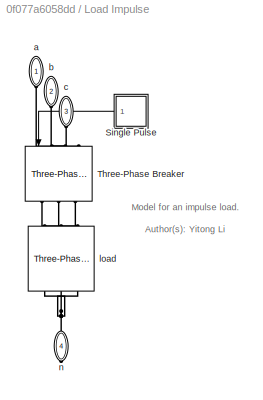
BLOCK [SubSystem] Load Impulse
  AncestorBlock = SimplexPS/Load Impulse
  Commented = on
  NameLocation = right
  Ports = [0, 0, 0, 0, 0, 3, 1]
  RequestExecContextInheritance = off
BLOCK [SubSystem] Load Impulse/Single Pulse
  AncestorBlock = SimplexPS/Single Pulse
  NameLocation = top
  Ports = [0, 1]
  RequestExecContextInheritance = off
BLOCK [Gain] Load Impulse/Single Pulse/Gain
  Gain = Am
BLOCK [Outport] Load Impulse/Single Pulse/Out
BLOCK [Product] Load Impulse/Single Pulse/Product
  Ports = [2, 1]
BLOCK [Step] Load Impulse/Single Pulse/Step
  SampleTime = 0
  Time = t0
BLOCK [Step] Load Impulse/Single Pulse/Step1
  After = 0
  Before = 1
  SampleTime = 0
  Time = t0+dt
BLOCK [Reference] Load Impulse/Three-Phase Breaker  REF=powerlib/Elements/Three-Phase Breaker
  NameLocation = left
  Ports = [1, 0, 0, 0, 0, 3, 3]
  SourceBlock = powerlib/Elements/Three-Phase Breaker
  SourceProductBaseCode = PS
  SourceType = Three-Phase Breaker
BLOCK [PMIOPort] Load Impulse/a
  NameLocation = left
  Side = Left
BLOCK [PMIOPort] Load Impulse/b
  NameLocation = left
  Port = 2
  Side = Left
BLOCK [PMIOPort] Load Impulse/c
  NameLocation = left
  Port = 3
  Side = Left
BLOCK [Reference] Load Impulse/load  REF=powerlib/Elements/Three-Phase
Parallel RLC Branch
  AttributesFormatString = \n
  NameLocation = right
  Ports = [0, 0, 0, 0, 0, 3, 3]
  SourceBlock = powerlib/Elements/Three-Phase\nParallel RLC Branch
  SourceProductBaseCode = PS
  SourceType = Three-Phase Parallel RLC Branch
BLOCK [PMIOPort] Load Impulse/n
  NameLocation = left
  Port = 4
  Side = Right
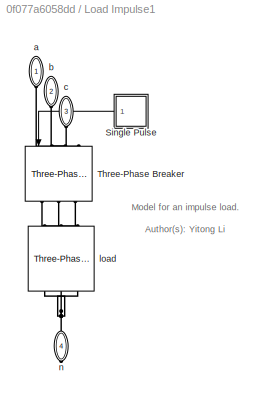
BLOCK [SubSystem] Load Impulse1
  AncestorBlock = SimplexPS/Load Impulse
  NameLocation = right
  Ports = [0, 0, 0, 0, 0, 3, 1]
  RequestExecContextInheritance = off
BLOCK [SubSystem] Load Impulse1/Single Pulse
  AncestorBlock = SimplexPS/Single Pulse
  NameLocation = top
  Ports = [0, 1]
  RequestExecContextInheritance = off
BLOCK [Gain] Load Impulse1/Single Pulse/Gain
  Gain = Am
BLOCK [Outport] Load Impulse1/Single Pulse/Out
BLOCK [Product] Load Impulse1/Single Pulse/Product
  Ports = [2, 1]
BLOCK [Step] Load Impulse1/Single Pulse/Step
  SampleTime = 0
  Time = t0
BLOCK [Step] Load Impulse1/Single Pulse/Step1
  After = 0
  Before = 1
  SampleTime = 0
  Time = t0+dt
BLOCK [Reference] Load Impulse1/Three-Phase Breaker  REF=powerlib/Elements/Three-Phase Breaker
  NameLocation = left
  Ports = [1, 0, 0, 0, 0, 3, 3]
  SourceBlock = powerlib/Elements/Three-Phase Breaker
  SourceProductBaseCode = PS
  SourceType = Three-Phase Breaker
BLOCK [PMIOPort] Load Impulse1/a
  NameLocation = left
  Side = Left
BLOCK [PMIOPort] Load Impulse1/b
  NameLocation = left
  Port = 2
  Side = Left
BLOCK [PMIOPort] Load Impulse1/c
  NameLocation = left
  Port = 3
  Side = Left
BLOCK [Reference] Load Impulse1/load  REF=powerlib/Elements/Three-Phase
Parallel RLC Branch
  AttributesFormatString = \n
  NameLocation = right
  Ports = [0, 0, 0, 0, 0, 3, 3]
  SourceBlock = powerlib/Elements/Three-Phase\nParallel RLC Branch
  SourceProductBaseCode = PS
  SourceType = Three-Phase Parallel RLC Branch
BLOCK [PMIOPort] Load Impulse1/n
  NameLocation = left
  Port = 4
  Side = Right
BLOCK [Reference] SM1  REF=SimplexPS/Synchronous Machine
(dq-Frame System Object)
  Commented = on
  Ports = [0, 1, 0, 0, 0, 4]
  SourceBlock = SimplexPS/Synchronous Machine\n(dq-Frame System Object)
  SourceProductName = Simplex Power Systems
BLOCK [Reference] SM14_  REF=SimplexPS/Synchronous Machine
(dq-Frame System Object)
  Ports = [0, 1, 0, 0, 0, 4]
  SourceBlock = SimplexPS/Synchronous Machine\n(dq-Frame System Object)
  SourceProductName = Simplex Power Systems
BLOCK [Reference] SM15  REF=SimplexPS/Synchronous Machine
(dq-Frame System Object)
  Commented = on
  Ports = [0, 1, 0, 0, 0, 4]
  SourceBlock = SimplexPS/Synchronous Machine\n(dq-Frame System Object)
  SourceProductName = Simplex Power Systems
BLOCK [Reference] SM17  REF=SimplexPS/Synchronous Machine
(dq-Frame System Object)
  Ports = [0, 1, 0, 0, 0, 4]
  SourceBlock = SimplexPS/Synchronous Machine\n(dq-Frame System Object)
  SourceProductName = Simplex Power Systems
BLOCK [Reference] SM2  REF=SimplexPS/Synchronous Machine
(dq-Frame System Object)
  Commented = on
  Ports = [0, 1, 0, 0, 0, 4]
  SourceBlock = SimplexPS/Synchronous Machine\n(dq-Frame System Object)
  SourceProductName = Simplex Power Systems
BLOCK [Reference] SM7  REF=SimplexPS/Synchronous Machine
(dq-Frame System Object)
  Commented = on
  Ports = [0, 1, 0, 0, 0, 4]
  SourceBlock = SimplexPS/Synchronous Machine\n(dq-Frame System Object)
  SourceProductName = Simplex Power Systems
BLOCK [Reference] SM8  REF=SimplexPS/Synchronous Machine
(dq-Frame System Object)
  Commented = on
  Ports = [0, 1, 0, 0, 0, 4]
  SourceBlock = SimplexPS/Synchronous Machine\n(dq-Frame System Object)
  SourceProductName = Simplex Power Systems
BLOCK [Scope] Scope
  Commented = on
  Floating = off
  NumInputPorts = 1
  Ports = [1]
  ScopeSpecificationString = Simulink.scopes.TimeScopeBlockCfg('CurrentConfiguration', extmgr.ConfigurationSet(extmgr.Configuration('Core','General UI',true),extmgr.Configuration('Core','Source UI',true),extmgr.Configuration('Sources','WiredSimulink',true,'DataLoggingVariableName','ScopeData1'),extmgr.Configuration('Visuals','Time Domain',true,'SerializedDisplays',{struct('MinYLimReal','-54.34529','MaxYLimReal','43.47094','YL...<+1409ch>
BLOCK [Scope] Scope1
  Floating = off
  NumInputPorts = 1
  Ports = [1]
  ScopeSpecificationString = Simulink.scopes.TimeScopeBlockCfg('CurrentConfiguration', extmgr.ConfigurationSet(extmgr.Configuration('Core','General UI',true),extmgr.Configuration('Core','Source UI',true),extmgr.Configuration('Sources','WiredSimulink',true,'DataLoggingVariableName','ScopeData2'),extmgr.Configuration('Visuals','Time Domain',true,'SerializedDisplays',{struct('MinYLimReal','-32.03346','MaxYLimReal','27.35522','YL...<+1410ch>
BLOCK [Scope] Scope2
  Floating = off
  NameLocation = top
  NumInputPorts = 6
  Ports = [6]
  ScopeSpecificationString = Simulink.scopes.TimeScopeBlockCfg('CurrentConfiguration', extmgr.ConfigurationSet(extmgr.Configuration('Core','General UI',true),extmgr.Configuration('Core','Source UI',true),extmgr.Configuration('Sources','WiredSimulink',true,'DataLoggingVariableName','ScopeData1'),extmgr.Configuration('Visuals','Time Domain',true,'SerializedDisplays',{struct('MinYLimReal','-11.05359','MaxYLimReal','10.28768','YL...<+4853ch>
BLOCK [Scope] Scope3
  Floating = off
  NameLocation = top
  NumInputPorts = 2
  Ports = [2]
  ScopeSpecificationString = Simulink.scopes.TimeScopeBlockCfg('CurrentConfiguration', extmgr.ConfigurationSet(extmgr.Configuration('Core','General UI',true),extmgr.Configuration('Core','Source UI',true),extmgr.Configuration('Sources','WiredSimulink',true,'DataLoggingVariableName','ScopeData2'),extmgr.Configuration('Visuals','Time Domain',true,'SerializedDisplays',{struct('MinYLimReal','-2.01757','MaxYLimReal','3.76471','YLab...<+2057ch>
BLOCK [SubSystem] Subsystem
  NameLocation = top
  Ports = [1, 1]
  RequestExecContextInheritance = off
BLOCK [Constant] Subsystem/Constant
  NameLocation = top
  Value = pi
BLOCK [Constant] Subsystem/Constant5
  Value = 2*pi
BLOCK [Math] Subsystem/Math Function2
  NameLocation = top
  Operator = mod
  Ports = [2, 1]
  SignedPower = on
BLOCK [Outport] Subsystem/Out1
BLOCK [Sum] Subsystem/Sum
  Inputs = |++
  NameLocation = top
  Ports = [2, 1]
BLOCK [Sum] Subsystem/Sum1
  Inputs = |+-
  NameLocation = top
  Ports = [2, 1]
BLOCK [Inport] Subsystem/dtheta1
BLOCK [SubSystem] Subsystem1
  NameLocation = top
  Ports = [1, 1]
  RequestExecContextInheritance = off
BLOCK [Constant] Subsystem1/Constant
  NameLocation = top
  Value = pi
BLOCK [Constant] Subsystem1/Constant5
  Value = 2*pi
BLOCK [Math] Subsystem1/Math Function2
  NameLocation = top
  Operator = mod
  Ports = [2, 1]
  SignedPower = on
BLOCK [Outport] Subsystem1/Out1
BLOCK [Sum] Subsystem1/Sum
  Inputs = |++
  NameLocation = top
  Ports = [2, 1]
BLOCK [Sum] Subsystem1/Sum1
  Inputs = |+-
  NameLocation = top
  Ports = [2, 1]
BLOCK [Inport] Subsystem1/dtheta1
BLOCK [SubSystem] Subsystem2
  NameLocation = top
  Ports = [1, 1]
  RequestExecContextInheritance = off
BLOCK [Constant] Subsystem2/Constant
  NameLocation = top
  Value = pi
BLOCK [Constant] Subsystem2/Constant5
  Value = 2*pi
BLOCK [Math] Subsystem2/Math Function2
  NameLocation = top
  Operator = mod
  Ports = [2, 1]
  SignedPower = on
BLOCK [Outport] Subsystem2/Out1
BLOCK [Sum] Subsystem2/Sum
  Inputs = |++
  NameLocation = top
  Ports = [2, 1]
BLOCK [Sum] Subsystem2/Sum1
  Inputs = |+-
  NameLocation = top
  Ports = [2, 1]
BLOCK [Inport] Subsystem2/dtheta1
BLOCK [SubSystem] Subsystem3
  NameLocation = top
  Ports = [1, 1]
  RequestExecContextInheritance = off
BLOCK [Constant] Subsystem3/Constant
  NameLocation = top
  Value = pi
BLOCK [Constant] Subsystem3/Constant5
  Value = 2*pi
BLOCK [Math] Subsystem3/Math Function2
  NameLocation = top
  Operator = mod
  Ports = [2, 1]
  SignedPower = on
BLOCK [Outport] Subsystem3/Out1
BLOCK [Sum] Subsystem3/Sum
  Inputs = |++
  NameLocation = top
  Ports = [2, 1]
BLOCK [Sum] Subsystem3/Sum1
  Inputs = |+-
  NameLocation = top
  Ports = [2, 1]
BLOCK [Inport] Subsystem3/dtheta1
BLOCK [Sum] Sum
  IconShape = rectangular
  Inputs = +-
  NameLocation = top
  Ports = [2, 1]
BLOCK [Sum] Sum1
  IconShape = rectangular
  Inputs = +-
  NameLocation = top
  Ports = [2, 1]
BLOCK [Sum] Sum2
  IconShape = rectangular
  Inputs = +-
  NameLocation = top
  Ports = [2, 1]
BLOCK [Sum] Sum3
  IconShape = rectangular
  Inputs = +-
  NameLocation = top
  Ports = [2, 1]
BLOCK [Sum] Sum4
  IconShape = rectangular
  Inputs = +-
  NameLocation = top
  Ports = [2, 1]
BLOCK [Sum] Sum5
  IconShape = rectangular
  Inputs = +-
  NameLocation = top
  Ports = [2, 1]
BLOCK [Sum] Sum6
  IconShape = rectangular
  Inputs = +-
  NameLocation = top
  Ports = [2, 1]
BLOCK [Sum] Sum7
  IconShape = rectangular
  Inputs = +-
  NameLocation = top
  Ports = [2, 1]
BLOCK [Reference] Transformer10-31  REF=powerlib/Elements/Three-Phase
Transformer
(Two Windings)
  NameLocation = right
  Ports = [0, 0, 0, 0, 0, 3, 3]
  SourceBlock = powerlib/Elements/Three-Phase\nTransformer\n(Two Windings)
  SourceProductBaseCode = PS
  SourceType = Three-Phase Transformer (Two Windings)
BLOCK [Reference] Transformer11-32  REF=powerlib/Elements/Three-Phase
Transformer
(Two Windings)
  NameLocation = right
  Ports = [0, 0, 0, 0, 0, 3, 3]
  SourceBlock = powerlib/Elements/Three-Phase\nTransformer\n(Two Windings)
  SourceProductBaseCode = PS
  SourceType = Three-Phase Transformer (Two Windings)
BLOCK [Reference] Transformer12-36  REF=powerlib/Elements/Three-Phase
Transformer
(Two Windings)
  NameLocation = right
  Ports = [0, 0, 0, 0, 0, 3, 3]
  SourceBlock = powerlib/Elements/Three-Phase\nTransformer\n(Two Windings)
  SourceProductBaseCode = PS
  SourceType = Three-Phase Transformer (Two Windings)
BLOCK [Reference] Transformer13-17  REF=powerlib/Elements/Three-Phase
Transformer
(Two Windings)
  NameLocation = right
  Ports = [0, 0, 0, 0, 0, 3, 3]
  SourceBlock = powerlib/Elements/Three-Phase\nTransformer\n(Two Windings)
  SourceProductBaseCode = PS
  SourceType = Three-Phase Transformer (Two Windings)
BLOCK [Reference] Transformer16-54  REF=powerlib/Elements/Three-Phase
Transformer
(Two Windings)
  NameLocation = right
  Ports = [0, 0, 0, 0, 0, 3, 3]
  SourceBlock = powerlib/Elements/Three-Phase\nTransformer\n(Two Windings)
  SourceProductBaseCode = PS
  SourceType = Three-Phase Transformer (Two Windings)
BLOCK [Reference] Transformer19-20  REF=powerlib/Elements/Three-Phase
Transformer
(Two Windings)
  NameLocation = right
  Ports = [0, 0, 0, 0, 0, 3, 3]
  SourceBlock = powerlib/Elements/Three-Phase\nTransformer\n(Two Windings)
  SourceProductBaseCode = PS
  SourceType = Three-Phase Transformer (Two Windings)
BLOCK [Reference] Transformer2-58  REF=powerlib/Elements/Three-Phase
Transformer
(Two Windings)
  NameLocation = right
  Ports = [0, 0, 0, 0, 0, 3, 3]
  SourceBlock = powerlib/Elements/Three-Phase\nTransformer\n(Two Windings)
  SourceProductBaseCode = PS
  SourceType = Three-Phase Transformer (Two Windings)
BLOCK [Reference] Transformer3-62  REF=powerlib/Elements/Three-Phase
Transformer
(Two Windings)
  NameLocation = right
  Ports = [0, 0, 0, 0, 0, 3, 3]
  SourceBlock = powerlib/Elements/Three-Phase\nTransformer\n(Two Windings)
  SourceProductBaseCode = PS
  SourceType = Three-Phase Transformer (Two Windings)
BLOCK [Reference] Transformer34-35  REF=powerlib/Elements/Three-Phase
Transformer
(Two Windings)
  NameLocation = right
  Ports = [0, 0, 0, 0, 0, 3, 3]
  SourceBlock = powerlib/Elements/Three-Phase\nTransformer\n(Two Windings)
  SourceProductBaseCode = PS
  SourceType = Three-Phase Transformer (Two Windings)
BLOCK [Reference] Transformer4-19  REF=powerlib/Elements/Three-Phase
Transformer
(Two Windings)
  NameLocation = right
  Ports = [0, 0, 0, 0, 0, 3, 3]
  SourceBlock = powerlib/Elements/Three-Phase\nTransformer\n(Two Windings)
  SourceProductBaseCode = PS
  SourceType = Three-Phase Transformer (Two Windings)
BLOCK [Reference] Transformer5-20  REF=powerlib/Elements/Three-Phase
Transformer
(Two Windings)
  NameLocation = right
  Ports = [0, 0, 0, 0, 0, 3, 3]
  SourceBlock = powerlib/Elements/Three-Phase\nTransformer\n(Two Windings)
  SourceProductBaseCode = PS
  SourceType = Three-Phase Transformer (Two Windings)
BLOCK [Reference] Transformer6-22  REF=powerlib/Elements/Three-Phase
Transformer
(Two Windings)
  NameLocation = right
  Ports = [0, 0, 0, 0, 0, 3, 3]
  SourceBlock = powerlib/Elements/Three-Phase\nTransformer\n(Two Windings)
  SourceProductBaseCode = PS
  SourceType = Three-Phase Transformer (Two Windings)
BLOCK [Reference] Transformer63-64  REF=powerlib/Elements/Three-Phase
Transformer
(Two Windings)
  NameLocation = right
  Ports = [0, 0, 0, 0, 0, 3, 3]
  SourceBlock = powerlib/Elements/Three-Phase\nTransformer\n(Two Windings)
  SourceProductBaseCode = PS
  SourceType = Three-Phase Transformer (Two Windings)
BLOCK [Reference] Transformer64-65  REF=powerlib/Elements/Three-Phase
Transformer
(Two Windings)
  NameLocation = right
  Ports = [0, 0, 0, 0, 0, 3, 3]
  SourceBlock = powerlib/Elements/Three-Phase\nTransformer\n(Two Windings)
  SourceProductBaseCode = PS
  SourceType = Three-Phase Transformer (Two Windings)
BLOCK [Reference] Transformer8-25  REF=powerlib/Elements/Three-Phase
Transformer
(Two Windings)
  NameLocation = right
  Ports = [0, 0, 0, 0, 0, 3, 3]
  SourceBlock = powerlib/Elements/Three-Phase\nTransformer\n(Two Windings)
  SourceProductBaseCode = PS
  SourceType = Three-Phase Transformer (Two Windings)
BLOCK [Reference] Transformer9-29  REF=powerlib/Elements/Three-Phase
Transformer
(Two Windings)
  NameLocation = right
  Ports = [0, 0, 0, 0, 0, 3, 3]
  SourceBlock = powerlib/Elements/Three-Phase\nTransformer\n(Two Windings)
  SourceProductBaseCode = PS
  SourceType = Three-Phase Transformer (Two Windings)
BLOCK [Reference] VSI-PLL1  REF=SimplexPS/Grid-Following
Voltage-Source Inverter
(dq-Frame System Object)
  Ports = [0, 1, 0, 0, 0, 4]
  SourceBlock = SimplexPS/Grid-Following\nVoltage-Source Inverter\n(dq-Frame System Object)
  SourceProductName = Simplex Power Systems
BLOCK [Reference] VSI-PLL10  REF=SimplexPS/Grid-Following
Voltage-Source Inverter
(dq-Frame System Object)
  Ports = [0, 1, 0, 0, 0, 4]
  SourceBlock = SimplexPS/Grid-Following\nVoltage-Source Inverter\n(dq-Frame System Object)
  SourceProductName = Simplex Power Systems
BLOCK [Reference] VSI-PLL11  REF=SimplexPS/Grid-Following
Voltage-Source Inverter
(dq-Frame System Object)
  Ports = [0, 1, 0, 0, 0, 4]
  SourceBlock = SimplexPS/Grid-Following\nVoltage-Source Inverter\n(dq-Frame System Object)
  SourceProductName = Simplex Power Systems
BLOCK [Reference] VSI-PLL12  REF=SimplexPS/Grid-Following
Voltage-Source Inverter
(dq-Frame System Object)
  Ports = [0, 1, 0, 0, 0, 4]
  SourceBlock = SimplexPS/Grid-Following\nVoltage-Source Inverter\n(dq-Frame System Object)
  SourceProductName = Simplex Power Systems
BLOCK [Reference] VSI-PLL13  REF=SimplexPS/Grid-Following
Voltage-Source Inverter
(dq-Frame System Object)
  Ports = [0, 1, 0, 0, 0, 4]
  SourceBlock = SimplexPS/Grid-Following\nVoltage-Source Inverter\n(dq-Frame System Object)
  SourceProductName = Simplex Power Systems
BLOCK [Reference] VSI-PLL14  REF=SimplexPS/Grid-Following
Voltage-Source Inverter
(dq-Frame System Object)
  Commented = on
  Ports = [0, 1, 0, 0, 0, 4]
  SourceBlock = SimplexPS/Grid-Following\nVoltage-Source Inverter\n(dq-Frame System Object)
  SourceProductName = Simplex Power Systems
BLOCK [Reference] VSI-PLL15  REF=SimplexPS/Grid-Following
Voltage-Source Inverter
(dq-Frame System Object)
  Ports = [0, 1, 0, 0, 0, 4]
  SourceBlock = SimplexPS/Grid-Following\nVoltage-Source Inverter\n(dq-Frame System Object)
  SourceProductName = Simplex Power Systems
BLOCK [Reference] VSI-PLL16  REF=SimplexPS/Grid-Following
Voltage-Source Inverter
(dq-Frame System Object)
  Ports = [0, 1, 0, 0, 0, 4]
  SourceBlock = SimplexPS/Grid-Following\nVoltage-Source Inverter\n(dq-Frame System Object)
  SourceProductName = Simplex Power Systems
BLOCK [Reference] VSI-PLL17  REF=SimplexPS/Grid-Following
Voltage-Source Inverter
(dq-Frame System Object)
  Commented = on
  Ports = [0, 1, 0, 0, 0, 4]
  SourceBlock = SimplexPS/Grid-Following\nVoltage-Source Inverter\n(dq-Frame System Object)
  SourceProductName = Simplex Power Systems
BLOCK [Reference] VSI-PLL18  REF=SimplexPS/Grid-Following
Voltage-Source Inverter
(dq-Frame System Object)
  Ports = [0, 1, 0, 0, 0, 4]
  SourceBlock = SimplexPS/Grid-Following\nVoltage-Source Inverter\n(dq-Frame System Object)
  SourceProductName = Simplex Power Systems
BLOCK [Reference] VSI-PLL2  REF=SimplexPS/Grid-Following
Voltage-Source Inverter
(dq-Frame System Object)
  Ports = [0, 1, 0, 0, 0, 4]
  SourceBlock = SimplexPS/Grid-Following\nVoltage-Source Inverter\n(dq-Frame System Object)
  SourceProductName = Simplex Power Systems
BLOCK [Reference] VSI-PLL20  REF=SimplexPS/Grid-Following
Voltage-Source Inverter
(dq-Frame System Object)
  Ports = [0, 1, 0, 0, 0, 4]
  SourceBlock = SimplexPS/Grid-Following\nVoltage-Source Inverter\n(dq-Frame System Object)
  SourceProductName = Simplex Power Systems
BLOCK [Reference] VSI-PLL21  REF=SimplexPS/Grid-Following
Voltage-Source Inverter
(dq-Frame System Object)
  Ports = [0, 1, 0, 0, 0, 4]
  SourceBlock = SimplexPS/Grid-Following\nVoltage-Source Inverter\n(dq-Frame System Object)
  SourceProductName = Simplex Power Systems
BLOCK [Reference] VSI-PLL23  REF=SimplexPS/Grid-Following
Voltage-Source Inverter
(dq-Frame System Object)
  Ports = [0, 1, 0, 0, 0, 4]
  SourceBlock = SimplexPS/Grid-Following\nVoltage-Source Inverter\n(dq-Frame System Object)
  SourceProductName = Simplex Power Systems
BLOCK [Reference] VSI-PLL24  REF=SimplexPS/Grid-Following
Voltage-Source Inverter
(dq-Frame System Object)
  Ports = [0, 1, 0, 0, 0, 4]
  SourceBlock = SimplexPS/Grid-Following\nVoltage-Source Inverter\n(dq-Frame System Object)
  SourceProductName = Simplex Power Systems
BLOCK [Reference] VSI-PLL25  REF=SimplexPS/Grid-Following
Voltage-Source Inverter
(dq-Frame System Object)
  Ports = [0, 1, 0, 0, 0, 4]
  SourceBlock = SimplexPS/Grid-Following\nVoltage-Source Inverter\n(dq-Frame System Object)
  SourceProductName = Simplex Power Systems
BLOCK [Reference] VSI-PLL26  REF=SimplexPS/Grid-Following
Voltage-Source Inverter
(dq-Frame System Object)
  Ports = [0, 1, 0, 0, 0, 4]
  SourceBlock = SimplexPS/Grid-Following\nVoltage-Source Inverter\n(dq-Frame System Object)
  SourceProductName = Simplex Power Systems
BLOCK [Reference] VSI-PLL27  REF=SimplexPS/Grid-Following
Voltage-Source Inverter
(dq-Frame System Object)
  Ports = [0, 1, 0, 0, 0, 4]
  SourceBlock = SimplexPS/Grid-Following\nVoltage-Source Inverter\n(dq-Frame System Object)
  SourceProductName = Simplex Power Systems
BLOCK [Reference] VSI-PLL28  REF=SimplexPS/Grid-Following
Voltage-Source Inverter
(dq-Frame System Object)
  Ports = [0, 1, 0, 0, 0, 4]
  SourceBlock = SimplexPS/Grid-Following\nVoltage-Source Inverter\n(dq-Frame System Object)
  SourceProductName = Simplex Power Systems
BLOCK [Reference] VSI-PLL29  REF=SimplexPS/Grid-Following
Voltage-Source Inverter
(dq-Frame System Object)
  Ports = [0, 1, 0, 0, 0, 4]
  SourceBlock = SimplexPS/Grid-Following\nVoltage-Source Inverter\n(dq-Frame System Object)
  SourceProductName = Simplex Power Systems
BLOCK [Reference] VSI-PLL3  REF=SimplexPS/Grid-Following
Voltage-Source Inverter
(dq-Frame System Object)
  Ports = [0, 1, 0, 0, 0, 4]
  SourceBlock = SimplexPS/Grid-Following\nVoltage-Source Inverter\n(dq-Frame System Object)
  SourceProductName = Simplex Power Systems
BLOCK [Reference] VSI-PLL33  REF=SimplexPS/Grid-Following
Voltage-Source Inverter
(dq-Frame System Object)
  Ports = [0, 1, 0, 0, 0, 4]
  SourceBlock = SimplexPS/Grid-Following\nVoltage-Source Inverter\n(dq-Frame System Object)
  SourceProductName = Simplex Power Systems
BLOCK [Reference] VSI-PLL36  REF=SimplexPS/Grid-Following
Voltage-Source Inverter
(dq-Frame System Object)
  Ports = [0, 1, 0, 0, 0, 4]
  SourceBlock = SimplexPS/Grid-Following\nVoltage-Source Inverter\n(dq-Frame System Object)
  SourceProductName = Simplex Power Systems
BLOCK [Reference] VSI-PLL39  REF=SimplexPS/Grid-Following
Voltage-Source Inverter
(dq-Frame System Object)
  Ports = [0, 1, 0, 0, 0, 4]
  SourceBlock = SimplexPS/Grid-Following\nVoltage-Source Inverter\n(dq-Frame System Object)
  SourceProductName = Simplex Power Systems
BLOCK [Reference] VSI-PLL4  REF=SimplexPS/Grid-Following
Voltage-Source Inverter
(dq-Frame System Object)
  Ports = [0, 1, 0, 0, 0, 4]
  SourceBlock = SimplexPS/Grid-Following\nVoltage-Source Inverter\n(dq-Frame System Object)
  SourceProductName = Simplex Power Systems
BLOCK [Reference] VSI-PLL40  REF=SimplexPS/Grid-Following
Voltage-Source Inverter
(dq-Frame System Object)
  Ports = [0, 1, 0, 0, 0, 4]
  SourceBlock = SimplexPS/Grid-Following\nVoltage-Source Inverter\n(dq-Frame System Object)
  SourceProductName = Simplex Power Systems
BLOCK [Reference] VSI-PLL41  REF=SimplexPS/Grid-Following
Voltage-Source Inverter
(dq-Frame System Object)
  Ports = [0, 1, 0, 0, 0, 4]
  SourceBlock = SimplexPS/Grid-Following\nVoltage-Source Inverter\n(dq-Frame System Object)
  SourceProductName = Simplex Power Systems
BLOCK [Reference] VSI-PLL42  REF=SimplexPS/Grid-Following
Voltage-Source Inverter
(dq-Frame System Object)
  Ports = [0, 1, 0, 0, 0, 4]
  SourceBlock = SimplexPS/Grid-Following\nVoltage-Source Inverter\n(dq-Frame System Object)
  SourceProductName = Simplex Power Systems
BLOCK [Reference] VSI-PLL44  REF=SimplexPS/Grid-Following
Voltage-Source Inverter
(dq-Frame System Object)
  Ports = [0, 1, 0, 0, 0, 4]
  SourceBlock = SimplexPS/Grid-Following\nVoltage-Source Inverter\n(dq-Frame System Object)
  SourceProductName = Simplex Power Systems
BLOCK [Reference] VSI-PLL45  REF=SimplexPS/Grid-Following
Voltage-Source Inverter
(dq-Frame System Object)
  Ports = [0, 1, 0, 0, 0, 4]
  SourceBlock = SimplexPS/Grid-Following\nVoltage-Source Inverter\n(dq-Frame System Object)
  SourceProductName = Simplex Power Systems
BLOCK [Reference] VSI-PLL46  REF=SimplexPS/Grid-Following
Voltage-Source Inverter
(dq-Frame System Object)
  Ports = [0, 1, 0, 0, 0, 4]
  SourceBlock = SimplexPS/Grid-Following\nVoltage-Source Inverter\n(dq-Frame System Object)
  SourceProductName = Simplex Power Systems
BLOCK [Reference] VSI-PLL47  REF=SimplexPS/Grid-Following
Voltage-Source Inverter
(dq-Frame System Object)
  Ports = [0, 1, 0, 0, 0, 4]
  SourceBlock = SimplexPS/Grid-Following\nVoltage-Source Inverter\n(dq-Frame System Object)
  SourceProductName = Simplex Power Systems
BLOCK [Reference] VSI-PLL48  REF=SimplexPS/Grid-Following
Voltage-Source Inverter
(dq-Frame System Object)
  Ports = [0, 1, 0, 0, 0, 4]
  SourceBlock = SimplexPS/Grid-Following\nVoltage-Source Inverter\n(dq-Frame System Object)
  SourceProductName = Simplex Power Systems
BLOCK [Reference] VSI-PLL49  REF=SimplexPS/Grid-Following
Voltage-Source Inverter
(dq-Frame System Object)
  Ports = [0, 1, 0, 0, 0, 4]
  SourceBlock = SimplexPS/Grid-Following\nVoltage-Source Inverter\n(dq-Frame System Object)
  SourceProductName = Simplex Power Systems
BLOCK [Reference] VSI-PLL5  REF=SimplexPS/Grid-Following
Voltage-Source Inverter
(dq-Frame System Object)
  Ports = [0, 1, 0, 0, 0, 4]
  SourceBlock = SimplexPS/Grid-Following\nVoltage-Source Inverter\n(dq-Frame System Object)
  SourceProductName = Simplex Power Systems
BLOCK [Reference] VSI-PLL50  REF=SimplexPS/Grid-Following
Voltage-Source Inverter
(dq-Frame System Object)
  Ports = [0, 1, 0, 0, 0, 4]
  SourceBlock = SimplexPS/Grid-Following\nVoltage-Source Inverter\n(dq-Frame System Object)
  SourceProductName = Simplex Power Systems
BLOCK [Reference] VSI-PLL51  REF=SimplexPS/Grid-Following
Voltage-Source Inverter
(dq-Frame System Object)
  Ports = [0, 1, 0, 0, 0, 4]
  SourceBlock = SimplexPS/Grid-Following\nVoltage-Source Inverter\n(dq-Frame System Object)
  SourceProductName = Simplex Power Systems
BLOCK [Reference] VSI-PLL52  REF=SimplexPS/Grid-Following
Voltage-Source Inverter
(dq-Frame System Object)
  Ports = [0, 1, 0, 0, 0, 4]
  SourceBlock = SimplexPS/Grid-Following\nVoltage-Source Inverter\n(dq-Frame System Object)
  SourceProductName = Simplex Power Systems
BLOCK [Reference] VSI-PLL53  REF=SimplexPS/Grid-Following
Voltage-Source Inverter
(dq-Frame System Object)
  Ports = [0, 1, 0, 0, 0, 4]
  SourceBlock = SimplexPS/Grid-Following\nVoltage-Source Inverter\n(dq-Frame System Object)
  SourceProductName = Simplex Power Systems
BLOCK [Reference] VSI-PLL55  REF=SimplexPS/Grid-Following
Voltage-Source Inverter
(dq-Frame System Object)
  Ports = [0, 1, 0, 0, 0, 4]
  SourceBlock = SimplexPS/Grid-Following\nVoltage-Source Inverter\n(dq-Frame System Object)
  SourceProductName = Simplex Power Systems
BLOCK [Reference] VSI-PLL56  REF=SimplexPS/Grid-Following
Voltage-Source Inverter
(dq-Frame System Object)
  Ports = [0, 1, 0, 0, 0, 4]
  SourceBlock = SimplexPS/Grid-Following\nVoltage-Source Inverter\n(dq-Frame System Object)
  SourceProductName = Simplex Power Systems
BLOCK [Reference] VSI-PLL59  REF=SimplexPS/Grid-Following
Voltage-Source Inverter
(dq-Frame System Object)
  Ports = [0, 1, 0, 0, 0, 4]
  SourceBlock = SimplexPS/Grid-Following\nVoltage-Source Inverter\n(dq-Frame System Object)
  SourceProductName = Simplex Power Systems
BLOCK [Reference] VSI-PLL6  REF=SimplexPS/Grid-Following
Voltage-Source Inverter
(dq-Frame System Object)
  Ports = [0, 1, 0, 0, 0, 4]
  SourceBlock = SimplexPS/Grid-Following\nVoltage-Source Inverter\n(dq-Frame System Object)
  SourceProductName = Simplex Power Systems
BLOCK [Reference] VSI-PLL60  REF=SimplexPS/Grid-Following
Voltage-Source Inverter
(dq-Frame System Object)
  Ports = [0, 1, 0, 0, 0, 4]
  SourceBlock = SimplexPS/Grid-Following\nVoltage-Source Inverter\n(dq-Frame System Object)
  SourceProductName = Simplex Power Systems
BLOCK [Reference] VSI-PLL61  REF=SimplexPS/Grid-Following
Voltage-Source Inverter
(dq-Frame System Object)
  Ports = [0, 1, 0, 0, 0, 4]
  SourceBlock = SimplexPS/Grid-Following\nVoltage-Source Inverter\n(dq-Frame System Object)
  SourceProductName = Simplex Power Systems
BLOCK [Reference] VSI-PLL64  REF=SimplexPS/Grid-Following
Voltage-Source Inverter
(dq-Frame System Object)
  Ports = [0, 1, 0, 0, 0, 4]
  SourceBlock = SimplexPS/Grid-Following\nVoltage-Source Inverter\n(dq-Frame System Object)
  SourceProductName = Simplex Power Systems
BLOCK [Reference] VSI-PLL67  REF=SimplexPS/Grid-Following
Voltage-Source Inverter
(dq-Frame System Object)
  Ports = [0, 1, 0, 0, 0, 4]
  SourceBlock = SimplexPS/Grid-Following\nVoltage-Source Inverter\n(dq-Frame System Object)
  SourceProductName = Simplex Power Systems
BLOCK [Reference] VSI-PLL68  REF=SimplexPS/Grid-Following
Voltage-Source Inverter
(dq-Frame System Object)
  Ports = [0, 1, 0, 0, 0, 4]
  SourceBlock = SimplexPS/Grid-Following\nVoltage-Source Inverter\n(dq-Frame System Object)
  SourceProductName = Simplex Power Systems
BLOCK [Reference] VSI-PLL7  REF=SimplexPS/Grid-Following
Voltage-Source Inverter
(dq-Frame System Object)
  Ports = [0, 1, 0, 0, 0, 4]
  SourceBlock = SimplexPS/Grid-Following\nVoltage-Source Inverter\n(dq-Frame System Object)
  SourceProductName = Simplex Power Systems
BLOCK [Reference] VSI-PLL8  REF=SimplexPS/Grid-Following
Voltage-Source Inverter
(dq-Frame System Object)
  Ports = [0, 1, 0, 0, 0, 4]
  SourceBlock = SimplexPS/Grid-Following\nVoltage-Source Inverter\n(dq-Frame System Object)
  SourceProductName = Simplex Power Systems
BLOCK [Reference] VSI-PLL9  REF=SimplexPS/Grid-Following
Voltage-Source Inverter
(dq-Frame System Object)
  Ports = [0, 1, 0, 0, 0, 4]
  SourceBlock = SimplexPS/Grid-Following\nVoltage-Source Inverter\n(dq-Frame System Object)
  SourceProductName = Simplex Power Systems
BLOCK [Reference] powergui  REF=powerlib/powergui
  Ports = []
  Priority = 1
  SourceBlock = powerlib/powergui
  SourceProductBaseCode = PS
  SourceType = PSB option menu block
ANNOTATION (root): Load Impulse
ANNOTATION Load Impulse: Model for an impulse load. Author(s): Yitong Li
ANNOTATION Load Impulse/Single Pulse: Pulse generator Author(s): Yitong Li
ANNOTATION Load Impulse1: Model for an impulse load. Author(s): Yitong Li
ANNOTATION Load Impulse1/Single Pulse: Pulse generator Author(s): Yitong Li
NET AC Infinite Bus (Voltage Type)1:1 -> DS-Bus17_:1, Goto3:1
NET AC Infinite Bus (Voltage Type):1 -> DS-Bus1_:1, Goto5:1
LINE Current Measurement1:1 -> Scope1:1
LINE Current Measurement:1 -> Scope:1
LINE DS-Bus10:1 -> D-Scope10:1
LINE DS-Bus10:2 -> D-Scope10:2
LINE DS-Bus10:3 -> D-Scope10:3
LINE DS-Bus10:4 -> D-Scope10:4
LINE DS-Bus10:5 -> D-Scope10:5
LINE DS-Bus10:6 -> D-Scope10:6
LINE DS-Bus10:7 -> D-Scope10:7
LINE DS-Bus11:1 -> D-Scope11:1
LINE DS-Bus11:2 -> D-Scope11:2
LINE DS-Bus11:3 -> D-Scope11:3
LINE DS-Bus11:4 -> D-Scope11:4
LINE DS-Bus11:5 -> D-Scope11:5
LINE DS-Bus11:6 -> D-Scope11:6
LINE DS-Bus11:7 -> D-Scope11:7
LINE DS-Bus12:1 -> D-Scope12:1
LINE DS-Bus12:2 -> D-Scope12:2
LINE DS-Bus12:3 -> D-Scope12:3
LINE DS-Bus12:4 -> D-Scope12:4
LINE DS-Bus12:5 -> D-Scope12:5
LINE DS-Bus12:6 -> D-Scope12:6
LINE DS-Bus12:7 -> D-Scope12:7
LINE DS-Bus13:1 -> D-Scope13:1
LINE DS-Bus13:2 -> D-Scope13:2
LINE DS-Bus13:3 -> D-Scope13:3
LINE DS-Bus13:4 -> D-Scope13:4
LINE DS-Bus13:5 -> D-Scope13:5
LINE DS-Bus13:6 -> D-Scope13:6
LINE DS-Bus13:7 -> D-Scope13:7
LINE DS-Bus14:1 -> D-Scope14:1
LINE DS-Bus14:2 -> D-Scope14:2
LINE DS-Bus14:3 -> D-Scope14:3
LINE DS-Bus14:4 -> D-Scope14:4
LINE DS-Bus14:5 -> D-Scope14:5
LINE DS-Bus14:6 -> D-Scope14:6
LINE DS-Bus14:7 -> D-Scope14:7
LINE DS-Bus14_:1 -> D-Scope14_:1
LINE DS-Bus14_:2 -> D-Scope14_:2
LINE DS-Bus14_:3 -> D-Scope14_:3
LINE DS-Bus14_:4 -> D-Scope14_:4
LINE DS-Bus14_:5 -> D-Scope14_:5
LINE DS-Bus14_:6 -> D-Scope14_:6
LINE DS-Bus14_:7 -> D-Scope14_:7
LINE DS-Bus15:1 -> D-Scope15:1
LINE DS-Bus15:2 -> D-Scope15:2
LINE DS-Bus15:3 -> D-Scope15:3
LINE DS-Bus15:4 -> D-Scope15:4
LINE DS-Bus15:5 -> D-Scope15:5
LINE DS-Bus15:6 -> D-Scope15:6
LINE DS-Bus15:7 -> D-Scope15:7
LINE DS-Bus15_:1 -> D-Scope15_:1
LINE DS-Bus15_:2 -> D-Scope15_:2
LINE DS-Bus15_:3 -> D-Scope15_:3
LINE DS-Bus15_:4 -> D-Scope15_:4
LINE DS-Bus15_:5 -> D-Scope15_:5
LINE DS-Bus15_:6 -> D-Scope15_:6
LINE DS-Bus15_:7 -> D-Scope15_:7
LINE DS-Bus16:1 -> D-Scope16:1
LINE DS-Bus16:2 -> D-Scope16:2
LINE DS-Bus16:3 -> D-Scope16:3
LINE DS-Bus16:4 -> D-Scope16:4
LINE DS-Bus16:5 -> D-Scope16:5
LINE DS-Bus16:6 -> D-Scope16:6
LINE DS-Bus16:7 -> D-Scope16:7
LINE DS-Bus17:1 -> D-Scope17:1
LINE DS-Bus17:2 -> D-Scope17:2
LINE DS-Bus17:3 -> D-Scope17:3
LINE DS-Bus17:4 -> D-Scope17:4
LINE DS-Bus17:5 -> D-Scope17:5
LINE DS-Bus17:6 -> D-Scope17:6
LINE DS-Bus17:7 -> D-Scope17:7
LINE DS-Bus17_:1 -> D-Scope17_:1
LINE DS-Bus17_:2 -> D-Scope17_:2
LINE DS-Bus17_:3 -> D-Scope17_:3
LINE DS-Bus17_:4 -> D-Scope17_:4
LINE DS-Bus17_:5 -> D-Scope17_:5
LINE DS-Bus17_:6 -> D-Scope17_:6
LINE DS-Bus17_:7 -> D-Scope17_:7
LINE DS-Bus17__:1 -> D-Scope17__:1
LINE DS-Bus17__:2 -> D-Scope17__:2
LINE DS-Bus17__:3 -> D-Scope17__:3
LINE DS-Bus17__:4 -> D-Scope17__:4
LINE DS-Bus17__:5 -> D-Scope17__:5
LINE DS-Bus17__:6 -> D-Scope17__:6
LINE DS-Bus17__:7 -> D-Scope17__:7
LINE DS-Bus18:1 -> D-Scope18:1
LINE DS-Bus18:2 -> D-Scope18:2
LINE DS-Bus18:3 -> D-Scope18:3
LINE DS-Bus18:4 -> D-Scope18:4
LINE DS-Bus18:5 -> D-Scope18:5
LINE DS-Bus18:6 -> D-Scope18:6
LINE DS-Bus18:7 -> D-Scope18:7
LINE DS-Bus1:1 -> D-Scope1___:1
LINE DS-Bus1:2 -> D-Scope1___:2
LINE DS-Bus1:3 -> D-Scope1___:3
LINE DS-Bus1:4 -> D-Scope1___:4
LINE DS-Bus1:5 -> D-Scope1___:5
LINE DS-Bus1:6 -> D-Scope1___:6
LINE DS-Bus1:7 -> D-Scope1___:7
LINE DS-Bus1_:1 -> D-Scope1_:1
LINE DS-Bus1_:2 -> D-Scope1_:2
LINE DS-Bus1_:3 -> D-Scope1_:3
LINE DS-Bus1_:4 -> D-Scope1_:4
LINE DS-Bus1_:5 -> D-Scope1_:5
LINE DS-Bus1_:6 -> D-Scope1_:6
LINE DS-Bus1_:7 -> D-Scope1_:7
LINE DS-Bus1__:1 -> D-Scope1:1
LINE DS-Bus1__:2 -> D-Scope1:2
LINE DS-Bus1__:3 -> D-Scope1:3
LINE DS-Bus1__:4 -> D-Scope1:4
LINE DS-Bus1__:5 -> D-Scope1:5
LINE DS-Bus1__:6 -> D-Scope1:6
LINE DS-Bus1__:7 -> D-Scope1:7
LINE DS-Bus20:1 -> D-Scope20:1
LINE DS-Bus20:2 -> D-Scope20:2
LINE DS-Bus20:3 -> D-Scope20:3
LINE DS-Bus20:4 -> D-Scope20:4
LINE DS-Bus20:5 -> D-Scope20:5
LINE DS-Bus20:6 -> D-Scope20:6
LINE DS-Bus20:7 -> D-Scope20:7
LINE DS-Bus21:1 -> D-Scope21:1
LINE DS-Bus21:2 -> D-Scope21:2
LINE DS-Bus21:3 -> D-Scope21:3
LINE DS-Bus21:4 -> D-Scope21:4
LINE DS-Bus21:5 -> D-Scope21:5
LINE DS-Bus21:6 -> D-Scope21:6
LINE DS-Bus21:7 -> D-Scope21:7
LINE DS-Bus22:1 -> Goto8:1
LINE DS-Bus22:4 -> Goto9:1
LINE DS-Bus23:1 -> D-Scope23:1
LINE DS-Bus23:2 -> D-Scope23:2
LINE DS-Bus23:3 -> D-Scope23:3
LINE DS-Bus23:4 -> D-Scope23:4
LINE DS-Bus23:5 -> D-Scope23:5
LINE DS-Bus23:6 -> D-Scope23:6
LINE DS-Bus23:7 -> D-Scope23:7
LINE DS-Bus24:1 -> D-Scope24:1
LINE DS-Bus24:2 -> D-Scope24:2
LINE DS-Bus24:3 -> D-Scope24:3
LINE DS-Bus24:4 -> D-Scope24:4
LINE DS-Bus24:5 -> D-Scope24:5
LINE DS-Bus24:6 -> D-Scope24:6
LINE DS-Bus24:7 -> D-Scope24:7
LINE DS-Bus25:1 -> D-Scope25:1
LINE DS-Bus25:2 -> D-Scope25:2
LINE DS-Bus25:3 -> D-Scope25:3
LINE DS-Bus25:4 -> D-Scope25:4
LINE DS-Bus25:5 -> D-Scope25:5
LINE DS-Bus25:6 -> D-Scope25:6
LINE DS-Bus25:7 -> D-Scope25:7
LINE DS-Bus26:1 -> D-Scope26:1
LINE DS-Bus26:2 -> D-Scope26:2
LINE DS-Bus26:3 -> D-Scope26:3
LINE DS-Bus26:4 -> D-Scope26:4
LINE DS-Bus26:5 -> D-Scope26:5
LINE DS-Bus26:6 -> D-Scope26:6
LINE DS-Bus26:7 -> D-Scope26:7
LINE DS-Bus27:1 -> D-Scope27:1
LINE DS-Bus27:2 -> D-Scope27:2
LINE DS-Bus27:3 -> D-Scope27:3
LINE DS-Bus27:4 -> D-Scope27:4
LINE DS-Bus27:5 -> D-Scope27:5
LINE DS-Bus27:6 -> D-Scope27:6
LINE DS-Bus27:7 -> D-Scope27:7
LINE DS-Bus28:1 -> D-Scope28:1
LINE DS-Bus28:2 -> D-Scope28:2
LINE DS-Bus28:3 -> D-Scope28:3
LINE DS-Bus28:4 -> D-Scope28:4
LINE DS-Bus28:5 -> D-Scope28:5
LINE DS-Bus28:6 -> D-Scope28:6
LINE DS-Bus28:7 -> D-Scope28:7
LINE DS-Bus29:1 -> D-Scope29:1
LINE DS-Bus29:2 -> D-Scope29:2
LINE DS-Bus29:3 -> D-Scope29:3
LINE DS-Bus29:4 -> D-Scope29:4
LINE DS-Bus29:5 -> D-Scope29:5
LINE DS-Bus29:6 -> D-Scope29:6
LINE DS-Bus29:7 -> D-Scope29:7
LINE DS-Bus2:1 -> D-Scope2:1
LINE DS-Bus2:2 -> D-Scope2:2
LINE DS-Bus2:3 -> D-Scope2:3
LINE DS-Bus2:4 -> D-Scope2:4
LINE DS-Bus2:5 -> D-Scope2:5
LINE DS-Bus2:6 -> D-Scope2:6
LINE DS-Bus2:7 -> D-Scope2:7
LINE DS-Bus2_:1 -> D-Scope2_:1
LINE DS-Bus2_:2 -> D-Scope2_:2
LINE DS-Bus2_:3 -> D-Scope2_:3
LINE DS-Bus2_:4 -> D-Scope2_:4
LINE DS-Bus2_:5 -> D-Scope2_:5
LINE DS-Bus2_:6 -> D-Scope2_:6
LINE DS-Bus2_:7 -> D-Scope2_:7
LINE DS-Bus30:1 -> Goto10:1
LINE DS-Bus30:4 -> Goto11:1
LINE DS-Bus31:1 -> Goto12:1
LINE DS-Bus31:4 -> Goto13:1
LINE DS-Bus32:1 -> Goto15:1
LINE DS-Bus32:4 -> Goto16:1
LINE DS-Bus33:1 -> D-Scope33:1
LINE DS-Bus33:2 -> D-Scope33:2
LINE DS-Bus33:3 -> D-Scope33:3
LINE DS-Bus33:4 -> D-Scope33:4
LINE DS-Bus33:5 -> D-Scope33:5
LINE DS-Bus33:6 -> D-Scope33:6
LINE DS-Bus33:7 -> D-Scope33:7
LINE DS-Bus36:1 -> D-Scope36:1
LINE DS-Bus36:2 -> D-Scope36:2
LINE DS-Bus36:3 -> D-Scope36:3
LINE DS-Bus36:4 -> D-Scope36:4
LINE DS-Bus36:5 -> D-Scope36:5
LINE DS-Bus36:6 -> D-Scope36:6
LINE DS-Bus36:7 -> D-Scope36:7
LINE DS-Bus39:1 -> D-Scope39:1
LINE DS-Bus39:2 -> D-Scope39:2
LINE DS-Bus39:3 -> D-Scope39:3
LINE DS-Bus39:4 -> D-Scope39:4
LINE DS-Bus39:5 -> D-Scope39:5
LINE DS-Bus39:6 -> D-Scope39:6
LINE DS-Bus39:7 -> D-Scope39:7
LINE DS-Bus3:1 -> D-Scope3:1
LINE DS-Bus3:2 -> D-Scope3:2
LINE DS-Bus3:3 -> D-Scope3:3
LINE DS-Bus3:4 -> D-Scope3:4
LINE DS-Bus3:5 -> D-Scope3:5
LINE DS-Bus3:6 -> D-Scope3:6
LINE DS-Bus3:7 -> D-Scope3:7
LINE DS-Bus40:1 -> D-Scope40:1
LINE DS-Bus40:2 -> D-Scope40:2
LINE DS-Bus40:3 -> D-Scope40:3
LINE DS-Bus40:4 -> D-Scope40:4
LINE DS-Bus40:5 -> D-Scope40:5
LINE DS-Bus40:6 -> D-Scope40:6
LINE DS-Bus40:7 -> D-Scope40:7
LINE DS-Bus41:1 -> D-Scope41:1
LINE DS-Bus41:2 -> D-Scope41:2
LINE DS-Bus41:3 -> D-Scope41:3
LINE DS-Bus41:4 -> D-Scope41:4
LINE DS-Bus41:5 -> D-Scope41:5
LINE DS-Bus41:6 -> D-Scope41:6
LINE DS-Bus41:7 -> D-Scope41:7
LINE DS-Bus42:1 -> D-Scope42:1
LINE DS-Bus42:2 -> D-Scope42:2
LINE DS-Bus42:3 -> D-Scope42:3
LINE DS-Bus42:4 -> D-Scope42:4
LINE DS-Bus42:5 -> D-Scope42:5
LINE DS-Bus42:6 -> D-Scope42:6
LINE DS-Bus42:7 -> D-Scope42:7
LINE DS-Bus44:1 -> D-Scope44:1
LINE DS-Bus44:2 -> D-Scope44:2
LINE DS-Bus44:3 -> D-Scope44:3
LINE DS-Bus44:4 -> D-Scope44:4
LINE DS-Bus44:5 -> D-Scope44:5
LINE DS-Bus44:6 -> D-Scope44:6
LINE DS-Bus44:7 -> D-Scope44:7
LINE DS-Bus45:1 -> D-Scope45:1
LINE DS-Bus45:2 -> D-Scope45:2
LINE DS-Bus45:3 -> D-Scope45:3
LINE DS-Bus45:4 -> D-Scope45:4
LINE DS-Bus45:5 -> D-Scope45:5
LINE DS-Bus45:6 -> D-Scope45:6
LINE DS-Bus45:7 -> D-Scope45:7
LINE DS-Bus46:1 -> D-Scope46:1
LINE DS-Bus46:2 -> D-Scope46:2
LINE DS-Bus46:3 -> D-Scope46:3
LINE DS-Bus46:4 -> D-Scope46:4
LINE DS-Bus46:5 -> D-Scope46:5
LINE DS-Bus46:6 -> D-Scope46:6
LINE DS-Bus46:7 -> D-Scope46:7
LINE DS-Bus47:1 -> D-Scope47:1
LINE DS-Bus47:2 -> D-Scope47:2
LINE DS-Bus47:3 -> D-Scope47:3
LINE DS-Bus47:4 -> D-Scope47:4
LINE DS-Bus47:5 -> D-Scope47:5
LINE DS-Bus47:6 -> D-Scope47:6
LINE DS-Bus47:7 -> D-Scope47:7
LINE DS-Bus48:1 -> D-Scope48:1
LINE DS-Bus48:2 -> D-Scope48:2
LINE DS-Bus48:3 -> D-Scope48:3
LINE DS-Bus48:4 -> D-Scope48:4
LINE DS-Bus48:5 -> D-Scope48:5
LINE DS-Bus48:6 -> D-Scope48:6
LINE DS-Bus48:7 -> D-Scope48:7
LINE DS-Bus49:1 -> D-Scope49:1
LINE DS-Bus49:2 -> D-Scope49:2
LINE DS-Bus49:3 -> D-Scope49:3
LINE DS-Bus49:4 -> D-Scope49:4
LINE DS-Bus49:5 -> D-Scope49:5
LINE DS-Bus49:6 -> D-Scope49:6
LINE DS-Bus49:7 -> D-Scope49:7
LINE DS-Bus4:1 -> D-Scope4:1
LINE DS-Bus4:2 -> D-Scope4:2
LINE DS-Bus4:3 -> D-Scope4:3
LINE DS-Bus4:4 -> D-Scope4:4
LINE DS-Bus4:5 -> D-Scope4:5
LINE DS-Bus4:6 -> D-Scope4:6
LINE DS-Bus4:7 -> D-Scope4:7
LINE DS-Bus50:1 -> D-Scope50:1
LINE DS-Bus50:2 -> D-Scope50:2
LINE DS-Bus50:3 -> D-Scope50:3
LINE DS-Bus50:4 -> D-Scope50:4
LINE DS-Bus50:5 -> D-Scope50:5
LINE DS-Bus50:6 -> D-Scope50:6
LINE DS-Bus50:7 -> D-Scope50:7
LINE DS-Bus51:1 -> D-Scope51:1
LINE DS-Bus51:2 -> D-Scope51:2
LINE DS-Bus51:3 -> D-Scope51:3
LINE DS-Bus51:4 -> D-Scope51:4
LINE DS-Bus51:5 -> D-Scope51:5
LINE DS-Bus51:6 -> D-Scope51:6
LINE DS-Bus51:7 -> D-Scope51:7
LINE DS-Bus52:1 -> D-Scope52:1
LINE DS-Bus52:2 -> D-Scope52:2
LINE DS-Bus52:3 -> D-Scope52:3
LINE DS-Bus52:4 -> D-Scope52:4
LINE DS-Bus52:5 -> D-Scope52:5
LINE DS-Bus52:6 -> D-Scope52:6
LINE DS-Bus52:7 -> D-Scope52:7
LINE DS-Bus53:1 -> D-Scope53:1
LINE DS-Bus53:2 -> D-Scope53:2
LINE DS-Bus53:3 -> D-Scope53:3
LINE DS-Bus53:4 -> D-Scope53:4
LINE DS-Bus53:5 -> D-Scope53:5
LINE DS-Bus53:6 -> D-Scope53:6
LINE DS-Bus53:7 -> D-Scope53:7
LINE DS-Bus55:1 -> D-Scope55:1
LINE DS-Bus55:2 -> D-Scope55:2
LINE DS-Bus55:3 -> D-Scope55:3
LINE DS-Bus55:4 -> D-Scope55:4
LINE DS-Bus55:5 -> D-Scope55:5
LINE DS-Bus55:6 -> D-Scope55:6
LINE DS-Bus55:7 -> D-Scope55:7
LINE DS-Bus56:1 -> D-Scope56:1
LINE DS-Bus56:2 -> D-Scope56:2
LINE DS-Bus56:3 -> D-Scope56:3
LINE DS-Bus56:4 -> D-Scope56:4
LINE DS-Bus56:5 -> D-Scope56:5
LINE DS-Bus56:6 -> D-Scope56:6
LINE DS-Bus56:7 -> D-Scope56:7
LINE DS-Bus59:1 -> D-Scope59:1
LINE DS-Bus59:2 -> D-Scope59:2
LINE DS-Bus59:3 -> D-Scope59:3
LINE DS-Bus59:4 -> D-Scope59:4
LINE DS-Bus59:5 -> D-Scope59:5
LINE DS-Bus59:6 -> D-Scope59:6
LINE DS-Bus59:7 -> D-Scope59:7
LINE DS-Bus5:1 -> D-Scope5:1
LINE DS-Bus5:2 -> D-Scope5:2
LINE DS-Bus5:3 -> D-Scope5:3
LINE DS-Bus5:4 -> D-Scope5:4
LINE DS-Bus5:5 -> D-Scope5:5
LINE DS-Bus5:6 -> D-Scope5:6
LINE DS-Bus5:7 -> D-Scope5:7
LINE DS-Bus60:1 -> D-Scope60:1
LINE DS-Bus60:2 -> D-Scope60:2
LINE DS-Bus60:3 -> D-Scope60:3
LINE DS-Bus60:4 -> D-Scope60:4
LINE DS-Bus60:5 -> D-Scope60:5
LINE DS-Bus60:6 -> D-Scope60:6
LINE DS-Bus60:7 -> D-Scope60:7
LINE DS-Bus61:1 -> D-Scope61:1
LINE DS-Bus61:2 -> D-Scope61:2
LINE DS-Bus61:3 -> D-Scope61:3
LINE DS-Bus61:4 -> D-Scope61:4
LINE DS-Bus61:5 -> D-Scope61:5
LINE DS-Bus61:6 -> D-Scope61:6
LINE DS-Bus61:7 -> D-Scope61:7
LINE DS-Bus64:1 -> D-Scope64:1
LINE DS-Bus64:2 -> D-Scope64:2
LINE DS-Bus64:3 -> D-Scope64:3
LINE DS-Bus64:4 -> D-Scope64:4
LINE DS-Bus64:5 -> D-Scope64:5
LINE DS-Bus64:6 -> D-Scope64:6
LINE DS-Bus64:7 -> D-Scope64:7
LINE DS-Bus67:1 -> D-Scope67:1
LINE DS-Bus67:2 -> D-Scope67:2
LINE DS-Bus67:3 -> D-Scope67:3
LINE DS-Bus67:4 -> D-Scope67:4
LINE DS-Bus67:5 -> D-Scope67:5
LINE DS-Bus67:6 -> D-Scope67:6
LINE DS-Bus67:7 -> D-Scope67:7
LINE DS-Bus68:1 -> D-Scope68:1
LINE DS-Bus68:2 -> D-Scope68:2
LINE DS-Bus68:3 -> D-Scope68:3
LINE DS-Bus68:4 -> D-Scope68:4
LINE DS-Bus68:5 -> D-Scope68:5
LINE DS-Bus68:6 -> D-Scope68:6
LINE DS-Bus68:7 -> D-Scope68:7
LINE DS-Bus6:1 -> D-Scope6:1
LINE DS-Bus6:2 -> D-Scope6:2
LINE DS-Bus6:3 -> D-Scope6:3
LINE DS-Bus6:4 -> D-Scope6:4
LINE DS-Bus6:5 -> D-Scope6:5
LINE DS-Bus6:6 -> D-Scope6:6
LINE DS-Bus6:7 -> D-Scope6:7
LINE DS-Bus7:1 -> D-Scope7:1
LINE DS-Bus7:2 -> D-Scope7:2
LINE DS-Bus7:3 -> D-Scope7:3
LINE DS-Bus7:4 -> D-Scope7:4
LINE DS-Bus7:5 -> D-Scope7:5
LINE DS-Bus7:6 -> D-Scope7:6
LINE DS-Bus7:7 -> D-Scope7:7
LINE DS-Bus7_:1 -> D-Scope7_:1
LINE DS-Bus7_:2 -> D-Scope7_:2
LINE DS-Bus7_:3 -> D-Scope7_:3
LINE DS-Bus7_:4 -> D-Scope7_:4
LINE DS-Bus7_:5 -> D-Scope7_:5
LINE DS-Bus7_:6 -> D-Scope7_:6
LINE DS-Bus7_:7 -> D-Scope7_:7
LINE DS-Bus8:1 -> D-Scope8:1
LINE DS-Bus8:2 -> D-Scope8:2
LINE DS-Bus8:3 -> D-Scope8:3
LINE DS-Bus8:4 -> D-Scope8:4
LINE DS-Bus8:5 -> D-Scope8:5
LINE DS-Bus8:6 -> D-Scope8:6
LINE DS-Bus8:7 -> D-Scope8:7
LINE DS-Bus8_:1 -> D-Scope8_:1
LINE DS-Bus8_:2 -> D-Scope8_:2
LINE DS-Bus8_:3 -> D-Scope8_:3
LINE DS-Bus8_:4 -> D-Scope8_:4
LINE DS-Bus8_:5 -> D-Scope8_:5
LINE DS-Bus8_:6 -> D-Scope8_:6
LINE DS-Bus8_:7 -> D-Scope8_:7
LINE DS-Bus9:1 -> D-Scope9:1
LINE DS-Bus9:2 -> D-Scope9:2
LINE DS-Bus9:3 -> D-Scope9:3
LINE DS-Bus9:4 -> D-Scope9:4
LINE DS-Bus9:5 -> D-Scope9:5
LINE DS-Bus9:6 -> D-Scope9:6
LINE DS-Bus9:7 -> D-Scope9:7
LINE From10:1 -> Sum3:1
LINE From11:1 -> Sum3:2
LINE From12:1 -> DS-Bus32:1
LINE From13:1 -> Sum4:1
LINE From14:1 -> Sum4:2
LINE From15:1 -> Sum5:1
LINE From16:1 -> Sum5:2
LINE From17:1 -> Sum6:1
LINE From18:1 -> Sum6:2
LINE From19:1 -> Sum7:1
LINE From1:1 -> DS-Bus22:1
LINE From20:1 -> Sum7:2
LINE From2:1 -> DS-Bus30:1
LINE From3:1 -> DS-Bus31:1
LINE From4:1 -> Sum:1
LINE From5:1 -> Sum:2
LINE From6:1 -> Sum1:1
LINE From7:1 -> Sum1:2
LINE From8:1 -> Sum2:1
LINE From9:1 -> Sum2:2
NET SM14_:1 -> DS-Bus14_:1, Goto65:1
NET SM15:1 -> DS-Bus15_:1, Goto63:1
NET SM17:1 -> DS-Bus17:1, Goto2:1
NET SM1:1 -> DS-Bus1:1, Goto4:1
NET SM2:1 -> DS-Bus2_:1, Goto64:1
NET SM7:1 -> DS-Bus7_:1, Goto67:1
NET SM8:1 -> DS-Bus8_:1, Goto66:1
LINE Subsystem/Constant5:1 -> Subsystem/Math Function2:2
NET Subsystem/Constant:1 -> Subsystem/Sum1:2, Subsystem/Sum:2
LINE Subsystem/Math Function2:1 -> Subsystem/Sum1:1
LINE Subsystem/Sum1:1 -> Subsystem/Out1:1
LINE Subsystem/Sum:1 -> Subsystem/Math Function2:1
LINE Subsystem/dtheta1:1 -> Subsystem/Sum:1
LINE Subsystem1/Constant5:1 -> Subsystem1/Math Function2:2
NET Subsystem1/Constant:1 -> Subsystem1/Sum1:2, Subsystem1/Sum:2
LINE Subsystem1/Math Function2:1 -> Subsystem1/Sum1:1
LINE Subsystem1/Sum1:1 -> Subsystem1/Out1:1
LINE Subsystem1/Sum:1 -> Subsystem1/Math Function2:1
LINE Subsystem1/dtheta1:1 -> Subsystem1/Sum:1
LINE Subsystem1:1 -> Scope2:5
LINE Subsystem2/Constant5:1 -> Subsystem2/Math Function2:2
NET Subsystem2/Constant:1 -> Subsystem2/Sum1:2, Subsystem2/Sum:2
LINE Subsystem2/Math Function2:1 -> Subsystem2/Sum1:1
LINE Subsystem2/Sum1:1 -> Subsystem2/Out1:1
LINE Subsystem2/Sum:1 -> Subsystem2/Math Function2:1
LINE Subsystem2/dtheta1:1 -> Subsystem2/Sum:1
LINE Subsystem2:1 -> Scope2:6
LINE Subsystem3/Constant5:1 -> Subsystem3/Math Function2:2
NET Subsystem3/Constant:1 -> Subsystem3/Sum1:2, Subsystem3/Sum:2
LINE Subsystem3/Math Function2:1 -> Subsystem3/Sum1:1
LINE Subsystem3/Sum1:1 -> Subsystem3/Out1:1
LINE Subsystem3/Sum:1 -> Subsystem3/Math Function2:1
LINE Subsystem3/dtheta1:1 -> Subsystem3/Sum:1
LINE Subsystem3:1 -> Scope3:2
LINE Subsystem:1 -> Scope2:4
LINE Sum1:1 -> Scope2:2
LINE Sum2:1 -> Subsystem:1
LINE Sum3:1 -> Subsystem1:1
LINE Sum4:1 -> Scope2:3
LINE Sum5:1 -> Subsystem2:1
LINE Sum6:1 -> Scope3:1
LINE Sum7:1 -> Subsystem3:1
LINE Sum:1 -> Scope2:1
NET VSI-PLL10:1 -> DS-Bus10:1, Goto25:1
NET VSI-PLL11:1 -> DS-Bus11:1, Goto26:1
NET VSI-PLL12:1 -> DS-Bus12:1, Goto:1
NET VSI-PLL13:1 -> DS-Bus13:1, Goto27:1
NET VSI-PLL14:1 -> DS-Bus14:1, Goto28:1
NET VSI-PLL15:1 -> DS-Bus15:1, Goto29:1
NET VSI-PLL16:1 -> DS-Bus16:1, Goto30:1
NET VSI-PLL17:1 -> DS-Bus17__:1, Goto6:1
NET VSI-PLL18:1 -> DS-Bus18:1, Goto31:1
NET VSI-PLL1:1 -> DS-Bus1__:1, Goto7:1
NET VSI-PLL20:1 -> DS-Bus20:1, Goto32:1
NET VSI-PLL21:1 -> DS-Bus21:1, Goto33:1
NET VSI-PLL23:1 -> DS-Bus23:1, Goto34:1
NET VSI-PLL24:1 -> DS-Bus24:1, Goto35:1
NET VSI-PLL25:1 -> DS-Bus25:1, Goto36:1
NET VSI-PLL26:1 -> DS-Bus26:1, Goto37:1
NET VSI-PLL27:1 -> DS-Bus27:1, Goto38:1
NET VSI-PLL28:1 -> DS-Bus28:1, Goto39:1
NET VSI-PLL29:1 -> DS-Bus29:1, Goto40:1
NET VSI-PLL2:1 -> DS-Bus2:1, Goto17:1
NET VSI-PLL33:1 -> DS-Bus33:1, Goto41:1
NET VSI-PLL36:1 -> DS-Bus36:1, Goto42:1
NET VSI-PLL39:1 -> DS-Bus39:1, Goto43:1
NET VSI-PLL3:1 -> DS-Bus3:1, Goto18:1
NET VSI-PLL40:1 -> DS-Bus40:1, Goto44:1
NET VSI-PLL41:1 -> DS-Bus41:1, Goto45:1
NET VSI-PLL42:1 -> DS-Bus42:1, Goto46:1
NET VSI-PLL44:1 -> DS-Bus44:1, Goto14:1
NET VSI-PLL45:1 -> DS-Bus45:1, Goto47:1
NET VSI-PLL46:1 -> DS-Bus46:1, Goto48:1
NET VSI-PLL47:1 -> DS-Bus47:1, Goto49:1
NET VSI-PLL48:1 -> DS-Bus48:1, Goto50:1
NET VSI-PLL49:1 -> DS-Bus49:1, Goto51:1
NET VSI-PLL4:1 -> DS-Bus4:1, Goto19:1
NET VSI-PLL50:1 -> DS-Bus50:1, Goto52:1
NET VSI-PLL51:1 -> DS-Bus51:1, Goto53:1
NET VSI-PLL52:1 -> DS-Bus52:1, Goto54:1
NET VSI-PLL53:1 -> DS-Bus53:1, Goto55:1
NET VSI-PLL55:1 -> DS-Bus55:1, Goto56:1
NET VSI-PLL56:1 -> DS-Bus56:1, Goto57:1
NET VSI-PLL59:1 -> DS-Bus59:1, Goto58:1
NET VSI-PLL5:1 -> DS-Bus5:1, Goto20:1
NET VSI-PLL60:1 -> DS-Bus60:1, Goto59:1
NET VSI-PLL61:1 -> DS-Bus61:1, Goto60:1
NET VSI-PLL64:1 -> DS-Bus64:1, Goto61:1
NET VSI-PLL67:1 -> DS-Bus67:1, Goto62:1
NET VSI-PLL68:1 -> DS-Bus68:1, Goto1:1
NET VSI-PLL6:1 -> DS-Bus6:1, Goto21:1
NET VSI-PLL7:1 -> DS-Bus7:1, Goto22:1
NET VSI-PLL8:1 -> DS-Bus8:1, Goto23:1
NET VSI-PLL9:1 -> DS-Bus9:1, Goto24:1
PLINE AC Infinite Bus (Voltage Type)1:LConn1 -- Branch17_:RConn1
PLINE AC Infinite Bus (Voltage Type)1:LConn2 -- Branch17_:RConn2
PLINE AC Infinite Bus (Voltage Type)1:LConn3 -- Branch17_:RConn3
PLINE AC Infinite Bus (Voltage Type)1:LConn4 -- D-GND31:LConn1
PLINE AC Infinite Bus (Voltage Type):LConn1 -- Branch1_:RConn1
PLINE AC Infinite Bus (Voltage Type):LConn2 -- Branch1_:RConn2
PLINE AC Infinite Bus (Voltage Type):LConn3 -- Branch1_:RConn3
PLINE AC Infinite Bus (Voltage Type):LConn4 -- D-GND30:LConn1
PNET net1: B-GND100:LConn1 -- Branch54-54:RConn1 -- Branch54-54:RConn2 -- Branch54-54:RConn3
PNET net2: B-GND102:LConn1 -- Branch55-55:RConn1 -- Branch55-55:RConn2 -- Branch55-55:RConn3
PNET net3: B-GND104:LConn1 -- Branch56-56:RConn1 -- Branch56-56:RConn2 -- Branch56-56:RConn3
PNET net4: B-GND107:LConn1 -- Branch57-57:RConn1 -- Branch57-57:RConn2 -- Branch57-57:RConn3
PNET net5: B-GND110:LConn1 -- Branch58-58:RConn1 -- Branch58-58:RConn2 -- Branch58-58:RConn3
PNET net6: B-GND113:LConn1 -- Branch59-59:RConn1 -- Branch59-59:RConn2 -- Branch59-59:RConn3
PNET net7: B-GND115:LConn1 -- Branch60-60:RConn1 -- Branch60-60:RConn2 -- Branch60-60:RConn3
PNET net8: B-GND117:LConn1 -- Branch61-61:RConn1 -- Branch61-61:RConn2 -- Branch61-61:RConn3
PNET net9: B-GND118:LConn1 -- Branch62-62:RConn1 -- Branch62-62:RConn2 -- Branch62-62:RConn3
PNET net10: B-GND121:LConn1 -- Branch63-63:RConn1 -- Branch63-63:RConn2 -- Branch63-63:RConn3
PNET net11: B-GND124:LConn1 -- Branch65-65:RConn1 -- Branch65-65:RConn2 -- Branch65-65:RConn3
PNET net12: B-GND126:LConn1 -- Branch66-66:RConn1 -- Branch66-66:RConn2 -- Branch66-66:RConn3
PNET net13: B-GND128:LConn1 -- Branch67-67:RConn1 -- Branch67-67:RConn2 -- Branch67-67:RConn3
PNET net14: B-GND130:LConn1 -- Branch68-68:RConn1 -- Branch68-68:RConn2 -- Branch68-68:RConn3
PNET net15: B-GND17:LConn1 -- Branch17-17:RConn1 -- Branch17-17:RConn2 -- Branch17-17:RConn3
PNET net16: B-GND20:LConn1 -- Branch18-18:RConn1 -- Branch18-18:RConn2 -- Branch18-18:RConn3
PNET net17: B-GND24:LConn1 -- Branch19-19:RConn1 -- Branch19-19:RConn2 -- Branch19-19:RConn3
PNET net18: B-GND27:LConn1 -- Branch21-21:RConn1 -- Branch21-21:RConn2 -- Branch21-21:RConn3
PNET net19: B-GND30:LConn1 -- Branch22-22:RConn1 -- Branch22-22:RConn2 -- Branch22-22:RConn3
PNET net20: B-GND32:LConn1 -- Branch23-23:RConn1 -- Branch23-23:RConn2 -- Branch23-23:RConn3
PNET net21: B-GND34:LConn1 -- Branch24-24:RConn1 -- Branch24-24:RConn2 -- Branch24-24:RConn3
PNET net22: B-GND36:LConn1 -- Branch25-25:RConn1 -- Branch25-25:RConn2 -- Branch25-25:RConn3
PNET net23: B-GND39:LConn1 -- Branch26-26:RConn1 -- Branch26-26:RConn2 -- Branch26-26:RConn3
PNET net24: B-GND43:LConn1 -- Branch27-27:RConn1 -- Branch27-27:RConn2 -- Branch27-27:RConn3
PNET net25: B-GND46:LConn1 -- Branch28-28:RConn1 -- Branch28-28:RConn2 -- Branch28-28:RConn3
PNET net26: B-GND48:LConn1 -- Branch29-29:RConn1 -- Branch29-29:RConn2 -- Branch29-29:RConn3
PNET net27: B-GND49:LConn1 -- Branch30-30:RConn1 -- Branch30-30:RConn2 -- Branch30-30:RConn3
PNET net28: B-GND54:LConn1 -- Branch31-31:RConn1 -- Branch31-31:RConn2 -- Branch31-31:RConn3
PNET net29: B-GND57:LConn1 -- Branch32-32:RConn1 -- Branch32-32:RConn2 -- Branch32-32:RConn3
PNET net30: B-GND59:LConn1 -- Branch33-33:RConn1 -- Branch33-33:RConn2 -- Branch33-33:RConn3
PNET net31: B-GND62:LConn1 -- Branch34-34:RConn1 -- Branch34-34:RConn2 -- Branch34-34:RConn3
PNET net32: B-GND65:LConn1 -- Branch35-35:RConn1 -- Branch35-35:RConn2 -- Branch35-35:RConn3
PNET net33: B-GND67:LConn1 -- Branch36-36:RConn1 -- Branch36-36:RConn2 -- Branch36-36:RConn3
PNET net34: B-GND69:LConn1 -- Branch37-37:RConn1 -- Branch37-37:RConn2 -- Branch37-37:RConn3
PNET net35: B-GND72:LConn1 -- Branch38-38:RConn1 -- Branch38-38:RConn2 -- Branch38-38:RConn3
PNET net36: B-GND76:LConn1 -- Branch40-40:RConn1 -- Branch40-40:RConn2 -- Branch40-40:RConn3
PNET net37: B-GND79:LConn1 -- Branch41-41:RConn1 -- Branch41-41:RConn2 -- Branch41-41:RConn3
PNET net38: B-GND81:LConn1 -- Branch42-42:RConn1 -- Branch42-42:RConn2 -- Branch42-42:RConn3
PNET net39: B-GND84:LConn1 -- Branch45-45:RConn1 -- Branch45-45:RConn2 -- Branch45-45:RConn3
PNET net40: B-GND86:LConn1 -- Branch46-46:RConn1 -- Branch46-46:RConn2 -- Branch46-46:RConn3
PNET net41: B-GND88:LConn1 -- Branch47-47:RConn1 -- Branch47-47:RConn2 -- Branch47-47:RConn3
PNET net42: B-GND91:LConn1 -- Branch48-48:RConn1 -- Branch48-48:RConn2 -- Branch48-48:RConn3
PNET net43: B-GND92:LConn1 -- Branch49-49:RConn1 -- Branch49-49:RConn2 -- Branch49-49:RConn3
PNET net44: B-GND93:LConn1 -- Branch50-50:RConn1 -- Branch50-50:RConn2 -- Branch50-50:RConn3
PNET net45: B-GND95:LConn1 -- Branch51-51:RConn1 -- Branch51-51:RConn2 -- Branch51-51:RConn3
PNET net46: B-GND96:LConn1 -- Branch52-52:RConn1 -- Branch52-52:RConn2 -- Branch52-52:RConn3
PNET net47: B-GND98:LConn1 -- Branch53-53:RConn1 -- Branch53-53:RConn2 -- Branch53-53:RConn3
PLINE Branch1-18:LConn1 -- Bus1:RConn1
PLINE Branch1-18:LConn2 -- Bus1:RConn2
PLINE Branch1-18:LConn3 -- Bus1:RConn3
PNET net48: Branch1-18:RConn1 -- Branch18-18:LConn1 -- Branch18-42:LConn1 -- Branch18-49:LConn1 -- Branch18-50:LConn1 -- Bus18:RConn1
PNET net49: Branch1-18:RConn2 -- Branch18-18:LConn2 -- Branch18-42:LConn2 -- Branch18-49:LConn2 -- Branch18-50:LConn2 -- Bus18:RConn2
PNET net50: Branch1-18:RConn3 -- Branch18-18:LConn3 -- Branch18-42:LConn3 -- Branch18-49:LConn3 -- Branch18-50:LConn3 -- Bus18:RConn3
PLINE Branch10-31:LConn1 -- Transformer10-31:RConn1
PLINE Branch10-31:LConn2 -- Transformer10-31:RConn2
PLINE Branch10-31:LConn3 -- Transformer10-31:RConn3
PNET net51: Branch10-31:RConn1 -- Branch30-31:RConn1 -- Branch31-31:LConn1 -- Branch31-38:LConn1 -- Branch31-53:LConn1 -- Bus31:RConn1
PNET net52: Branch10-31:RConn2 -- Branch30-31:RConn2 -- Branch31-31:LConn2 -- Branch31-38:LConn2 -- Branch31-53:LConn2 -- Bus31:RConn2
PNET net53: Branch10-31:RConn3 -- Branch30-31:RConn3 -- Branch31-31:LConn3 -- Branch31-38:LConn3 -- Branch31-53:LConn3 -- Bus31:RConn3
PLINE Branch11-32:LConn1 -- Transformer11-32:RConn1
PLINE Branch11-32:LConn2 -- Transformer11-32:RConn2
PLINE Branch11-32:LConn3 -- Transformer11-32:RConn3
PNET net54: Branch11-32:RConn1 -- Branch30-32:RConn1 -- Branch32-32:LConn1 -- Branch32-33:LConn1 -- Bus32:RConn1
PNET net55: Branch11-32:RConn2 -- Branch30-32:RConn2 -- Branch32-32:LConn2 -- Branch32-33:LConn2 -- Bus32:RConn2
PNET net56: Branch11-32:RConn3 -- Branch30-32:RConn3 -- Branch32-32:LConn3 -- Branch32-33:LConn3 -- Bus32:RConn3
PLINE Branch12-36:LConn1 -- Transformer12-36:RConn1
PLINE Branch12-36:LConn2 -- Transformer12-36:RConn2
PLINE Branch12-36:LConn3 -- Transformer12-36:RConn3
PNET net57: Branch12-36:RConn1 -- Branch17-36:RConn1 -- Branch34-36:RConn1 -- Branch36-36:LConn1 -- Branch36-61:LConn1 -- Bus36:RConn1
PNET net58: Branch12-36:RConn2 -- Branch17-36:RConn2 -- Branch34-36:RConn2 -- Branch36-36:LConn2 -- Branch36-61:LConn2 -- Bus36:RConn2
PNET net59: Branch12-36:RConn3 -- Branch17-36:RConn3 -- Branch34-36:RConn3 -- Branch36-36:LConn3 -- Branch36-61:LConn3 -- Bus36:RConn3
PLINE Branch13-17:LConn1 -- Transformer13-17:RConn1
PLINE Branch13-17:LConn2 -- Transformer13-17:RConn2
PLINE Branch13-17:LConn3 -- Transformer13-17:RConn3
PNET net60: Branch13-17:RConn1 -- Branch17-17:LConn1 -- Branch17-36:LConn1 -- Branch17-43:LConn1 -- Bus17:RConn1
PNET net61: Branch13-17:RConn2 -- Branch17-17:LConn2 -- Branch17-36:LConn2 -- Branch17-43:LConn2 -- Bus17:RConn2
PNET net62: Branch13-17:RConn3 -- Branch17-17:LConn3 -- Branch17-36:LConn3 -- Branch17-43:LConn3 -- Bus17:RConn3
PLINE Branch14-41:LConn1 -- Bus14:RConn1
PLINE Branch14-41:LConn2 -- Bus14:RConn2
PLINE Branch14-41:LConn3 -- Bus14:RConn3
PNET net63: Branch14-41:RConn1 -- Branch40-41:RConn1 -- Branch41-41:LConn1 -- Branch41-42:LConn1 -- Bus41:RConn1
PNET net64: Branch14-41:RConn2 -- Branch40-41:RConn2 -- Branch41-41:LConn2 -- Branch41-42:LConn2 -- Bus41:RConn2
PNET net65: Branch14-41:RConn3 -- Branch40-41:RConn3 -- Branch41-41:LConn3 -- Branch41-42:LConn3 -- Bus41:RConn3
PLINE Branch15-42:LConn1 -- Bus15:RConn1
PLINE Branch15-42:LConn2 -- Bus15:RConn2
PLINE Branch15-42:LConn3 -- Bus15:RConn3
PNET net66: Branch15-42:RConn1 -- Branch18-42:RConn1 -- Branch41-42:RConn1 -- Branch42-42:LConn1 -- Bus42:RConn1
PNET net67: Branch15-42:RConn2 -- Branch18-42:RConn2 -- Branch41-42:RConn2 -- Branch42-42:LConn2 -- Bus42:RConn2
PNET net68: Branch15-42:RConn3 -- Branch18-42:RConn3 -- Branch41-42:RConn3 -- Branch42-42:LConn3 -- Bus42:RConn3
PLINE Branch16-54:LConn1 -- Transformer16-54:RConn1
PLINE Branch16-54:LConn2 -- Transformer16-54:RConn2
PLINE Branch16-54:LConn3 -- Transformer16-54:RConn3
PNET net69: Branch16-54:RConn1 -- Branch25-54:RConn1 -- Branch53-54:RConn1 -- Branch54-54:LConn1 -- Branch54-55:LConn1 -- Bus54:RConn1
PNET net70: Branch16-54:RConn2 -- Branch25-54:RConn2 -- Branch53-54:RConn2 -- Branch54-54:LConn2 -- Branch54-55:LConn2 -- Bus54:RConn2
PNET net71: Branch16-54:RConn3 -- Branch25-54:RConn3 -- Branch53-54:RConn3 -- Branch54-54:LConn3 -- Branch54-55:LConn3 -- Bus54:RConn3
PNET net72: Branch17-43:RConn1 -- Branch43-44:LConn1 -- Bus43:RConn1
PNET net73: Branch17-43:RConn2 -- Branch43-44:LConn2 -- Bus43:RConn2
PNET net74: Branch17-43:RConn3 -- Branch43-44:LConn3 -- Bus43:RConn3
PNET net75: Branch17_:LConn1 -- Bus17:LConn1 -- SM17:LConn1 -- VSI-PLL17:LConn1
PNET net76: Branch17_:LConn2 -- Bus17:LConn2 -- SM17:LConn2 -- VSI-PLL17:LConn2
PNET net77: Branch17_:LConn3 -- Bus17:LConn3 -- SM17:LConn3 -- VSI-PLL17:LConn3
PNET net78: Branch18-49:RConn1 -- Branch46-49:RConn1 -- Branch49-49:LConn1 -- Bus49:RConn1
PNET net79: Branch18-49:RConn2 -- Branch46-49:RConn2 -- Branch49-49:LConn2 -- Bus49:RConn2
PNET net80: Branch18-49:RConn3 -- Branch46-49:RConn3 -- Branch49-49:LConn3 -- Bus49:RConn3
PNET net81: Branch18-50:RConn1 -- Branch50-50:LConn1 -- Branch50-51:LConn1 -- Bus50:RConn1
PNET net82: Branch18-50:RConn2 -- Branch50-50:LConn2 -- Branch50-51:LConn2 -- Bus50:RConn2
PNET net83: Branch18-50:RConn3 -- Branch50-50:LConn3 -- Branch50-51:LConn3 -- Bus50:RConn3
PNET net84: Branch19-19:LConn1 -- Branch19-68:LConn1 -- Branch4-19:RConn1 -- Bus19:RConn1 -- Transformer19-20:LConn1
PNET net85: Branch19-19:LConn2 -- Branch19-68:LConn2 -- Branch4-19:RConn2 -- Bus19:RConn2 -- Transformer19-20:LConn2
PNET net86: Branch19-19:LConn3 -- Branch19-68:LConn3 -- Branch4-19:RConn3 -- Bus19:RConn3 -- Transformer19-20:LConn3
PLINE Branch19-20:LConn1 -- Transformer19-20:RConn1
PLINE Branch19-20:LConn2 -- Transformer19-20:RConn2
PLINE Branch19-20:LConn3 -- Transformer19-20:RConn3
PNET net87: Branch19-20:RConn1 -- Branch5-20:RConn1 -- Bus20:RConn1
PNET net88: Branch19-20:RConn2 -- Branch5-20:RConn2 -- Bus20:RConn2
PNET net89: Branch19-20:RConn3 -- Branch5-20:RConn3 -- Bus20:RConn3
PNET net90: Branch19-68:RConn1 -- Branch21-68:RConn1 -- Branch24-68:RConn1 -- Branch37-68:RConn1 -- Branch67-68:RConn1 -- Branch68-68:LConn1 -- Bus68:RConn1
PNET net91: Branch19-68:RConn2 -- Branch21-68:RConn2 -- Branch24-68:RConn2 -- Branch37-68:RConn2 -- Branch67-68:RConn2 -- Branch68-68:LConn2 -- Bus68:RConn2
PNET net92: Branch19-68:RConn3 -- Branch21-68:RConn3 -- Branch24-68:RConn3 -- Branch37-68:RConn3 -- Branch67-68:RConn3 -- Branch68-68:LConn3 -- Bus68:RConn3
PNET net93: Branch1_:LConn1 -- Bus1:LConn1 -- SM1:LConn1 -- VSI-PLL1:LConn1
PNET net94: Branch1_:LConn2 -- Bus1:LConn2 -- SM1:LConn2 -- VSI-PLL1:LConn2
PNET net95: Branch1_:LConn3 -- Bus1:LConn3 -- SM1:LConn3 -- VSI-PLL1:LConn3
PLINE Branch2-58:LConn1 -- Transformer2-58:RConn1
PLINE Branch2-58:LConn2 -- Transformer2-58:RConn2
PLINE Branch2-58:LConn3 -- Transformer2-58:RConn3
PNET net96: Branch2-58:RConn1 -- Branch57-58:RConn1 -- Branch58-58:LConn1 -- Branch58-59:LConn1 -- Branch58-63:LConn1 -- Bus58:RConn1
PNET net97: Branch2-58:RConn2 -- Branch57-58:RConn2 -- Branch58-58:LConn2 -- Branch58-59:LConn2 -- Branch58-63:LConn2 -- Bus58:RConn2
PNET net98: Branch2-58:RConn3 -- Branch57-58:RConn3 -- Branch58-58:LConn3 -- Branch58-59:LConn3 -- Branch58-63:LConn3 -- Bus58:RConn3
PNET net99: Branch21-21:LConn1 -- Branch21-22:LConn1 -- Branch21-68:LConn1 -- Bus21:RConn1
PNET net100: Branch21-21:LConn2 -- Branch21-22:LConn2 -- Branch21-68:LConn2 -- Bus21:RConn2
PNET net101: Branch21-21:LConn3 -- Branch21-22:LConn3 -- Branch21-68:LConn3 -- Bus21:RConn3
PNET net102: Branch21-22:RConn1 -- Branch22-22:LConn1 -- Branch22-23:LConn1 -- Branch6-22:RConn1 -- Bus22:RConn1
PNET net103: Branch21-22:RConn2 -- Branch22-22:LConn2 -- Branch22-23:LConn2 -- Branch6-22:RConn2 -- Bus22:RConn2
PNET net104: Branch21-22:RConn3 -- Branch22-22:LConn3 -- Branch22-23:LConn3 -- Branch6-22:RConn3 -- Bus22:RConn3
PNET net105: Branch22-23:RConn1 -- Branch23-23:LConn1 -- Branch23-24:LConn1 -- Branch7-23:RConn1 -- Bus23:RConn1
PNET net106: Branch22-23:RConn2 -- Branch23-23:LConn2 -- Branch23-24:LConn2 -- Branch7-23:RConn2 -- Bus23:RConn2
PNET net107: Branch22-23:RConn3 -- Branch23-23:LConn3 -- Branch23-24:LConn3 -- Branch7-23:RConn3 -- Bus23:RConn3
PNET net108: Branch23-24:RConn1 -- Branch24-24:LConn1 -- Branch24-68:LConn1 -- Bus24:RConn1
PNET net109: Branch23-24:RConn2 -- Branch24-24:LConn2 -- Branch24-68:LConn2 -- Bus24:RConn2
PNET net110: Branch23-24:RConn3 -- Branch24-24:LConn3 -- Branch24-68:LConn3 -- Bus24:RConn3
PNET net111: Branch25-25:LConn1 -- Branch25-26:LConn1 -- Branch25-54:LConn1 -- Branch8-25:RConn1 -- Bus25:RConn1
PNET net112: Branch25-25:LConn2 -- Branch25-26:LConn2 -- Branch25-54:LConn2 -- Branch8-25:RConn2 -- Bus25:RConn2
PNET net113: Branch25-25:LConn3 -- Branch25-26:LConn3 -- Branch25-54:LConn3 -- Branch8-25:RConn3 -- Bus25:RConn3
PNET net114: Branch25-26:RConn1 -- Branch26-26:LConn1 -- Branch26-27:LConn1 -- Branch26-28:LConn1 -- Branch26-29:LConn1 -- Bus26:RConn1
PNET net115: Branch25-26:RConn2 -- Branch26-26:LConn2 -- Branch26-27:LConn2 -- Branch26-28:LConn2 -- Branch26-29:LConn2 -- Bus26:RConn2
PNET net116: Branch25-26:RConn3 -- Branch26-26:LConn3 -- Branch26-27:LConn3 -- Branch26-28:LConn3 -- Branch26-29:LConn3 -- Bus26:RConn3
PNET net117: Branch26-27:RConn1 -- Branch27-27:LConn1 -- Branch27-37:LConn1 -- Branch27-53:LConn1 -- Bus27:RConn1
PNET net118: Branch26-27:RConn2 -- Branch27-27:LConn2 -- Branch27-37:LConn2 -- Branch27-53:LConn2 -- Bus27:RConn2
PNET net119: Branch26-27:RConn3 -- Branch27-27:LConn3 -- Branch27-37:LConn3 -- Branch27-53:LConn3 -- Bus27:RConn3
PNET net120: Branch26-28:RConn1 -- Branch28-28:LConn1 -- Branch28-29:LConn1 -- Bus28:RConn1
PNET net121: Branch26-28:RConn2 -- Branch28-28:LConn2 -- Branch28-29:LConn2 -- Bus28:RConn2
PNET net122: Branch26-28:RConn3 -- Branch28-28:LConn3 -- Branch28-29:LConn3 -- Bus28:RConn3
PNET net123: Branch26-29:RConn1 -- Branch28-29:RConn1 -- Branch29-29:LConn1 -- Branch9-29:RConn1 -- Bus29:RConn1
PNET net124: Branch26-29:RConn2 -- Branch28-29:RConn2 -- Branch29-29:LConn2 -- Branch9-29:RConn2 -- Bus29:RConn2
PNET net125: Branch26-29:RConn3 -- Branch28-29:RConn3 -- Branch29-29:LConn3 -- Branch9-29:RConn3 -- Bus29:RConn3
PNET net126: Branch27-37:RConn1 -- Branch37-37:LConn1 -- Branch37-52:LConn1 -- Branch37-68:LConn1 -- Bus37:RConn1
PNET net127: Branch27-37:RConn2 -- Branch37-37:LConn2 -- Branch37-52:LConn2 -- Branch37-68:LConn2 -- Bus37:RConn2
PNET net128: Branch27-37:RConn3 -- Branch37-37:LConn3 -- Branch37-52:LConn3 -- Branch37-68:LConn3 -- Bus37:RConn3
PNET net129: Branch27-53:RConn1 -- Branch30-53:RConn1 -- Branch31-53:RConn1 -- Branch47-53:RConn1 -- Branch53-53:LConn1 -- Branch53-54:LConn1 -- Bus53:RConn1
PNET net130: Branch27-53:RConn2 -- Branch30-53:RConn2 -- Branch31-53:RConn2 -- Branch47-53:RConn2 -- Branch53-53:LConn2 -- Branch53-54:LConn2 -- Bus53:RConn2
PNET net131: Branch27-53:RConn3 -- Branch30-53:RConn3 -- Branch31-53:RConn3 -- Branch47-53:RConn3 -- Branch53-53:LConn3 -- Branch53-54:LConn3 -- Bus53:RConn3
PLINE Branch3-62:LConn1 -- Transformer3-62:RConn1
PLINE Branch3-62:LConn2 -- Transformer3-62:RConn2
PLINE Branch3-62:LConn3 -- Transformer3-62:RConn3
PNET net132: Branch3-62:RConn1 -- Branch62-62:LConn1 -- Branch62-63:LConn1 -- Branch62-65:LConn1 -- Bus62:RConn1
PNET net133: Branch3-62:RConn2 -- Branch62-62:LConn2 -- Branch62-63:LConn2 -- Branch62-65:LConn2 -- Bus62:RConn2
PNET net134: Branch3-62:RConn3 -- Branch62-62:LConn3 -- Branch62-63:LConn3 -- Branch62-65:LConn3 -- Bus62:RConn3
PNET net135: Branch30-30:LConn1 -- Branch30-31:LConn1 -- Branch30-32:LConn1 -- Branch30-53:LConn1 -- Branch30-61:LConn1 -- Bus30:RConn1
PNET net136: Branch30-30:LConn2 -- Branch30-31:LConn2 -- Branch30-32:LConn2 -- Branch30-53:LConn2 -- Branch30-61:LConn2 -- Bus30:RConn2
PNET net137: Branch30-30:LConn3 -- Branch30-31:LConn3 -- Branch30-32:LConn3 -- Branch30-53:LConn3 -- Branch30-61:LConn3 -- Bus30:RConn3
PNET net138: Branch30-61:RConn1 -- Branch36-61:RConn1 -- Branch60-61:RConn1 -- Branch61-61:LConn1 -- Bus61:RConn1
PNET net139: Branch30-61:RConn2 -- Branch36-61:RConn2 -- Branch60-61:RConn2 -- Branch61-61:LConn2 -- Bus61:RConn2
PNET net140: Branch30-61:RConn3 -- Branch36-61:RConn3 -- Branch60-61:RConn3 -- Branch61-61:LConn3 -- Bus61:RConn3
PNET net141: Branch31-38:RConn1 -- Branch33-38:RConn1 -- Branch38-38:LConn1 -- Branch38-46:LConn1 -- Bus38:RConn1
PNET net142: Branch31-38:RConn2 -- Branch33-38:RConn2 -- Branch38-38:LConn2 -- Branch38-46:LConn2 -- Bus38:RConn2
PNET net143: Branch31-38:RConn3 -- Branch33-38:RConn3 -- Branch38-38:LConn3 -- Branch38-46:LConn3 -- Bus38:RConn3
PNET net144: Branch32-33:RConn1 -- Branch33-33:LConn1 -- Branch33-34:LConn1 -- Branch33-38:LConn1 -- Bus33:RConn1
PNET net145: Branch32-33:RConn2 -- Branch33-33:LConn2 -- Branch33-34:LConn2 -- Branch33-38:LConn2 -- Bus33:RConn2
PNET net146: Branch32-33:RConn3 -- Branch33-33:LConn3 -- Branch33-34:LConn3 -- Branch33-38:LConn3 -- Bus33:RConn3
PNET net147: Branch33-34:RConn1 -- Branch34-34:LConn1 -- Branch34-36:LConn1 -- Bus34:RConn1 -- Transformer34-35:LConn1
PNET net148: Branch33-34:RConn2 -- Branch34-34:LConn2 -- Branch34-36:LConn2 -- Bus34:RConn2 -- Transformer34-35:LConn2
PNET net149: Branch33-34:RConn3 -- Branch34-34:LConn3 -- Branch34-36:LConn3 -- Bus34:RConn3 -- Transformer34-35:LConn3
PLINE Branch34-35:LConn1 -- Transformer34-35:RConn1
PLINE Branch34-35:LConn2 -- Transformer34-35:RConn2
PLINE Branch34-35:LConn3 -- Transformer34-35:RConn3
PNET net150: Branch34-35:RConn1 -- Branch35-35:LConn1 -- Branch35-45:LConn1 -- Bus35:RConn1
PNET net151: Branch34-35:RConn2 -- Branch35-35:LConn2 -- Branch35-45:LConn2 -- Bus35:RConn2
PNET net152: Branch34-35:RConn3 -- Branch35-35:LConn3 -- Branch35-45:LConn3 -- Bus35:RConn3
PNET net153: Branch35-45:RConn1 -- Branch39-45:RConn1 -- Branch44-45:RConn1 -- Branch45-45:LConn1 -- Branch45-51:LConn1 -- Bus45:RConn1
PNET net154: Branch35-45:RConn2 -- Branch39-45:RConn2 -- Branch44-45:RConn2 -- Branch45-45:LConn2 -- Branch45-51:LConn2 -- Bus45:RConn2
PNET net155: Branch35-45:RConn3 -- Branch39-45:RConn3 -- Branch44-45:RConn3 -- Branch45-45:LConn3 -- Branch45-51:LConn3 -- Bus45:RConn3
PNET net156: Branch37-52:RConn1 -- Branch52-52:LConn1 -- Branch52-55:LConn1 -- Bus52:RConn1
PNET net157: Branch37-52:RConn2 -- Branch52-52:LConn2 -- Branch52-55:LConn2 -- Bus52:RConn2
PNET net158: Branch37-52:RConn3 -- Branch52-52:LConn3 -- Branch52-55:LConn3 -- Bus52:RConn3
PNET net159: Branch38-46:RConn1 -- Branch46-46:LConn1 -- Branch46-49:LConn1 -- Bus46:RConn1
PNET net160: Branch38-46:RConn2 -- Branch46-46:LConn2 -- Branch46-49:LConn2 -- Bus46:RConn2
PNET net161: Branch38-46:RConn3 -- Branch46-46:LConn3 -- Branch46-49:LConn3 -- Bus46:RConn3
PNET net162: Branch39-44:LConn1 -- Branch39-45:LConn1 -- Bus39:RConn1
PNET net163: Branch39-44:LConn2 -- Branch39-45:LConn2 -- Bus39:RConn2
PNET net164: Branch39-44:LConn3 -- Branch39-45:LConn3 -- Bus39:RConn3
PNET net165: Branch39-44:RConn1 -- Branch43-44:RConn1 -- Branch44-45:LConn1 -- Bus44:RConn1
PNET net166: Branch39-44:RConn2 -- Branch43-44:RConn2 -- Branch44-45:LConn2 -- Bus44:RConn2
PNET net167: Branch39-44:RConn3 -- Branch43-44:RConn3 -- Branch44-45:LConn3 -- Bus44:RConn3
PLINE Branch4-19:LConn1 -- Transformer4-19:RConn1
PLINE Branch4-19:LConn2 -- Transformer4-19:RConn2
PLINE Branch4-19:LConn3 -- Transformer4-19:RConn3
PNET net168: Branch40-40:LConn1 -- Branch40-41:LConn1 -- Branch40-48:LConn1 -- Bus40:RConn1
PNET net169: Branch40-40:LConn2 -- Branch40-41:LConn2 -- Branch40-48:LConn2 -- Bus40:RConn2
PNET net170: Branch40-40:LConn3 -- Branch40-41:LConn3 -- Branch40-48:LConn3 -- Bus40:RConn3
PNET net171: Branch40-48:RConn1 -- Branch47-48:RConn1 -- Branch48-48:LConn1 -- Bus48:RConn1
PNET net172: Branch40-48:RConn2 -- Branch47-48:RConn2 -- Branch48-48:LConn2 -- Bus48:RConn2
PNET net173: Branch40-48:RConn3 -- Branch47-48:RConn3 -- Branch48-48:LConn3 -- Bus48:RConn3
PNET net174: Branch45-51:RConn1 -- Branch50-51:RConn1 -- Branch51-51:LConn1 -- Bus51:RConn1
PNET net175: Branch45-51:RConn2 -- Branch50-51:RConn2 -- Branch51-51:LConn2 -- Bus51:RConn2
PNET net176: Branch45-51:RConn3 -- Branch50-51:RConn3 -- Branch51-51:LConn3 -- Bus51:RConn3
PNET net177: Branch47-47:LConn1 -- Branch47-48:LConn1 -- Branch47-53:LConn1 -- Bus47:RConn1
PNET net178: Branch47-47:LConn2 -- Branch47-48:LConn2 -- Branch47-53:LConn2 -- Bus47:RConn2
PNET net179: Branch47-47:LConn3 -- Branch47-48:LConn3 -- Branch47-53:LConn3 -- Bus47:RConn3
PLINE Branch5-20:LConn1 -- Transformer5-20:RConn1
PLINE Branch5-20:LConn2 -- Transformer5-20:RConn2
PLINE Branch5-20:LConn3 -- Transformer5-20:RConn3
PNET net180: Branch52-55:RConn1 -- Branch54-55:RConn1 -- Branch55-55:LConn1 -- Branch55-56:LConn1 -- Bus55:RConn1
PNET net181: Branch52-55:RConn2 -- Branch54-55:RConn2 -- Branch55-55:LConn2 -- Branch55-56:LConn2 -- Bus55:RConn2
PNET net182: Branch52-55:RConn3 -- Branch54-55:RConn3 -- Branch55-55:LConn3 -- Branch55-56:LConn3 -- Bus55:RConn3
PNET net183: Branch55-56:RConn1 -- Branch56-56:LConn1 -- Branch56-57:LConn1 -- Branch56-66:LConn1 -- Bus56:RConn1
PNET net184: Branch55-56:RConn2 -- Branch56-56:LConn2 -- Branch56-57:LConn2 -- Branch56-66:LConn2 -- Bus56:RConn2
PNET net185: Branch55-56:RConn3 -- Branch56-56:LConn3 -- Branch56-57:LConn3 -- Branch56-66:LConn3 -- Bus56:RConn3
PNET net186: Branch56-57:RConn1 -- Branch57-57:LConn1 -- Branch57-58:LConn1 -- Branch57-60:LConn1 -- Bus57:RConn1
PNET net187: Branch56-57:RConn2 -- Branch57-57:LConn2 -- Branch57-58:LConn2 -- Branch57-60:LConn2 -- Bus57:RConn2
PNET net188: Branch56-57:RConn3 -- Branch57-57:LConn3 -- Branch57-58:LConn3 -- Branch57-60:LConn3 -- Bus57:RConn3
PNET net189: Branch56-66:RConn1 -- Branch65-66:RConn1 -- Branch66-66:LConn1 -- Branch66-67:LConn1 -- Bus66:RConn1
PNET net190: Branch56-66:RConn2 -- Branch65-66:RConn2 -- Branch66-66:LConn2 -- Branch66-67:LConn2 -- Bus66:RConn2
PNET net191: Branch56-66:RConn3 -- Branch65-66:RConn3 -- Branch66-66:LConn3 -- Branch66-67:LConn3 -- Bus66:RConn3
PNET net192: Branch57-60:RConn1 -- Branch59-60:RConn1 -- Branch60-60:LConn1 -- Branch60-61:LConn1 -- Bus60:RConn1
PNET net193: Branch57-60:RConn2 -- Branch59-60:RConn2 -- Branch60-60:LConn2 -- Branch60-61:LConn2 -- Bus60:RConn2
PNET net194: Branch57-60:RConn3 -- Branch59-60:RConn3 -- Branch60-60:LConn3 -- Branch60-61:LConn3 -- Bus60:RConn3
PNET net195: Branch58-59:RConn1 -- Branch59-59:LConn1 -- Branch59-60:LConn1 -- Bus59:RConn1
PNET net196: Branch58-59:RConn2 -- Branch59-59:LConn2 -- Branch59-60:LConn2 -- Bus59:RConn2
PNET net197: Branch58-59:RConn3 -- Branch59-59:LConn3 -- Branch59-60:LConn3 -- Bus59:RConn3
PNET net198: Branch58-63:RConn1 -- Branch62-63:RConn1 -- Branch63-63:LConn1 -- Bus63:RConn1 -- Transformer63-64:LConn1
PNET net199: Branch58-63:RConn2 -- Branch62-63:RConn2 -- Branch63-63:LConn2 -- Bus63:RConn2 -- Transformer63-64:LConn2
PNET net200: Branch58-63:RConn3 -- Branch62-63:RConn3 -- Branch63-63:LConn3 -- Bus63:RConn3 -- Transformer63-64:LConn3
PLINE Branch6-22:LConn1 -- Transformer6-22:RConn1
PLINE Branch6-22:LConn2 -- Transformer6-22:RConn2
PLINE Branch6-22:LConn3 -- Transformer6-22:RConn3
PNET net201: Branch62-65:RConn1 -- Branch64-65:RConn1 -- Branch65-65:LConn1 -- Branch65-66:LConn1 -- Bus65:RConn1
PNET net202: Branch62-65:RConn2 -- Branch64-65:RConn2 -- Branch65-65:LConn2 -- Branch65-66:LConn2 -- Bus65:RConn2
PNET net203: Branch62-65:RConn3 -- Branch64-65:RConn3 -- Branch65-65:LConn3 -- Branch65-66:LConn3 -- Bus65:RConn3
PLINE Branch63-64:LConn1 -- Transformer63-64:RConn1
PLINE Branch63-64:LConn2 -- Transformer63-64:RConn2
PLINE Branch63-64:LConn3 -- Transformer63-64:RConn3
PNET net204: Branch63-64:RConn1 -- Bus64:RConn1 -- Transformer64-65:LConn1
PNET net205: Branch63-64:RConn2 -- Bus64:RConn2 -- Transformer64-65:LConn2
PNET net206: Branch63-64:RConn3 -- Bus64:RConn3 -- Transformer64-65:LConn3
PLINE Branch64-65:LConn1 -- Transformer64-65:RConn1
PLINE Branch64-65:LConn2 -- Transformer64-65:RConn2
PLINE Branch64-65:LConn3 -- Transformer64-65:RConn3
PNET net207: Branch66-67:RConn1 -- Branch67-67:LConn1 -- Branch67-68:LConn1 -- Bus67:RConn1
PNET net208: Branch66-67:RConn2 -- Branch67-67:LConn2 -- Branch67-68:LConn2 -- Bus67:RConn2
PNET net209: Branch66-67:RConn3 -- Branch67-67:LConn3 -- Branch67-68:LConn3 -- Bus67:RConn3
PLINE Branch7-23:LConn1 -- Bus7:RConn1
PLINE Branch7-23:LConn2 -- Bus7:RConn2
PLINE Branch7-23:LConn3 -- Bus7:RConn3
PLINE Branch8-25:LConn1 -- Transformer8-25:RConn1
PLINE Branch8-25:LConn2 -- Transformer8-25:RConn2
PLINE Branch8-25:LConn3 -- Transformer8-25:RConn3
PLINE Branch9-29:LConn1 -- Transformer9-29:RConn1
PLINE Branch9-29:LConn2 -- Transformer9-29:RConn2
PLINE Branch9-29:LConn3 -- Transformer9-29:RConn3
PLINE Bus10:LConn1 -- VSI-PLL10:LConn1
PLINE Bus10:LConn2 -- VSI-PLL10:LConn2
PLINE Bus10:LConn3 -- VSI-PLL10:LConn3
PLINE Bus10:RConn1 -- Transformer10-31:LConn1
PLINE Bus10:RConn2 -- Transformer10-31:LConn2
PLINE Bus10:RConn3 -- Transformer10-31:LConn3
PLINE Bus11:LConn1 -- VSI-PLL11:LConn1
PLINE Bus11:LConn2 -- VSI-PLL11:LConn2
PLINE Bus11:LConn3 -- VSI-PLL11:LConn3
PLINE Bus11:RConn1 -- Transformer11-32:LConn1
PLINE Bus11:RConn2 -- Transformer11-32:LConn2
PLINE Bus11:RConn3 -- Transformer11-32:LConn3
PLINE Bus12:LConn1 -- VSI-PLL12:LConn1
PLINE Bus12:LConn2 -- VSI-PLL12:LConn2
PLINE Bus12:LConn3 -- VSI-PLL12:LConn3
PLINE Bus12:RConn1 -- Transformer12-36:LConn1
PLINE Bus12:RConn2 -- Transformer12-36:LConn2
PLINE Bus12:RConn3 -- Transformer12-36:LConn3
PLINE Bus13:LConn1 -- VSI-PLL13:LConn1
PLINE Bus13:LConn2 -- VSI-PLL13:LConn2
PLINE Bus13:LConn3 -- VSI-PLL13:LConn3
PLINE Bus13:RConn1 -- Transformer13-17:LConn1
PLINE Bus13:RConn2 -- Transformer13-17:LConn2
PLINE Bus13:RConn3 -- Transformer13-17:LConn3
PNET net210: Bus14:LConn1 -- SM14_:LConn1 -- VSI-PLL14:LConn1
PNET net211: Bus14:LConn2 -- SM14_:LConn2 -- VSI-PLL14:LConn2
PNET net212: Bus14:LConn3 -- SM14_:LConn3 -- VSI-PLL14:LConn3
PNET net213: Bus15:LConn1 -- SM15:LConn1 -- VSI-PLL15:LConn1
PNET net214: Bus15:LConn2 -- SM15:LConn2 -- VSI-PLL15:LConn2
PNET net215: Bus15:LConn3 -- SM15:LConn3 -- VSI-PLL15:LConn3
PLINE Bus16:LConn1 -- VSI-PLL16:LConn1
PLINE Bus16:LConn2 -- VSI-PLL16:LConn2
PLINE Bus16:LConn3 -- VSI-PLL16:LConn3
PLINE Bus16:RConn1 -- Transformer16-54:LConn1
PLINE Bus16:RConn2 -- Transformer16-54:LConn2
PLINE Bus16:RConn3 -- Transformer16-54:LConn3
PLINE Bus18:LConn1 -- VSI-PLL18:LConn1
PLINE Bus18:LConn2 -- VSI-PLL18:LConn2
PLINE Bus18:LConn3 -- VSI-PLL18:LConn3
PLINE Bus20:LConn1 -- VSI-PLL20:LConn1
PLINE Bus20:LConn2 -- VSI-PLL20:LConn2
PLINE Bus20:LConn3 -- VSI-PLL20:LConn3
PLINE Bus21:LConn1 -- VSI-PLL21:LConn1
PLINE Bus21:LConn2 -- VSI-PLL21:LConn2
PLINE Bus21:LConn3 -- VSI-PLL21:LConn3
PLINE Bus23:LConn1 -- VSI-PLL23:LConn1
PLINE Bus23:LConn2 -- VSI-PLL23:LConn2
PLINE Bus23:LConn3 -- VSI-PLL23:LConn3
PLINE Bus24:LConn1 -- VSI-PLL24:LConn1
PLINE Bus24:LConn2 -- VSI-PLL24:LConn2
PLINE Bus24:LConn3 -- VSI-PLL24:LConn3
PLINE Bus25:LConn1 -- VSI-PLL25:LConn1
PLINE Bus25:LConn2 -- VSI-PLL25:LConn2
PLINE Bus25:LConn3 -- VSI-PLL25:LConn3
PLINE Bus26:LConn1 -- VSI-PLL26:LConn1
PLINE Bus26:LConn2 -- VSI-PLL26:LConn2
PLINE Bus26:LConn3 -- VSI-PLL26:LConn3
PLINE Bus27:LConn1 -- VSI-PLL27:LConn1
PLINE Bus27:LConn2 -- VSI-PLL27:LConn2
PLINE Bus27:LConn3 -- VSI-PLL27:LConn3
PLINE Bus28:LConn1 -- VSI-PLL28:LConn1
PLINE Bus28:LConn2 -- VSI-PLL28:LConn2
PLINE Bus28:LConn3 -- VSI-PLL28:LConn3
PLINE Bus29:LConn1 -- VSI-PLL29:LConn1
PLINE Bus29:LConn2 -- VSI-PLL29:LConn2
PLINE Bus29:LConn3 -- VSI-PLL29:LConn3
PNET net216: Bus2:LConn1 -- SM2:LConn1 -- VSI-PLL2:LConn1
PNET net217: Bus2:LConn2 -- SM2:LConn2 -- VSI-PLL2:LConn2
PNET net218: Bus2:LConn3 -- SM2:LConn3 -- VSI-PLL2:LConn3
PLINE Bus2:RConn1 -- Transformer2-58:LConn1
PLINE Bus2:RConn2 -- Transformer2-58:LConn2
PLINE Bus2:RConn3 -- Transformer2-58:LConn3
PLINE Bus33:LConn1 -- VSI-PLL33:LConn1
PLINE Bus33:LConn2 -- VSI-PLL33:LConn2
PLINE Bus33:LConn3 -- VSI-PLL33:LConn3
PLINE Bus36:LConn1 -- VSI-PLL36:LConn1
PLINE Bus36:LConn2 -- VSI-PLL36:LConn2
PLINE Bus36:LConn3 -- VSI-PLL36:LConn3
PLINE Bus37:LConn1 -- Load Impulse1:LConn1
PLINE Bus37:LConn2 -- Load Impulse1:LConn2
PLINE Bus37:LConn3 -- Current Measurement1:LConn1
PLINE Bus39:LConn1 -- VSI-PLL39:LConn1
PLINE Bus39:LConn2 -- VSI-PLL39:LConn2
PLINE Bus39:LConn3 -- VSI-PLL39:LConn3
PLINE Bus3:LConn1 -- VSI-PLL3:LConn1
PLINE Bus3:LConn2 -- VSI-PLL3:LConn2
PLINE Bus3:LConn3 -- VSI-PLL3:LConn3
PLINE Bus3:RConn1 -- Transformer3-62:LConn1
PLINE Bus3:RConn2 -- Transformer3-62:LConn2
PLINE Bus3:RConn3 -- Transformer3-62:LConn3
PLINE Bus40:LConn1 -- VSI-PLL40:LConn1
PLINE Bus40:LConn2 -- VSI-PLL40:LConn2
PLINE Bus40:LConn3 -- VSI-PLL40:LConn3
PLINE Bus41:LConn1 -- VSI-PLL41:LConn1
PLINE Bus41:LConn2 -- VSI-PLL41:LConn2
PLINE Bus41:LConn3 -- VSI-PLL41:LConn3
PLINE Bus42:LConn1 -- VSI-PLL42:LConn1
PLINE Bus42:LConn2 -- VSI-PLL42:LConn2
PLINE Bus42:LConn3 -- VSI-PLL42:LConn3
PLINE Bus43:LConn1 -- Load Impulse:LConn1
PLINE Bus43:LConn2 -- Load Impulse:LConn2
PLINE Bus43:LConn3 -- Current Measurement:LConn1
PLINE Bus44:LConn1 -- VSI-PLL44:LConn1
PLINE Bus44:LConn2 -- VSI-PLL44:LConn2
PLINE Bus44:LConn3 -- VSI-PLL44:LConn3
PLINE Bus45:LConn1 -- VSI-PLL45:LConn1
PLINE Bus45:LConn2 -- VSI-PLL45:LConn2
PLINE Bus45:LConn3 -- VSI-PLL45:LConn3
PLINE Bus46:LConn1 -- VSI-PLL46:LConn1
PLINE Bus46:LConn2 -- VSI-PLL46:LConn2
PLINE Bus46:LConn3 -- VSI-PLL46:LConn3
PLINE Bus47:LConn1 -- VSI-PLL47:LConn1
PLINE Bus47:LConn2 -- VSI-PLL47:LConn2
PLINE Bus47:LConn3 -- VSI-PLL47:LConn3
PLINE Bus48:LConn1 -- VSI-PLL48:LConn1
PLINE Bus48:LConn2 -- VSI-PLL48:LConn2
PLINE Bus48:LConn3 -- VSI-PLL48:LConn3
PLINE Bus49:LConn1 -- VSI-PLL49:LConn1
PLINE Bus49:LConn2 -- VSI-PLL49:LConn2
PLINE Bus49:LConn3 -- VSI-PLL49:LConn3
PLINE Bus4:LConn1 -- VSI-PLL4:LConn1
PLINE Bus4:LConn2 -- VSI-PLL4:LConn2
PLINE Bus4:LConn3 -- VSI-PLL4:LConn3
PLINE Bus4:RConn1 -- Transformer4-19:LConn1
PLINE Bus4:RConn2 -- Transformer4-19:LConn2
PLINE Bus4:RConn3 -- Transformer4-19:LConn3
PLINE Bus50:LConn1 -- VSI-PLL50:LConn1
PLINE Bus50:LConn2 -- VSI-PLL50:LConn2
PLINE Bus50:LConn3 -- VSI-PLL50:LConn3
PLINE Bus51:LConn1 -- VSI-PLL51:LConn1
PLINE Bus51:LConn2 -- VSI-PLL51:LConn2
PLINE Bus51:LConn3 -- VSI-PLL51:LConn3
PLINE Bus52:LConn1 -- VSI-PLL52:LConn1
PLINE Bus52:LConn2 -- VSI-PLL52:LConn2
PLINE Bus52:LConn3 -- VSI-PLL52:LConn3
PLINE Bus53:LConn1 -- VSI-PLL53:LConn1
PLINE Bus53:LConn2 -- VSI-PLL53:LConn2
PLINE Bus53:LConn3 -- VSI-PLL53:LConn3
PLINE Bus55:LConn1 -- VSI-PLL55:LConn1
PLINE Bus55:LConn2 -- VSI-PLL55:LConn2
PLINE Bus55:LConn3 -- VSI-PLL55:LConn3
PLINE Bus56:LConn1 -- VSI-PLL56:LConn1
PLINE Bus56:LConn2 -- VSI-PLL56:LConn2
PLINE Bus56:LConn3 -- VSI-PLL56:LConn3
PLINE Bus59:LConn1 -- VSI-PLL59:LConn1
PLINE Bus59:LConn2 -- VSI-PLL59:LConn2
PLINE Bus59:LConn3 -- VSI-PLL59:LConn3
PLINE Bus5:LConn1 -- VSI-PLL5:LConn1
PLINE Bus5:LConn2 -- VSI-PLL5:LConn2
PLINE Bus5:LConn3 -- VSI-PLL5:LConn3
PLINE Bus5:RConn1 -- Transformer5-20:LConn1
PLINE Bus5:RConn2 -- Transformer5-20:LConn2
PLINE Bus5:RConn3 -- Transformer5-20:LConn3
PLINE Bus60:LConn1 -- VSI-PLL60:LConn1
PLINE Bus60:LConn2 -- VSI-PLL60:LConn2
PLINE Bus60:LConn3 -- VSI-PLL60:LConn3
PLINE Bus61:LConn1 -- VSI-PLL61:LConn1
PLINE Bus61:LConn2 -- VSI-PLL61:LConn2
PLINE Bus61:LConn3 -- VSI-PLL61:LConn3
PLINE Bus64:LConn1 -- VSI-PLL64:LConn1
PLINE Bus64:LConn2 -- VSI-PLL64:LConn2
PLINE Bus64:LConn3 -- VSI-PLL64:LConn3
PLINE Bus67:LConn1 -- VSI-PLL67:LConn1
PLINE Bus67:LConn2 -- VSI-PLL67:LConn2
PLINE Bus67:LConn3 -- VSI-PLL67:LConn3
PLINE Bus68:LConn1 -- VSI-PLL68:LConn1
PLINE Bus68:LConn2 -- VSI-PLL68:LConn2
PLINE Bus68:LConn3 -- VSI-PLL68:LConn3
PLINE Bus6:LConn1 -- VSI-PLL6:LConn1
PLINE Bus6:LConn2 -- VSI-PLL6:LConn2
PLINE Bus6:LConn3 -- VSI-PLL6:LConn3
PLINE Bus6:RConn1 -- Transformer6-22:LConn1
PLINE Bus6:RConn2 -- Transformer6-22:LConn2
PLINE Bus6:RConn3 -- Transformer6-22:LConn3
PNET net219: Bus7:LConn1 -- SM7:LConn1 -- VSI-PLL7:LConn1
PNET net220: Bus7:LConn2 -- SM7:LConn2 -- VSI-PLL7:LConn2
PNET net221: Bus7:LConn3 -- SM7:LConn3 -- VSI-PLL7:LConn3
PNET net222: Bus8:LConn1 -- SM8:LConn1 -- VSI-PLL8:LConn1
PNET net223: Bus8:LConn2 -- SM8:LConn2 -- VSI-PLL8:LConn2
PNET net224: Bus8:LConn3 -- SM8:LConn3 -- VSI-PLL8:LConn3
PLINE Bus8:RConn1 -- Transformer8-25:LConn1
PLINE Bus8:RConn2 -- Transformer8-25:LConn2
PLINE Bus8:RConn3 -- Transformer8-25:LConn3
PLINE Bus9:LConn1 -- VSI-PLL9:LConn1
PLINE Bus9:LConn2 -- VSI-PLL9:LConn2
PLINE Bus9:LConn3 -- VSI-PLL9:LConn3
PLINE Bus9:RConn1 -- Transformer9-29:LConn1
PLINE Bus9:RConn2 -- Transformer9-29:LConn2
PLINE Bus9:RConn3 -- Transformer9-29:LConn3
PLINE Current Measurement1:RConn1 -- Load Impulse1:LConn3
PLINE Current Measurement:RConn1 -- Load Impulse:LConn3
PLINE D-GND10:LConn1 -- VSI-PLL10:LConn4
PLINE D-GND11:LConn1 -- VSI-PLL11:LConn4
PLINE D-GND12:LConn1 -- VSI-PLL12:LConn4
PLINE D-GND13:LConn1 -- VSI-PLL13:LConn4
PLINE D-GND14:LConn1 -- VSI-PLL14:LConn4
PLINE D-GND15:LConn1 -- VSI-PLL15:LConn4
PLINE D-GND16:LConn1 -- VSI-PLL16:LConn4
PLINE D-GND17:LConn1 -- SM17:LConn4
PLINE D-GND18:LConn1 -- VSI-PLL18:LConn4
PLINE D-GND19:LConn1 -- Load Impulse:RConn1
PLINE D-GND1:LConn1 -- SM1:LConn4
PLINE D-GND20:LConn1 -- VSI-PLL20:LConn4
PLINE D-GND21:LConn1 -- VSI-PLL21:LConn4
PLINE D-GND22:LConn1 -- Load Impulse1:RConn1
PLINE D-GND23:LConn1 -- VSI-PLL23:LConn4
PLINE D-GND24:LConn1 -- VSI-PLL24:LConn4
PLINE D-GND25:LConn1 -- VSI-PLL25:LConn4
PLINE D-GND26:LConn1 -- VSI-PLL26:LConn4
PLINE D-GND27:LConn1 -- VSI-PLL27:LConn4
PLINE D-GND28:LConn1 -- VSI-PLL28:LConn4
PLINE D-GND29:LConn1 -- VSI-PLL29:LConn4
PLINE D-GND2:LConn1 -- VSI-PLL2:LConn4
PLINE D-GND32:LConn1 -- VSI-PLL17:LConn4
PLINE D-GND33:LConn1 -- VSI-PLL33:LConn4
PLINE D-GND34:LConn1 -- VSI-PLL1:LConn4
PLINE D-GND35:LConn1 -- SM15:LConn4
PLINE D-GND36:LConn1 -- VSI-PLL36:LConn4
PLINE D-GND37:LConn1 -- SM2:LConn4
PLINE D-GND38:LConn1 -- SM14_:LConn4
PLINE D-GND39:LConn1 -- VSI-PLL39:LConn4
PLINE D-GND3:LConn1 -- VSI-PLL3:LConn4
PLINE D-GND40:LConn1 -- VSI-PLL40:LConn4
PLINE D-GND41:LConn1 -- VSI-PLL41:LConn4
PLINE D-GND42:LConn1 -- VSI-PLL42:LConn4
PLINE D-GND43:LConn1 -- SM8:LConn4
PLINE D-GND44:LConn1 -- VSI-PLL44:LConn4
PLINE D-GND45:LConn1 -- VSI-PLL45:LConn4
PLINE D-GND46:LConn1 -- VSI-PLL46:LConn4
PLINE D-GND47:LConn1 -- VSI-PLL47:LConn4
PLINE D-GND48:LConn1 -- VSI-PLL48:LConn4
PLINE D-GND49:LConn1 -- VSI-PLL49:LConn4
PLINE D-GND4:LConn1 -- VSI-PLL4:LConn4
PLINE D-GND50:LConn1 -- VSI-PLL50:LConn4
PLINE D-GND51:LConn1 -- VSI-PLL51:LConn4
PLINE D-GND52:LConn1 -- VSI-PLL52:LConn4
PLINE D-GND53:LConn1 -- VSI-PLL53:LConn4
PLINE D-GND54:LConn1 -- SM7:LConn4
PLINE D-GND55:LConn1 -- VSI-PLL55:LConn4
PLINE D-GND56:LConn1 -- VSI-PLL56:LConn4
PLINE D-GND59:LConn1 -- VSI-PLL59:LConn4
PLINE D-GND5:LConn1 -- VSI-PLL5:LConn4
PLINE D-GND60:LConn1 -- VSI-PLL60:LConn4
PLINE D-GND61:LConn1 -- VSI-PLL61:LConn4
PLINE D-GND64:LConn1 -- VSI-PLL64:LConn4
PLINE D-GND67:LConn1 -- VSI-PLL67:LConn4
PLINE D-GND68:LConn1 -- VSI-PLL68:LConn4
PLINE D-GND6:LConn1 -- VSI-PLL6:LConn4
PLINE D-GND7:LConn1 -- VSI-PLL7:LConn4
PLINE D-GND8:LConn1 -- VSI-PLL8:LConn4
PLINE D-GND9:LConn1 -- VSI-PLL9:LConn4
note: NET lines group one-source signal fan-out (src -> all destinations, sorted); 1:1 wires keep LINE; PNET lines group multi-terminal physical nets as a canonical sorted terminal list (undirected conserving connections); 2-terminal nets keep the pairwise PLINE form
